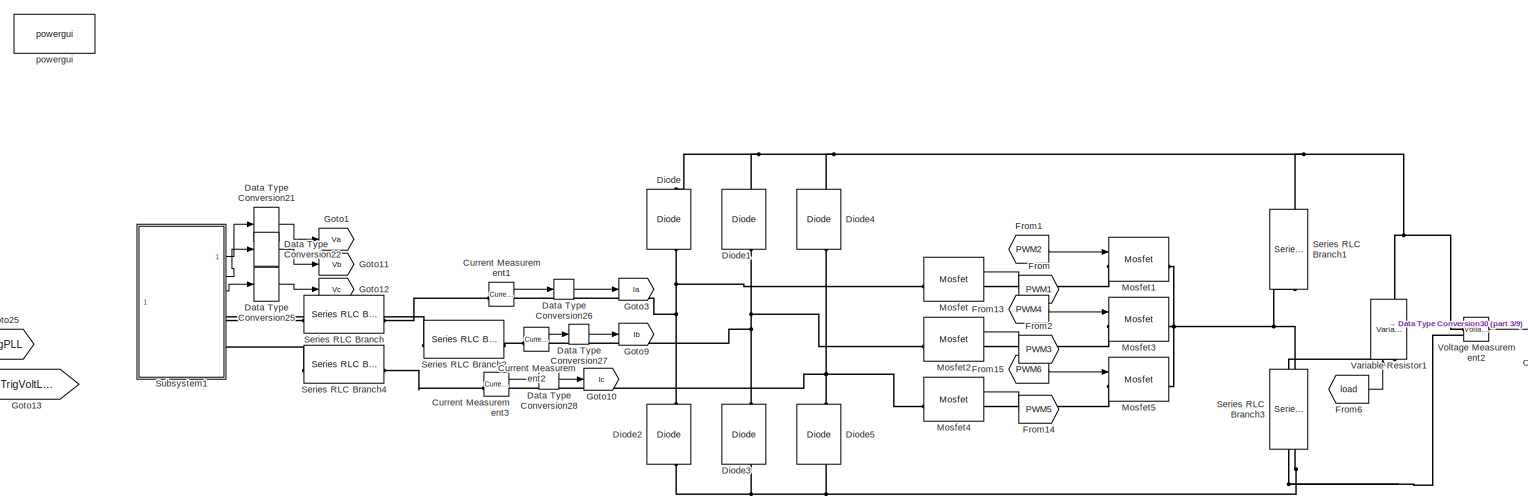
[diagram: root canvas - part 1/9, top center region]
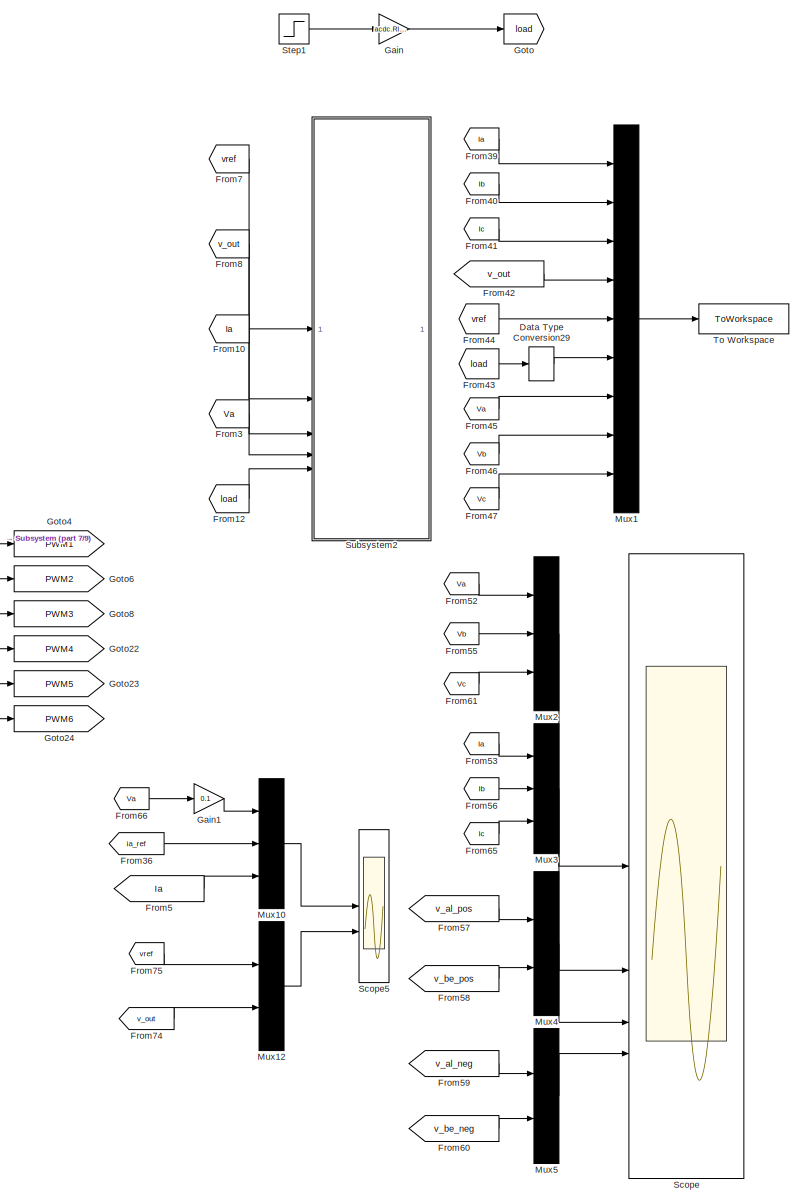
[diagram: root canvas - part 2/9, middle right region]
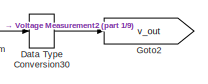
[diagram: root canvas - part 3/9, top center region]
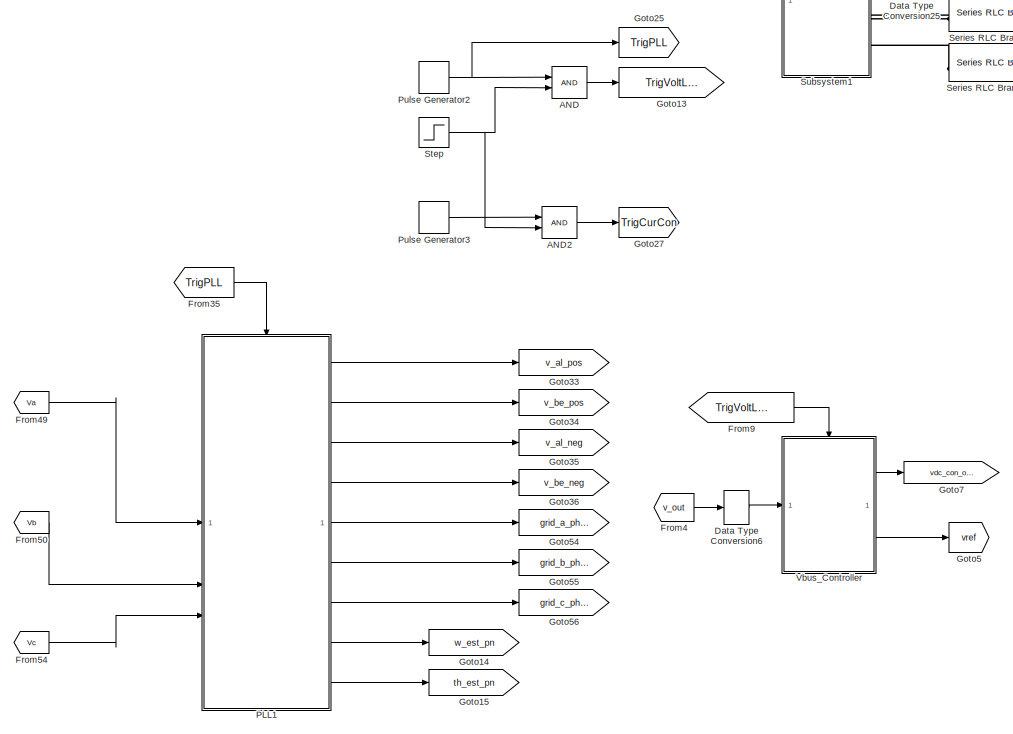
[diagram: root canvas - part 4/9, middle left region]
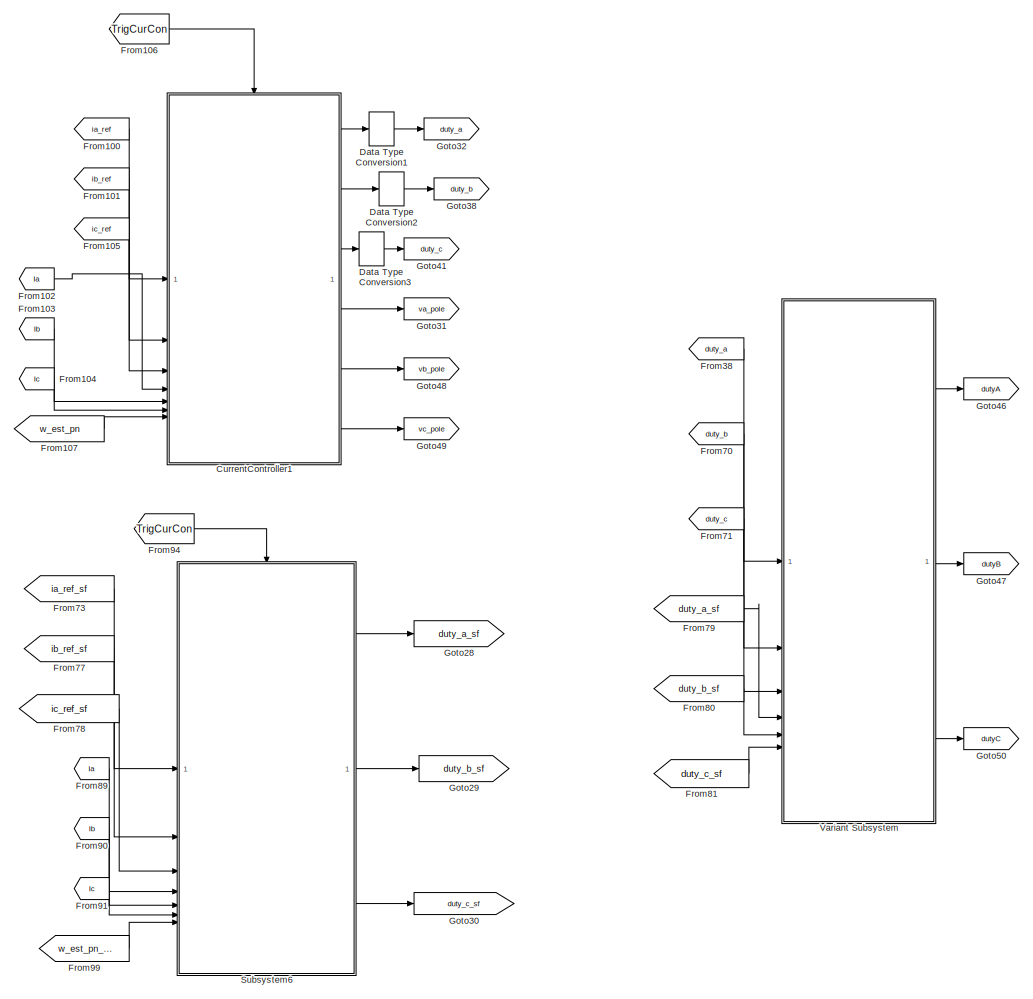
[diagram: root canvas - part 5/9, central region]
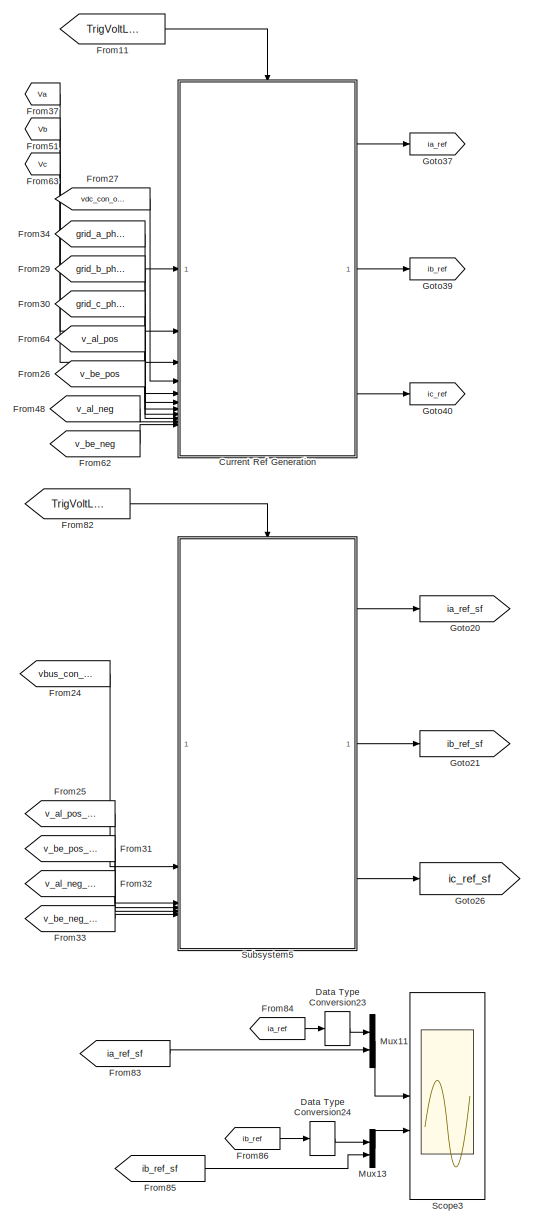
[diagram: root canvas - part 6/9, central region]
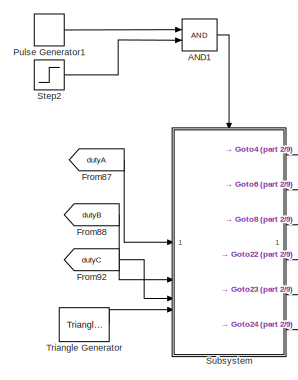
[diagram: root canvas - part 7/9, middle right region]
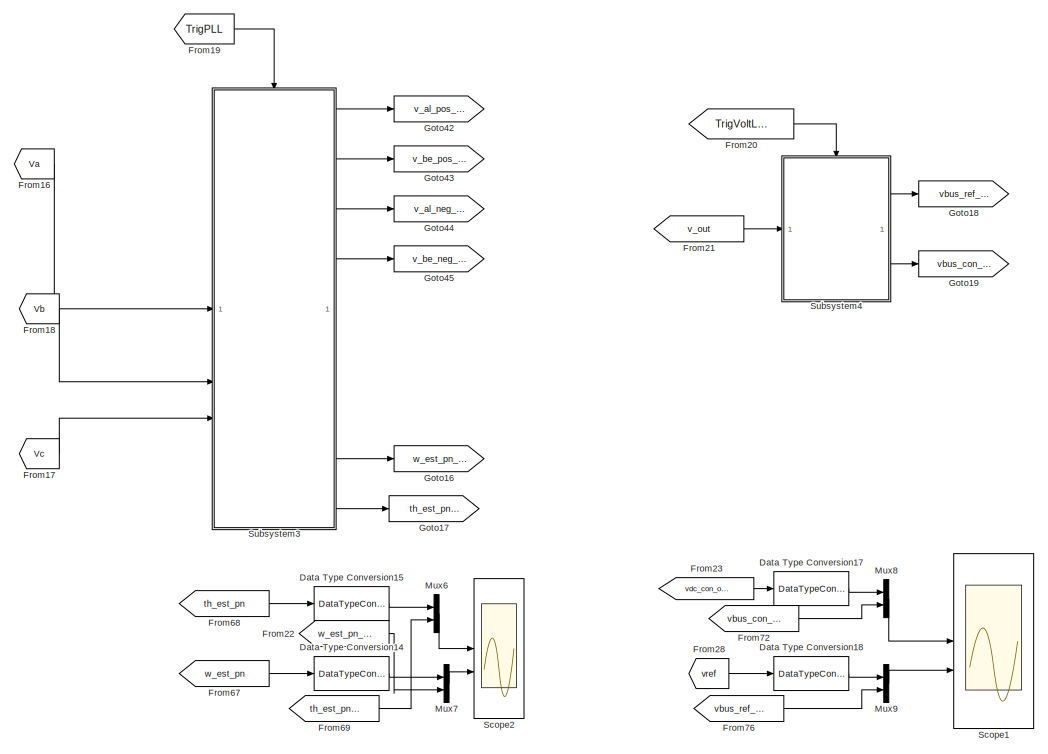
[diagram: root canvas - part 8/9, bottom left region]
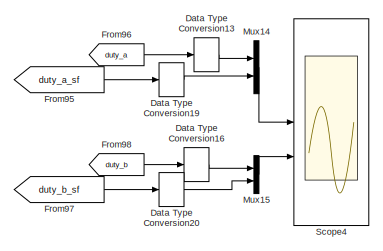
[diagram: root canvas - part 9/9, bottom center region]
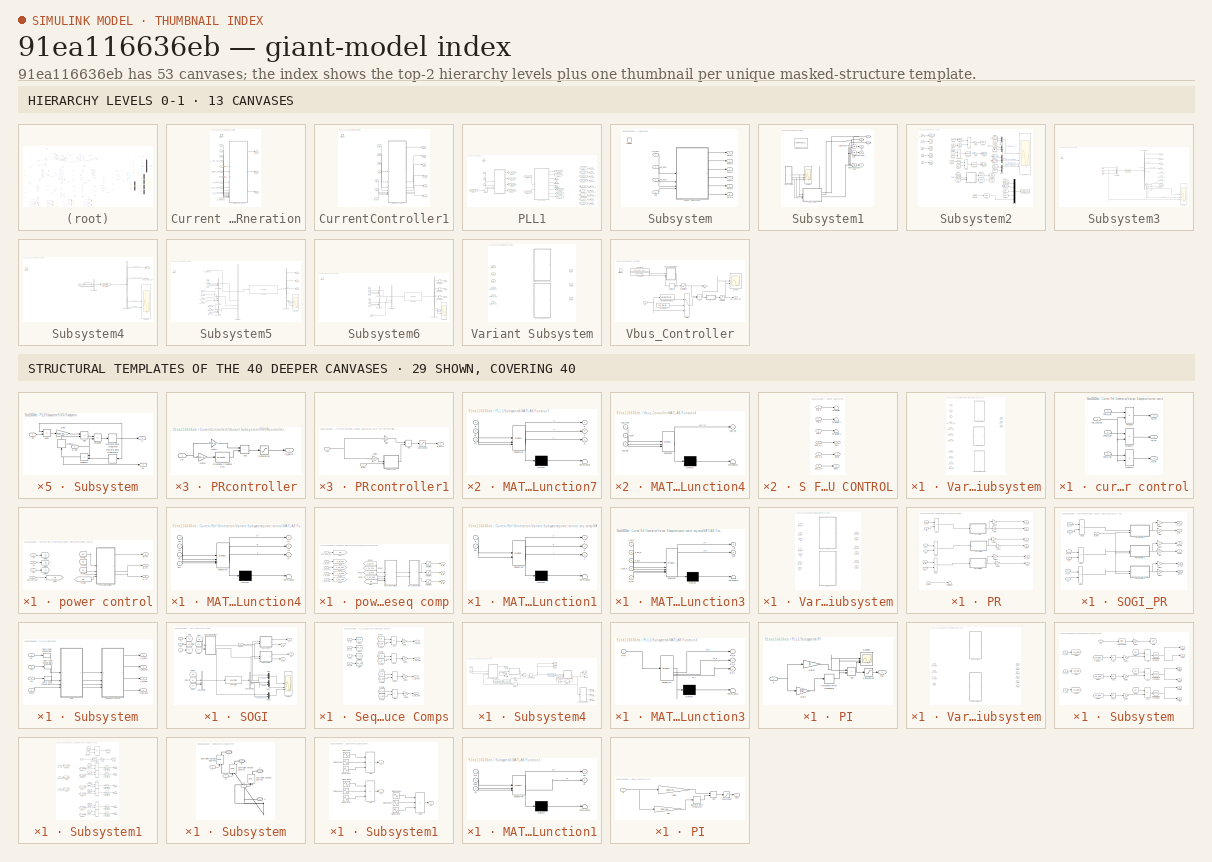
[diagram: thumbnail index - top-2 hierarchy levels (13 canvases) + 29 structural-template representatives of the remaining 40 canvases]
MODEL slx_91ea116636eb
KIND model
CONFIG AbsTol = auto
CONFIG EnableMultiTasking = off
CONFIG FixedStep = auto
CONFIG MaxStep = auto
CONFIG MinStep = auto
CONFIG RelTol = 1e-3
CONFIG SampleTimeConstraint = Unconstrained
CONFIG SolverName = ode23t
CONFIG StartTime = 0.0
CONFIG StopTime = 0.1
BLOCK [Logic] AND
  AllPortsSameDT = off
  IconShape = distinctive
  OutDataTypeStr = boolean
BLOCK [Logic] AND1
  AllPortsSameDT = off
  IconShape = distinctive
  OutDataTypeStr = boolean
BLOCK [Logic] AND2
  AllPortsSameDT = off
  IconShape = distinctive
  OutDataTypeStr = boolean
BLOCK [Reference] Current Measurement1  REF=spsCurrentMeasurementLib/Current Measurement
  LibrarySourceBlock = sps_lib/Sensors and Measurements/Current Measurement
  SourceBlock = spsCurrentMeasurementLib/Current Measurement
  SourceType = Current Measurement
  UserDataPersistent = on
BLOCK [Reference] Current Measurement2  REF=spsCurrentMeasurementLib/Current Measurement
  LibrarySourceBlock = sps_lib/Sensors and Measurements/Current Measurement
  SourceBlock = spsCurrentMeasurementLib/Current Measurement
  SourceType = Current Measurement
  UserDataPersistent = on
BLOCK [Reference] Current Measurement3  REF=spsCurrentMeasurementLib/Current Measurement
  LibrarySourceBlock = sps_lib/Sensors and Measurements/Current Measurement
  SourceBlock = spsCurrentMeasurementLib/Current Measurement
  SourceType = Current Measurement
  UserDataPersistent = on
BLOCK [SubSystem] Current Ref Generation
BLOCK [TriggerPort] Current Ref Generation/Trigger
  PortDimensions = 1
  StatesWhenEnabling = held
  VariantControl = (inherit)
BLOCK [SubSystem] Current Ref Generation/Variant Subsystem
  Variant = on
BLOCK [SubSystem] Current Ref Generation/Variant Subsystem/current control
  VariantControl = power_base_control == 0
BLOCK [Product] Current Ref Generation/Variant Subsystem/current control/Product
BLOCK [Product] Current Ref Generation/Variant Subsystem/current control/Product1
BLOCK [Product] Current Ref Generation/Variant Subsystem/current control/Product2
BLOCK [Inport] Current Ref Generation/Variant Subsystem/current control/grid_a_sin
BLOCK [Inport] Current Ref Generation/Variant Subsystem/current control/grid_b_sin
  Port = 2
BLOCK [Inport] Current Ref Generation/Variant Subsystem/current control/grid_c_sin
  Port = 3
BLOCK [Outport] Current Ref Generation/Variant Subsystem/current control/ia_ref
BLOCK [Outport] Current Ref Generation/Variant Subsystem/current control/ib_ref
  Port = 2
BLOCK [Outport] Current Ref Generation/Variant Subsystem/current control/ic_ref
  Port = 3
BLOCK [Inport] Current Ref Generation/Variant Subsystem/current control/vdc_con_out
  Port = 4
BLOCK [Inport] Current Ref Generation/Variant Subsystem/grid_a_sin
  Port = 5
BLOCK [Inport] Current Ref Generation/Variant Subsystem/grid_b_sin
  Port = 6
BLOCK [Inport] Current Ref Generation/Variant Subsystem/grid_c_sin
  Port = 7
BLOCK [Outport] Current Ref Generation/Variant Subsystem/ia_ref
BLOCK [Outport] Current Ref Generation/Variant Subsystem/ib_ref
  Port = 2
BLOCK [Outport] Current Ref Generation/Variant Subsystem/ic_ref
  Port = 3
BLOCK [SubSystem] Current Ref Generation/Variant Subsystem/power control
  VariantControl = power_base_control == 1
BLOCK [SubSystem] Current Ref Generation/Variant Subsystem/power control seq comp
  VariantControl = power_base_control == 2
BLOCK [From] Current Ref Generation/Variant Subsystem/power control seq comp/From
  GotoTag = Pin
BLOCK [From] Current Ref Generation/Variant Subsystem/power control seq comp/From14
  GotoTag = v_al_pos
BLOCK [From] Current Ref Generation/Variant Subsystem/power control seq comp/From15
  GotoTag = v_be_pos
BLOCK [From] Current Ref Generation/Variant Subsystem/power control seq comp/From16
  GotoTag = v_al_neg
BLOCK [From] Current Ref Generation/Variant Subsystem/power control seq comp/From17
  GotoTag = v_be_neg
BLOCK [Goto] Current Ref Generation/Variant Subsystem/power control seq comp/Goto
  GotoTag = v_al_pos
BLOCK [Goto] Current Ref Generation/Variant Subsystem/power control seq comp/Goto1
  GotoTag = Pin
BLOCK [Goto] Current Ref Generation/Variant Subsystem/power control seq comp/Goto2
  GotoTag = v_be_pos
BLOCK [Goto] Current Ref Generation/Variant Subsystem/power control seq comp/Goto3
  GotoTag = v_al_neg
BLOCK [Goto] Current Ref Generation/Variant Subsystem/power control seq comp/Goto4
  GotoTag = v_be_neg
BLOCK [SubSystem] Current Ref Generation/Variant Subsystem/power control seq comp/MATLAB Function1
  ErrorFcn = Stateflow.Translate.translate
  LibrarySourceBlock = simulink/User-Defined\nFunctions/MATLAB Function
  PermitHierarchicalResolution = ExplicitOnly
  SFBlockType = MATLAB Function
  TreatAsAtomicUnit = on
BLOCK [Demux] Current Ref Generation/Variant Subsystem/power control seq comp/MATLAB Function1/ Demux 
  Outputs = 1
BLOCK [S-Function] Current Ref Generation/Variant Subsystem/power control seq comp/MATLAB Function1/ SFunction 
  EnableBusSupport = on
  FunctionName = sf_sfun
  PortCounts = [2 4]
  SFcnIsStateOwnerBlock = off
  SFunctionDeploymentMode = off
  Tag = Stateflow S-Function 9
BLOCK [Terminator] Current Ref Generation/Variant Subsystem/power control seq comp/MATLAB Function1/ Terminator 
BLOCK [Outport] Current Ref Generation/Variant Subsystem/power control seq comp/MATLAB Function1/a
BLOCK [Inport] Current Ref Generation/Variant Subsystem/power control seq comp/MATLAB Function1/al
BLOCK [Outport] Current Ref Generation/Variant Subsystem/power control seq comp/MATLAB Function1/b
  Port = 2
BLOCK [Inport] Current Ref Generation/Variant Subsystem/power control seq comp/MATLAB Function1/be
  Port = 2
BLOCK [Outport] Current Ref Generation/Variant Subsystem/power control seq comp/MATLAB Function1/c
  Port = 3
BLOCK [SubSystem] Current Ref Generation/Variant Subsystem/power control seq comp/MATLAB Function3
  ErrorFcn = Stateflow.Translate.translate
  LibrarySourceBlock = simulink/User-Defined\nFunctions/MATLAB Function
  PermitHierarchicalResolution = ExplicitOnly
  SFBlockType = MATLAB Function
  TreatAsAtomicUnit = on
BLOCK [Demux] Current Ref Generation/Variant Subsystem/power control seq comp/MATLAB Function3/ Demux 
  Outputs = 1
BLOCK [S-Function] Current Ref Generation/Variant Subsystem/power control seq comp/MATLAB Function3/ SFunction 
  EnableBusSupport = on
  FunctionName = sf_sfun
  PortCounts = [5 3]
  SFcnIsStateOwnerBlock = off
  SFunctionDeploymentMode = off
  Tag = Stateflow S-Function 11
BLOCK [Terminator] Current Ref Generation/Variant Subsystem/power control seq comp/MATLAB Function3/ Terminator 
BLOCK [Outport] Current Ref Generation/Variant Subsystem/power control seq comp/MATLAB Function3/i_al
BLOCK [Outport] Current Ref Generation/Variant Subsystem/power control seq comp/MATLAB Function3/i_be
  Port = 2
BLOCK [Inport] Current Ref Generation/Variant Subsystem/power control seq comp/MATLAB Function3/p_ref
  Port = 5
BLOCK [Inport] Current Ref Generation/Variant Subsystem/power control seq comp/MATLAB Function3/v_al_n
  Port = 3
BLOCK [Inport] Current Ref Generation/Variant Subsystem/power control seq comp/MATLAB Function3/v_al_p
BLOCK [Inport] Current Ref Generation/Variant Subsystem/power control seq comp/MATLAB Function3/v_be_n
  Port = 4
BLOCK [Inport] Current Ref Generation/Variant Subsystem/power control seq comp/MATLAB Function3/v_be_p
  Port = 2
BLOCK [Saturate] Current Ref Generation/Variant Subsystem/power control seq comp/Saturation
  LowerLimit = -acdc.Igrid_ph_pk*1.5
  OutDataTypeStr = single
  UpperLimit = acdc.Igrid_ph_pk*1.5
BLOCK [Saturate] Current Ref Generation/Variant Subsystem/power control seq comp/Saturation1
  LowerLimit = -acdc.Igrid_ph_pk*1.5
  OutDataTypeStr = single
  UpperLimit = acdc.Igrid_ph_pk*1.5
BLOCK [Saturate] Current Ref Generation/Variant Subsystem/power control seq comp/Saturation2
  LowerLimit = -acdc.Igrid_ph_pk*1.5
  OutDataTypeStr = single
  UpperLimit = acdc.Igrid_ph_pk*1.5
BLOCK [Outport] Current Ref Generation/Variant Subsystem/power control seq comp/ia_ref
BLOCK [Outport] Current Ref Generation/Variant Subsystem/power control seq comp/ib_ref
  Port = 2
BLOCK [Outport] Current Ref Generation/Variant Subsystem/power control seq comp/ic_ref
  Port = 3
BLOCK [Inport] Current Ref Generation/Variant Subsystem/power control seq comp/v_al_neg
  Port = 4
BLOCK [Inport] Current Ref Generation/Variant Subsystem/power control seq comp/v_al_pos
  Port = 2
BLOCK [Inport] Current Ref Generation/Variant Subsystem/power control seq comp/v_be_neg
  Port = 5
BLOCK [Inport] Current Ref Generation/Variant Subsystem/power control seq comp/v_be_pos
  Port = 3
BLOCK [Inport] Current Ref Generation/Variant Subsystem/power control seq comp/vdc_con_out
BLOCK [From] Current Ref Generation/Variant Subsystem/power control/From3
  GotoTag = va
BLOCK [From] Current Ref Generation/Variant Subsystem/power control/From4
  GotoTag = vb
BLOCK [From] Current Ref Generation/Variant Subsystem/power control/From5
  GotoTag = vc
BLOCK [From] Current Ref Generation/Variant Subsystem/power control/From6
  GotoTag = Pin
BLOCK [Goto] Current Ref Generation/Variant Subsystem/power control/Goto1
  GotoTag = Pin
BLOCK [Goto] Current Ref Generation/Variant Subsystem/power control/Goto2
  GotoTag = va
BLOCK [Goto] Current Ref Generation/Variant Subsystem/power control/Goto3
  GotoTag = vb
BLOCK [Goto] Current Ref Generation/Variant Subsystem/power control/Goto4
  GotoTag = vc
BLOCK [SubSystem] Current Ref Generation/Variant Subsystem/power control/MATLAB Function4
  ErrorFcn = Stateflow.Translate.translate
  LibrarySourceBlock = simulink/User-Defined\nFunctions/MATLAB Function
  PermitHierarchicalResolution = ExplicitOnly
  SFBlockType = MATLAB Function
  TreatAsAtomicUnit = on
BLOCK [Demux] Current Ref Generation/Variant Subsystem/power control/MATLAB Function4/ Demux 
  Outputs = 1
BLOCK [S-Function] Current Ref Generation/Variant Subsystem/power control/MATLAB Function4/ SFunction 
  EnableBusSupport = on
  FunctionName = sf_sfun
  PortCounts = [4 4]
  SFcnIsStateOwnerBlock = off
  SFunctionDeploymentMode = off
  Tag = Stateflow S-Function 7
BLOCK [Terminator] Current Ref Generation/Variant Subsystem/power control/MATLAB Function4/ Terminator 
BLOCK [Inport] Current Ref Generation/Variant Subsystem/power control/MATLAB Function4/Pin
  Port = 4
BLOCK [Outport] Current Ref Generation/Variant Subsystem/power control/MATLAB Function4/ia
BLOCK [Outport] Current Ref Generation/Variant Subsystem/power control/MATLAB Function4/ib
  Port = 2
BLOCK [Outport] Current Ref Generation/Variant Subsystem/power control/MATLAB Function4/ic
  Port = 3
BLOCK [Inport] Current Ref Generation/Variant Subsystem/power control/MATLAB Function4/va
BLOCK [Inport] Current Ref Generation/Variant Subsystem/power control/MATLAB Function4/vb
  Port = 2
BLOCK [Inport] Current Ref Generation/Variant Subsystem/power control/MATLAB Function4/vc
  Port = 3
BLOCK [Outport] Current Ref Generation/Variant Subsystem/power control/ia_ref
BLOCK [Outport] Current Ref Generation/Variant Subsystem/power control/ib_ref
  Port = 2
BLOCK [Outport] Current Ref Generation/Variant Subsystem/power control/ic_ref
  Port = 3
BLOCK [Inport] Current Ref Generation/Variant Subsystem/power control/va
BLOCK [Inport] Current Ref Generation/Variant Subsystem/power control/vb
  Port = 2
BLOCK [Inport] Current Ref Generation/Variant Subsystem/power control/vc
  Port = 3
BLOCK [Inport] Current Ref Generation/Variant Subsystem/power control/vdc_con_out
  Port = 4
BLOCK [Inport] Current Ref Generation/Variant Subsystem/v_al_neg
  Port = 10
BLOCK [Inport] Current Ref Generation/Variant Subsystem/v_al_pos
  Port = 8
BLOCK [Inport] Current Ref Generation/Variant Subsystem/v_be_neg
  Port = 11
BLOCK [Inport] Current Ref Generation/Variant Subsystem/v_be_pos
  Port = 9
BLOCK [Inport] Current Ref Generation/Variant Subsystem/va
BLOCK [Inport] Current Ref Generation/Variant Subsystem/vb
  Port = 2
BLOCK [Inport] Current Ref Generation/Variant Subsystem/vc
  Port = 3
BLOCK [Inport] Current Ref Generation/Variant Subsystem/vdc_con_out
  Port = 4
BLOCK [Inport] Current Ref Generation/grid_a_sin
  Port = 5
BLOCK [Inport] Current Ref Generation/grid_b_sin
  Port = 6
BLOCK [Inport] Current Ref Generation/grid_c_sin
  Port = 7
BLOCK [Outport] Current Ref Generation/ia_ref
  OutDataTypeStr = single
BLOCK [Outport] Current Ref Generation/ib_ref
  OutDataTypeStr = single
  Port = 2
BLOCK [Outport] Current Ref Generation/ic_ref
  OutDataTypeStr = single
  Port = 3
BLOCK [Inport] Current Ref Generation/v_al_neg
  Port = 10
BLOCK [Inport] Current Ref Generation/v_al_pos
  Port = 8
BLOCK [Inport] Current Ref Generation/v_be_pos
  Port = 9
BLOCK [Inport] Current Ref Generation/v_ne_neg
  Port = 11
BLOCK [Inport] Current Ref Generation/va
BLOCK [Inport] Current Ref Generation/vb
  Port = 2
BLOCK [Inport] Current Ref Generation/vc
  Port = 3
BLOCK [Inport] Current Ref Generation/vdc_con_out
  Port = 4
BLOCK [SubSystem] CurrentController1
BLOCK [TriggerPort] CurrentController1/Trigger
  PortDimensions = 1
  StatesWhenEnabling = held
  VariantControl = (inherit)
BLOCK [SubSystem] CurrentController1/Variant Subsystem
  Variant = on
BLOCK [SubSystem] CurrentController1/Variant Subsystem/PR
  VariantControl = sogi_pr == 0
BLOCK [Sum] CurrentController1/Variant Subsystem/PR/Add1
  IconShape = rectangular
  Inputs = +-
BLOCK [Sum] CurrentController1/Variant Subsystem/PR/Add2
  IconShape = rectangular
  Inputs = +-
BLOCK [Sum] CurrentController1/Variant Subsystem/PR/Add3
  IconShape = rectangular
  Inputs = +-
BLOCK [Gain] CurrentController1/Variant Subsystem/PR/Gain
  Gain = 2/acdc.Vout *0.98
BLOCK [Gain] CurrentController1/Variant Subsystem/PR/Gain1
  Gain = 2/acdc.Vout *0.98
BLOCK [Gain] CurrentController1/Variant Subsystem/PR/Gain2
  Gain = 2/acdc.Vout *0.98
BLOCK [Gain] CurrentController1/Variant Subsystem/PR/Gain3
  Gain = -1
BLOCK [Gain] CurrentController1/Variant Subsystem/PR/Gain4
  Gain = -1
BLOCK [Gain] CurrentController1/Variant Subsystem/PR/Gain5
  Gain = -1
BLOCK [SubSystem] CurrentController1/Variant Subsystem/PR/PRcontroller
BLOCK [Sum] CurrentController1/Variant Subsystem/PR/PRcontroller/Add
  IconShape = rectangular
BLOCK [DiscreteTransferFcn] CurrentController1/Variant Subsystem/PR/PRcontroller/Discrete Transfer Fcn
  Denominator = acdc.PR_den
  InputPortMap = u0
  Numerator = acdc.PR_num
BLOCK [Gain] CurrentController1/Variant Subsystem/PR/PRcontroller/Gain
  Gain = acdc.cur_con_kp
BLOCK [Gain] CurrentController1/Variant Subsystem/PR/PRcontroller/Gain1
  Gain = acdc.cur_con_ki
BLOCK [Inport] CurrentController1/Variant Subsystem/PR/PRcontroller/In1
BLOCK [Saturate] CurrentController1/Variant Subsystem/PR/PRcontroller/Saturation
  LowerLimit = -Cur_loop_upper_limit_acdc
  UpperLimit = Cur_loop_upper_limit_acdc
BLOCK [Outport] CurrentController1/Variant Subsystem/PR/PRcontroller/ia_duty1
BLOCK [SubSystem] CurrentController1/Variant Subsystem/PR/PRcontroller1
BLOCK [Sum] CurrentController1/Variant Subsystem/PR/PRcontroller1/Add
  IconShape = rectangular
BLOCK [DiscreteTransferFcn] CurrentController1/Variant Subsystem/PR/PRcontroller1/Discrete Transfer Fcn
  Denominator = acdc.PR_den
  InputPortMap = u0
  Numerator = acdc.PR_num
BLOCK [Gain] CurrentController1/Variant Subsystem/PR/PRcontroller1/Gain
  Gain = acdc.cur_con_kp
BLOCK [Gain] CurrentController1/Variant Subsystem/PR/PRcontroller1/Gain1
  Gain = acdc.cur_con_ki
BLOCK [Inport] CurrentController1/Variant Subsystem/PR/PRcontroller1/In1
BLOCK [Saturate] CurrentController1/Variant Subsystem/PR/PRcontroller1/Saturation
  LowerLimit = -Cur_loop_upper_limit_acdc
  UpperLimit = Cur_loop_upper_limit_acdc
BLOCK [Outport] CurrentController1/Variant Subsystem/PR/PRcontroller1/va_pol1
BLOCK [SubSystem] CurrentController1/Variant Subsystem/PR/PRcontroller2
BLOCK [Sum] CurrentController1/Variant Subsystem/PR/PRcontroller2/Add
  IconShape = rectangular
BLOCK [DiscreteTransferFcn] CurrentController1/Variant Subsystem/PR/PRcontroller2/Discrete Transfer Fcn
  Denominator = acdc.PR_den
  InputPortMap = u0
  Numerator = acdc.PR_num
BLOCK [Gain] CurrentController1/Variant Subsystem/PR/PRcontroller2/Gain
  Gain = acdc.cur_con_kp
BLOCK [Gain] CurrentController1/Variant Subsystem/PR/PRcontroller2/Gain1
  Gain = acdc.cur_con_ki
BLOCK [Inport] CurrentController1/Variant Subsystem/PR/PRcontroller2/In1
BLOCK [Saturate] CurrentController1/Variant Subsystem/PR/PRcontroller2/Saturation
  LowerLimit = -Cur_loop_upper_limit_acdc
  UpperLimit = Cur_loop_upper_limit_acdc
BLOCK [Outport] CurrentController1/Variant Subsystem/PR/PRcontroller2/vb_pol1
BLOCK [Terminator] CurrentController1/Variant Subsystem/PR/Terminator
BLOCK [Outport] CurrentController1/Variant Subsystem/PR/dutyA
BLOCK [Outport] CurrentController1/Variant Subsystem/PR/dutyB
  Port = 2
BLOCK [Outport] CurrentController1/Variant Subsystem/PR/dutyC
  Port = 3
BLOCK [Inport] CurrentController1/Variant Subsystem/PR/ia
  Port = 2
BLOCK [Inport] CurrentController1/Variant Subsystem/PR/ia_ref
BLOCK [Inport] CurrentController1/Variant Subsystem/PR/ib
  Port = 5
BLOCK [Inport] CurrentController1/Variant Subsystem/PR/ib_ref
  Port = 3
BLOCK [Inport] CurrentController1/Variant Subsystem/PR/ic
  Port = 6
BLOCK [Inport] CurrentController1/Variant Subsystem/PR/ic_ref
  Port = 4
BLOCK [Outport] CurrentController1/Variant Subsystem/PR/va_pol
  Port = 4
BLOCK [Outport] CurrentController1/Variant Subsystem/PR/vb_pol
  Port = 5
BLOCK [Outport] CurrentController1/Variant Subsystem/PR/vc_pol
  Port = 6
BLOCK [Inport] CurrentController1/Variant Subsystem/PR/w_est
  Port = 7
BLOCK [SubSystem] CurrentController1/Variant Subsystem/SOGI_PR
  VariantControl = sogi_pr == 1
BLOCK [Sum] CurrentController1/Variant Subsystem/SOGI_PR/Add1
  IconShape = rectangular
  Inputs = +-
BLOCK [Sum] CurrentController1/Variant Subsystem/SOGI_PR/Add2
  IconShape = rectangular
  Inputs = +-
BLOCK [Sum] CurrentController1/Variant Subsystem/SOGI_PR/Add3
  IconShape = rectangular
  Inputs = +-
BLOCK [Gain] CurrentController1/Variant Subsystem/SOGI_PR/Gain
  Gain = 2/acdc.Vout *0.98
BLOCK [Gain] CurrentController1/Variant Subsystem/SOGI_PR/Gain1
  Gain = 2/acdc.Vout *0.98
BLOCK [Gain] CurrentController1/Variant Subsystem/SOGI_PR/Gain2
  Gain = -1
BLOCK [Gain] CurrentController1/Variant Subsystem/SOGI_PR/Gain3
  Gain = 2/acdc.Vout *0.98
BLOCK [Gain] CurrentController1/Variant Subsystem/SOGI_PR/Gain4
  Gain = -1
BLOCK [Gain] CurrentController1/Variant Subsystem/SOGI_PR/Gain5
  Gain = -1
BLOCK [SubSystem] CurrentController1/Variant Subsystem/SOGI_PR/PRcontroller1
BLOCK [Sum] CurrentController1/Variant Subsystem/SOGI_PR/PRcontroller1/Add
  IconShape = rectangular
BLOCK [Gain] CurrentController1/Variant Subsystem/SOGI_PR/PRcontroller1/Gain
  Gain = acdc.cur_con_kp
BLOCK [Gain] CurrentController1/Variant Subsystem/SOGI_PR/PRcontroller1/Gain1
  Gain = acdc.cur_con_ki
BLOCK [Inport] CurrentController1/Variant Subsystem/SOGI_PR/PRcontroller1/In1
BLOCK [Saturate] CurrentController1/Variant Subsystem/SOGI_PR/PRcontroller1/Saturation
  LowerLimit = -Cur_loop_upper_limit_acdc
  UpperLimit = Cur_loop_upper_limit_acdc
BLOCK [SubSystem] CurrentController1/Variant Subsystem/SOGI_PR/PRcontroller1/Subsystem
BLOCK [Sum] CurrentController1/Variant Subsystem/SOGI_PR/PRcontroller1/Subsystem/Add
  IconShape = rectangular
  Inputs = +-
BLOCK [Sum] CurrentController1/Variant Subsystem/SOGI_PR/PRcontroller1/Subsystem/Add1
  IconShape = rectangular
  Inputs = -+
BLOCK [Delay] CurrentController1/Variant Subsystem/SOGI_PR/PRcontroller1/Subsystem/Delay2
  DelayLength = 1
  InputPortMap = u0
  NameLocation = right
BLOCK [DiscreteIntegrator] CurrentController1/Variant Subsystem/SOGI_PR/PRcontroller1/Subsystem/Discrete-Time Integrator
  ICPrevOutput = DiscIntNeverNeededParam
  ICPrevScaledInput = DiscIntNeverNeededParam
  SampleTime = -1
BLOCK [DiscreteIntegrator] CurrentController1/Variant Subsystem/SOGI_PR/PRcontroller1/Subsystem/Discrete-Time Integrator1
  ICPrevOutput = DiscIntNeverNeededParam
  ICPrevScaledInput = DiscIntNeverNeededParam
  NameLocation = top
  SampleTime = -1
BLOCK [Gain] CurrentController1/Variant Subsystem/SOGI_PR/PRcontroller1/Subsystem/Gain
  Gain = acdc.cur_con_sogi_k
BLOCK [Product] CurrentController1/Variant Subsystem/SOGI_PR/PRcontroller1/Subsystem/Product
BLOCK [Product] CurrentController1/Variant Subsystem/SOGI_PR/PRcontroller1/Subsystem/Product1
  NameLocation = top
BLOCK [Inport] CurrentController1/Variant Subsystem/SOGI_PR/PRcontroller1/Subsystem/Val
BLOCK [Outport] CurrentController1/Variant Subsystem/SOGI_PR/PRcontroller1/Subsystem/qv
  Port = 2
BLOCK [Outport] CurrentController1/Variant Subsystem/SOGI_PR/PRcontroller1/Subsystem/v
BLOCK [Inport] CurrentController1/Variant Subsystem/SOGI_PR/PRcontroller1/Subsystem/w_est
  Port = 2
BLOCK [Outport] CurrentController1/Variant Subsystem/SOGI_PR/PRcontroller1/ia_duty1
BLOCK [Inport] CurrentController1/Variant Subsystem/SOGI_PR/PRcontroller1/w_est
  Port = 2
BLOCK [SubSystem] CurrentController1/Variant Subsystem/SOGI_PR/PRcontroller2
BLOCK [Sum] CurrentController1/Variant Subsystem/SOGI_PR/PRcontroller2/Add
  IconShape = rectangular
BLOCK [Gain] CurrentController1/Variant Subsystem/SOGI_PR/PRcontroller2/Gain
  Gain = acdc.cur_con_kp
BLOCK [Gain] CurrentController1/Variant Subsystem/SOGI_PR/PRcontroller2/Gain1
  Gain = acdc.cur_con_ki
BLOCK [Inport] CurrentController1/Variant Subsystem/SOGI_PR/PRcontroller2/In1
BLOCK [Saturate] CurrentController1/Variant Subsystem/SOGI_PR/PRcontroller2/Saturation
  LowerLimit = -Cur_loop_upper_limit_acdc
  UpperLimit = Cur_loop_upper_limit_acdc
BLOCK [SubSystem] CurrentController1/Variant Subsystem/SOGI_PR/PRcontroller2/Subsystem
BLOCK [Sum] CurrentController1/Variant Subsystem/SOGI_PR/PRcontroller2/Subsystem/Add
  IconShape = rectangular
  Inputs = +-
BLOCK [Sum] CurrentController1/Variant Subsystem/SOGI_PR/PRcontroller2/Subsystem/Add1
  IconShape = rectangular
  Inputs = -+
BLOCK [Delay] CurrentController1/Variant Subsystem/SOGI_PR/PRcontroller2/Subsystem/Delay2
  DelayLength = 1
  InputPortMap = u0
  NameLocation = right
BLOCK [DiscreteIntegrator] CurrentController1/Variant Subsystem/SOGI_PR/PRcontroller2/Subsystem/Discrete-Time Integrator
  ICPrevOutput = DiscIntNeverNeededParam
  ICPrevScaledInput = DiscIntNeverNeededParam
  SampleTime = -1
BLOCK [DiscreteIntegrator] CurrentController1/Variant Subsystem/SOGI_PR/PRcontroller2/Subsystem/Discrete-Time Integrator1
  ICPrevOutput = DiscIntNeverNeededParam
  ICPrevScaledInput = DiscIntNeverNeededParam
  NameLocation = top
  SampleTime = -1
BLOCK [Gain] CurrentController1/Variant Subsystem/SOGI_PR/PRcontroller2/Subsystem/Gain
  Gain = acdc.cur_con_sogi_k
BLOCK [Product] CurrentController1/Variant Subsystem/SOGI_PR/PRcontroller2/Subsystem/Product
BLOCK [Product] CurrentController1/Variant Subsystem/SOGI_PR/PRcontroller2/Subsystem/Product1
  NameLocation = top
BLOCK [Inport] CurrentController1/Variant Subsystem/SOGI_PR/PRcontroller2/Subsystem/Val
BLOCK [Outport] CurrentController1/Variant Subsystem/SOGI_PR/PRcontroller2/Subsystem/qv
  Port = 2
BLOCK [Outport] CurrentController1/Variant Subsystem/SOGI_PR/PRcontroller2/Subsystem/v
BLOCK [Inport] CurrentController1/Variant Subsystem/SOGI_PR/PRcontroller2/Subsystem/w_est
  Port = 2
BLOCK [Outport] CurrentController1/Variant Subsystem/SOGI_PR/PRcontroller2/ia_duty1
BLOCK [Inport] CurrentController1/Variant Subsystem/SOGI_PR/PRcontroller2/w_est
  Port = 2
BLOCK [SubSystem] CurrentController1/Variant Subsystem/SOGI_PR/PRcontroller3
BLOCK [Sum] CurrentController1/Variant Subsystem/SOGI_PR/PRcontroller3/Add
  IconShape = rectangular
BLOCK [Gain] CurrentController1/Variant Subsystem/SOGI_PR/PRcontroller3/Gain
  Gain = acdc.cur_con_kp
BLOCK [Gain] CurrentController1/Variant Subsystem/SOGI_PR/PRcontroller3/Gain1
  Gain = acdc.cur_con_ki
BLOCK [Inport] CurrentController1/Variant Subsystem/SOGI_PR/PRcontroller3/In1
BLOCK [Saturate] CurrentController1/Variant Subsystem/SOGI_PR/PRcontroller3/Saturation
  LowerLimit = -Cur_loop_upper_limit_acdc
  UpperLimit = Cur_loop_upper_limit_acdc
BLOCK [SubSystem] CurrentController1/Variant Subsystem/SOGI_PR/PRcontroller3/Subsystem
BLOCK [Sum] CurrentController1/Variant Subsystem/SOGI_PR/PRcontroller3/Subsystem/Add
  IconShape = rectangular
  Inputs = +-
BLOCK [Sum] CurrentController1/Variant Subsystem/SOGI_PR/PRcontroller3/Subsystem/Add1
  IconShape = rectangular
  Inputs = -+
BLOCK [Delay] CurrentController1/Variant Subsystem/SOGI_PR/PRcontroller3/Subsystem/Delay2
  DelayLength = 1
  InputPortMap = u0
  NameLocation = right
BLOCK [DiscreteIntegrator] CurrentController1/Variant Subsystem/SOGI_PR/PRcontroller3/Subsystem/Discrete-Time Integrator
  ICPrevOutput = DiscIntNeverNeededParam
  ICPrevScaledInput = DiscIntNeverNeededParam
  SampleTime = -1
BLOCK [DiscreteIntegrator] CurrentController1/Variant Subsystem/SOGI_PR/PRcontroller3/Subsystem/Discrete-Time Integrator1
  ICPrevOutput = DiscIntNeverNeededParam
  ICPrevScaledInput = DiscIntNeverNeededParam
  NameLocation = top
  SampleTime = -1
BLOCK [Gain] CurrentController1/Variant Subsystem/SOGI_PR/PRcontroller3/Subsystem/Gain
  Gain = acdc.cur_con_sogi_k
BLOCK [Product] CurrentController1/Variant Subsystem/SOGI_PR/PRcontroller3/Subsystem/Product
BLOCK [Product] CurrentController1/Variant Subsystem/SOGI_PR/PRcontroller3/Subsystem/Product1
  NameLocation = top
BLOCK [Inport] CurrentController1/Variant Subsystem/SOGI_PR/PRcontroller3/Subsystem/Val
BLOCK [Outport] CurrentController1/Variant Subsystem/SOGI_PR/PRcontroller3/Subsystem/qv
  Port = 2
BLOCK [Outport] CurrentController1/Variant Subsystem/SOGI_PR/PRcontroller3/Subsystem/v
BLOCK [Inport] CurrentController1/Variant Subsystem/SOGI_PR/PRcontroller3/Subsystem/w_est
  Port = 2
BLOCK [Outport] CurrentController1/Variant Subsystem/SOGI_PR/PRcontroller3/ia_duty1
BLOCK [Inport] CurrentController1/Variant Subsystem/SOGI_PR/PRcontroller3/w_est
  Port = 2
BLOCK [Outport] CurrentController1/Variant Subsystem/SOGI_PR/dutyA
BLOCK [Outport] CurrentController1/Variant Subsystem/SOGI_PR/dutyB
  Port = 2
BLOCK [Outport] CurrentController1/Variant Subsystem/SOGI_PR/dutyC
  Port = 3
BLOCK [Inport] CurrentController1/Variant Subsystem/SOGI_PR/ia
  Port = 2
BLOCK [Inport] CurrentController1/Variant Subsystem/SOGI_PR/ia_ref
BLOCK [Inport] CurrentController1/Variant Subsystem/SOGI_PR/ib
  Port = 5
BLOCK [Inport] CurrentController1/Variant Subsystem/SOGI_PR/ib_ref
  Port = 3
BLOCK [Inport] CurrentController1/Variant Subsystem/SOGI_PR/ic
  Port = 6
BLOCK [Inport] CurrentController1/Variant Subsystem/SOGI_PR/ic_ref
  Port = 4
BLOCK [Outport] CurrentController1/Variant Subsystem/SOGI_PR/va_pol
  Port = 4
BLOCK [Outport] CurrentController1/Variant Subsystem/SOGI_PR/vb_pol
  Port = 5
BLOCK [Outport] CurrentController1/Variant Subsystem/SOGI_PR/vc_pol
  Port = 6
BLOCK [Inport] CurrentController1/Variant Subsystem/SOGI_PR/w_est
  Port = 7
BLOCK [Outport] CurrentController1/Variant Subsystem/dutyA
BLOCK [Outport] CurrentController1/Variant Subsystem/dutyB
  Port = 2
BLOCK [Outport] CurrentController1/Variant Subsystem/dutyC
  Port = 3
BLOCK [Inport] CurrentController1/Variant Subsystem/ia
  Port = 4
BLOCK [Inport] CurrentController1/Variant Subsystem/ia_ref
BLOCK [Inport] CurrentController1/Variant Subsystem/ib
  Port = 5
BLOCK [Inport] CurrentController1/Variant Subsystem/ib_ref
  Port = 2
BLOCK [Inport] CurrentController1/Variant Subsystem/ic
  Port = 6
BLOCK [Inport] CurrentController1/Variant Subsystem/ic_ref
  Port = 3
BLOCK [Outport] CurrentController1/Variant Subsystem/va_pol
  Port = 4
BLOCK [Outport] CurrentController1/Variant Subsystem/vb_pol
  Port = 5
BLOCK [Outport] CurrentController1/Variant Subsystem/vc_pol
  Port = 6
BLOCK [Inport] CurrentController1/Variant Subsystem/w_est
  Port = 7
BLOCK [Outport] CurrentController1/dutyA
BLOCK [Outport] CurrentController1/dutyB
  Port = 2
BLOCK [Outport] CurrentController1/dutyC
  Port = 3
BLOCK [Inport] CurrentController1/ia
  Port = 4
BLOCK [Inport] CurrentController1/ia_ref
BLOCK [Inport] CurrentController1/ib
  Port = 5
BLOCK [Inport] CurrentController1/ib_ref
  Port = 2
BLOCK [Inport] CurrentController1/ic
  Port = 6
BLOCK [Inport] CurrentController1/ic_ref
  Port = 3
BLOCK [Outport] CurrentController1/va_pol
  Port = 4
BLOCK [Outport] CurrentController1/vb_pol
  Port = 5
BLOCK [Outport] CurrentController1/vc_pol
  Port = 6
BLOCK [Inport] CurrentController1/w_est
  Port = 7
BLOCK [DataTypeConversion] Data Type Conversion1
  OutDataTypeStr = single
  RndMeth = Floor
  SaturateOnIntegerOverflow = off
BLOCK [DataTypeConversion] Data Type Conversion13
  OutDataTypeStr = single
  RndMeth = Floor
  SaturateOnIntegerOverflow = off
BLOCK [DataTypeConversion] Data Type Conversion14
  OutDataTypeStr = single
  RndMeth = Floor
  SaturateOnIntegerOverflow = off
BLOCK [DataTypeConversion] Data Type Conversion15
  OutDataTypeStr = single
  RndMeth = Floor
  SaturateOnIntegerOverflow = off
BLOCK [DataTypeConversion] Data Type Conversion16
  OutDataTypeStr = single
  RndMeth = Floor
  SaturateOnIntegerOverflow = off
BLOCK [DataTypeConversion] Data Type Conversion17
  OutDataTypeStr = single
  RndMeth = Floor
  SaturateOnIntegerOverflow = off
BLOCK [DataTypeConversion] Data Type Conversion18
  OutDataTypeStr = single
  RndMeth = Floor
  SaturateOnIntegerOverflow = off
BLOCK [DataTypeConversion] Data Type Conversion19
  OutDataTypeStr = single
  RndMeth = Floor
  SaturateOnIntegerOverflow = off
BLOCK [DataTypeConversion] Data Type Conversion2
  OutDataTypeStr = single
  RndMeth = Floor
  SaturateOnIntegerOverflow = off
BLOCK [DataTypeConversion] Data Type Conversion20
  OutDataTypeStr = single
  RndMeth = Floor
  SaturateOnIntegerOverflow = off
BLOCK [DataTypeConversion] Data Type Conversion21
  OutDataTypeStr = single
  RndMeth = Floor
  SaturateOnIntegerOverflow = off
BLOCK [DataTypeConversion] Data Type Conversion22
  OutDataTypeStr = single
  RndMeth = Floor
  SaturateOnIntegerOverflow = off
BLOCK [DataTypeConversion] Data Type Conversion23
  OutDataTypeStr = single
  RndMeth = Floor
  SaturateOnIntegerOverflow = off
BLOCK [DataTypeConversion] Data Type Conversion24
  OutDataTypeStr = single
  RndMeth = Floor
  SaturateOnIntegerOverflow = off
BLOCK [DataTypeConversion] Data Type Conversion25
  OutDataTypeStr = single
  RndMeth = Floor
  SaturateOnIntegerOverflow = off
BLOCK [DataTypeConversion] Data Type Conversion26
  OutDataTypeStr = single
  RndMeth = Floor
  SaturateOnIntegerOverflow = off
BLOCK [DataTypeConversion] Data Type Conversion27
  OutDataTypeStr = single
  RndMeth = Floor
  SaturateOnIntegerOverflow = off
BLOCK [DataTypeConversion] Data Type Conversion28
  OutDataTypeStr = single
  RndMeth = Floor
  SaturateOnIntegerOverflow = off
BLOCK [DataTypeConversion] Data Type Conversion29
  OutDataTypeStr = single
  RndMeth = Floor
  SaturateOnIntegerOverflow = off
BLOCK [DataTypeConversion] Data Type Conversion3
  OutDataTypeStr = single
  RndMeth = Floor
  SaturateOnIntegerOverflow = off
BLOCK [DataTypeConversion] Data Type Conversion30
  OutDataTypeStr = single
  RndMeth = Floor
  SaturateOnIntegerOverflow = off
BLOCK [DataTypeConversion] Data Type Conversion6
  OutDataTypeStr = single
  RndMeth = Floor
  SaturateOnIntegerOverflow = off
BLOCK [Reference] Diode  REF=spsDiodeLib/Diode
  LibrarySourceBlock = sps_lib/Power Electronics/Diode
  NameLocation = right
  SourceBlock = spsDiodeLib/Diode
  SourceType = Diode
BLOCK [Reference] Diode1  REF=spsDiodeLib/Diode
  LibrarySourceBlock = sps_lib/Power Electronics/Diode
  NameLocation = right
  SourceBlock = spsDiodeLib/Diode
  SourceType = Diode
BLOCK [Reference] Diode2  REF=spsDiodeLib/Diode
  LibrarySourceBlock = sps_lib/Power Electronics/Diode
  NameLocation = right
  SourceBlock = spsDiodeLib/Diode
  SourceType = Diode
BLOCK [Reference] Diode3  REF=spsDiodeLib/Diode
  LibrarySourceBlock = sps_lib/Power Electronics/Diode
  NameLocation = right
  SourceBlock = spsDiodeLib/Diode
  SourceType = Diode
BLOCK [Reference] Diode4  REF=spsDiodeLib/Diode
  LibrarySourceBlock = sps_lib/Power Electronics/Diode
  NameLocation = right
  SourceBlock = spsDiodeLib/Diode
  SourceType = Diode
BLOCK [Reference] Diode5  REF=spsDiodeLib/Diode
  LibrarySourceBlock = sps_lib/Power Electronics/Diode
  NameLocation = right
  SourceBlock = spsDiodeLib/Diode
  SourceType = Diode
BLOCK [From] From
  GotoTag = PWM1
  NameLocation = top
BLOCK [From] From1
  GotoTag = PWM2
BLOCK [From] From10
  GotoTag = Ia
BLOCK [From] From100
  GotoTag = ia_ref
BLOCK [From] From101
  GotoTag = ib_ref
BLOCK [From] From102
  GotoTag = Ia
BLOCK [From] From103
  GotoTag = Ib
BLOCK [From] From104
  GotoTag = Ic
BLOCK [From] From105
  GotoTag = ic_ref
BLOCK [From] From106
  GotoTag = TrigCurCon
BLOCK [From] From107
  GotoTag = w_est_pn
BLOCK [From] From11
  GotoTag = TrigVoltLoop
BLOCK [From] From12
  GotoTag = load
BLOCK [From] From13
  GotoTag = PWM4
BLOCK [From] From14
  GotoTag = PWM5
  NameLocation = top
BLOCK [From] From15
  GotoTag = PWM6
BLOCK [From] From16
  GotoTag = Va
BLOCK [From] From17
  GotoTag = Vc
BLOCK [From] From18
  GotoTag = Vb
BLOCK [From] From19
  GotoTag = TrigPLL
BLOCK [From] From2
  GotoTag = PWM3
  NameLocation = top
BLOCK [From] From20
  GotoTag = TrigVoltLoop
BLOCK [From] From21
  GotoTag = v_out
BLOCK [From] From22
  GotoTag = w_est_pn_sf
BLOCK [From] From23
  GotoTag = vdc_con_out
BLOCK [From] From24
  GotoTag = vbus_con_out_sf
BLOCK [From] From25
  GotoTag = v_al_pos_sf
BLOCK [From] From26
  GotoTag = v_be_pos
BLOCK [From] From27
  GotoTag = vdc_con_out
BLOCK [From] From28
  GotoTag = vref
BLOCK [From] From29
  GotoTag = grid_b_ph_pn
BLOCK [From] From3
  GotoTag = Va
BLOCK [From] From30
  GotoTag = grid_c_ph_pn
BLOCK [From] From31
  GotoTag = v_be_pos_sf
BLOCK [From] From32
  GotoTag = v_al_neg_sf
BLOCK [From] From33
  GotoTag = v_be_neg_sf
BLOCK [From] From34
  GotoTag = grid_a_ph_pn
BLOCK [From] From35
  GotoTag = TrigPLL
BLOCK [From] From36
  GotoTag = ia_ref
BLOCK [From] From37
  GotoTag = Va
BLOCK [From] From38
  GotoTag = duty_a
BLOCK [From] From39
  GotoTag = Ia
BLOCK [From] From4
  GotoTag = v_out
BLOCK [From] From40
  GotoTag = Ib
BLOCK [From] From41
  GotoTag = Ic
BLOCK [From] From42
  GotoTag = v_out
BLOCK [From] From43
  GotoTag = load
BLOCK [From] From44
  GotoTag = vref
BLOCK [From] From45
  GotoTag = Va
BLOCK [From] From46
  GotoTag = Vb
BLOCK [From] From47
  GotoTag = Vc
BLOCK [From] From48
  GotoTag = v_al_neg
BLOCK [From] From49
  GotoTag = Va
BLOCK [From] From5
  GotoTag = Ia
BLOCK [From] From50
  GotoTag = Vb
BLOCK [From] From51
  GotoTag = Vb
BLOCK [From] From52
  GotoTag = Va
BLOCK [From] From53
  GotoTag = Ia
BLOCK [From] From54
  GotoTag = Vc
BLOCK [From] From55
  GotoTag = Vb
BLOCK [From] From56
  GotoTag = Ib
BLOCK [From] From57
  GotoTag = v_al_pos
BLOCK [From] From58
  GotoTag = v_be_pos
BLOCK [From] From59
  GotoTag = v_al_neg
BLOCK [From] From6
  GotoTag = load
BLOCK [From] From60
  GotoTag = v_be_neg
BLOCK [From] From61
  GotoTag = Vc
BLOCK [From] From62
  GotoTag = v_be_neg
BLOCK [From] From63
  GotoTag = Vc
BLOCK [From] From64
  GotoTag = v_al_pos
BLOCK [From] From65
  GotoTag = Ic
BLOCK [From] From66
  GotoTag = Va
BLOCK [From] From67
  GotoTag = w_est_pn
BLOCK [From] From68
  GotoTag = th_est_pn
BLOCK [From] From69
  GotoTag = th_est_pn_sf
BLOCK [From] From7
  GotoTag = vref
BLOCK [From] From70
  GotoTag = duty_b
BLOCK [From] From71
  GotoTag = duty_c
BLOCK [From] From72
  GotoTag = vbus_con_out_sf
BLOCK [From] From73
  GotoTag = ia_ref_sf
BLOCK [From] From74
  GotoTag = v_out
BLOCK [From] From75
  GotoTag = vref
BLOCK [From] From76
  GotoTag = vbus_ref_sf
BLOCK [From] From77
  GotoTag = ib_ref_sf
BLOCK [From] From78
  GotoTag = ic_ref_sf
BLOCK [From] From79
  GotoTag = duty_a_sf
BLOCK [From] From8
  GotoTag = v_out
BLOCK [From] From80
  GotoTag = duty_b_sf
BLOCK [From] From81
  GotoTag = duty_c_sf
BLOCK [From] From82
  GotoTag = TrigVoltLoop
BLOCK [From] From83
  GotoTag = ia_ref_sf
BLOCK [From] From84
  GotoTag = ia_ref
BLOCK [From] From85
  GotoTag = ib_ref_sf
BLOCK [From] From86
  GotoTag = ib_ref
BLOCK [From] From87
  GotoTag = dutyA
BLOCK [From] From88
  GotoTag = dutyB
BLOCK [From] From89
  GotoTag = Ia
BLOCK [From] From9
  GotoTag = TrigVoltLoop
BLOCK [From] From90
  GotoTag = Ib
BLOCK [From] From91
  GotoTag = Ic
BLOCK [From] From92
  GotoTag = dutyC
BLOCK [From] From94
  GotoTag = TrigCurCon
BLOCK [From] From95
  GotoTag = duty_a_sf
BLOCK [From] From96
  GotoTag = duty_a
BLOCK [From] From97
  GotoTag = duty_b_sf
BLOCK [From] From98
  GotoTag = duty_b
BLOCK [From] From99
  GotoTag = w_est_pn_sf
BLOCK [Gain] Gain
  Gain = acdc.Rload
BLOCK [Gain] Gain1
  Gain = 0.1
BLOCK [Goto] Goto
  GotoTag = load
BLOCK [Goto] Goto1
  GotoTag = Va
BLOCK [Goto] Goto10
  GotoTag = Ic
BLOCK [Goto] Goto11
  GotoTag = Vb
BLOCK [Goto] Goto12
  GotoTag = Vc
BLOCK [Goto] Goto13
  GotoTag = TrigVoltLoop
BLOCK [Goto] Goto14
  GotoTag = w_est_pn
BLOCK [Goto] Goto15
  GotoTag = th_est_pn
BLOCK [Goto] Goto16
  GotoTag = w_est_pn_sf
BLOCK [Goto] Goto17
  GotoTag = th_est_pn_sf
BLOCK [Goto] Goto18
  GotoTag = vbus_ref_sf
BLOCK [Goto] Goto19
  GotoTag = vbus_con_out_sf
BLOCK [Goto] Goto2
  GotoTag = v_out
BLOCK [Goto] Goto20
  GotoTag = ia_ref_sf
BLOCK [Goto] Goto21
  GotoTag = ib_ref_sf
BLOCK [Goto] Goto22
  GotoTag = PWM4
BLOCK [Goto] Goto23
  GotoTag = PWM5
BLOCK [Goto] Goto24
  GotoTag = PWM6
BLOCK [Goto] Goto25
  GotoTag = TrigPLL
BLOCK [Goto] Goto26
  GotoTag = ic_ref_sf
BLOCK [Goto] Goto27
  GotoTag = TrigCurCon
BLOCK [Goto] Goto28
  GotoTag = duty_a_sf
BLOCK [Goto] Goto29
  GotoTag = duty_b_sf
BLOCK [Goto] Goto3
  GotoTag = Ia
BLOCK [Goto] Goto30
  GotoTag = duty_c_sf
BLOCK [Goto] Goto31
  GotoTag = va_pole
BLOCK [Goto] Goto32
  GotoTag = duty_a
BLOCK [Goto] Goto33
  GotoTag = v_al_pos
BLOCK [Goto] Goto34
  GotoTag = v_be_pos
BLOCK [Goto] Goto35
  GotoTag = v_al_neg
BLOCK [Goto] Goto36
  GotoTag = v_be_neg
BLOCK [Goto] Goto37
  GotoTag = ia_ref
BLOCK [Goto] Goto38
  GotoTag = duty_b
BLOCK [Goto] Goto39
  GotoTag = ib_ref
BLOCK [Goto] Goto4
  GotoTag = PWM1
BLOCK [Goto] Goto40
  GotoTag = ic_ref
BLOCK [Goto] Goto41
  GotoTag = duty_c
BLOCK [Goto] Goto42
  GotoTag = v_al_pos_sf
BLOCK [Goto] Goto43
  GotoTag = v_be_pos_sf
BLOCK [Goto] Goto44
  GotoTag = v_al_neg_sf
BLOCK [Goto] Goto45
  GotoTag = v_be_neg_sf
BLOCK [Goto] Goto46
  GotoTag = dutyA
BLOCK [Goto] Goto47
  GotoTag = dutyB
BLOCK [Goto] Goto48
  GotoTag = vb_pole
BLOCK [Goto] Goto49
  GotoTag = vc_pole
BLOCK [Goto] Goto5
  GotoTag = vref
BLOCK [Goto] Goto50
  GotoTag = dutyC
BLOCK [Goto] Goto54
  GotoTag = grid_a_ph_pn
BLOCK [Goto] Goto55
  GotoTag = grid_b_ph_pn
BLOCK [Goto] Goto56
  GotoTag = grid_c_ph_pn
BLOCK [Goto] Goto6
  GotoTag = PWM2
BLOCK [Goto] Goto7
  GotoTag = vdc_con_out
BLOCK [Goto] Goto8
  GotoTag = PWM3
BLOCK [Goto] Goto9
  GotoTag = Ib
BLOCK [Reference] Mosfet  REF=spsMosfetLib/Mosfet
  LibrarySourceBlock = sps_lib/Power Electronics/Mosfet
  NameLocation = top
  SourceBlock = spsMosfetLib/Mosfet
  SourceType = Mosfet
BLOCK [Reference] Mosfet1  REF=spsMosfetLib/Mosfet
  LibrarySourceBlock = sps_lib/Power Electronics/Mosfet
  SourceBlock = spsMosfetLib/Mosfet
  SourceType = Mosfet
BLOCK [Reference] Mosfet2  REF=spsMosfetLib/Mosfet
  LibrarySourceBlock = sps_lib/Power Electronics/Mosfet
  NameLocation = top
  SourceBlock = spsMosfetLib/Mosfet
  SourceType = Mosfet
BLOCK [Reference] Mosfet3  REF=spsMosfetLib/Mosfet
  LibrarySourceBlock = sps_lib/Power Electronics/Mosfet
  SourceBlock = spsMosfetLib/Mosfet
  SourceType = Mosfet
BLOCK [Reference] Mosfet4  REF=spsMosfetLib/Mosfet
  LibrarySourceBlock = sps_lib/Power Electronics/Mosfet
  NameLocation = top
  SourceBlock = spsMosfetLib/Mosfet
  SourceType = Mosfet
BLOCK [Reference] Mosfet5  REF=spsMosfetLib/Mosfet
  LibrarySourceBlock = sps_lib/Power Electronics/Mosfet
  SourceBlock = spsMosfetLib/Mosfet
  SourceType = Mosfet
BLOCK [Mux] Mux1
  DisplayOption = bar
  Inputs = 9
BLOCK [Mux] Mux10
  DisplayOption = bar
  Inputs = 3
BLOCK [Mux] Mux11
  DisplayOption = bar
  Inputs = 2
BLOCK [Mux] Mux12
  DisplayOption = bar
  Inputs = 2
BLOCK [Mux] Mux13
  DisplayOption = bar
  Inputs = 2
BLOCK [Mux] Mux14
  DisplayOption = bar
  Inputs = 2
BLOCK [Mux] Mux15
  DisplayOption = bar
  Inputs = 2
BLOCK [Mux] Mux2
  DisplayOption = bar
  Inputs = 3
BLOCK [Mux] Mux3
  DisplayOption = bar
  Inputs = 3
BLOCK [Mux] Mux4
  DisplayOption = bar
  Inputs = 2
BLOCK [Mux] Mux5
  DisplayOption = bar
  Inputs = 2
BLOCK [Mux] Mux6
  DisplayOption = bar
  Inputs = 2
BLOCK [Mux] Mux7
  DisplayOption = bar
  Inputs = 2
BLOCK [Mux] Mux8
  DisplayOption = bar
  Inputs = 2
BLOCK [Mux] Mux9
  DisplayOption = bar
  Inputs = 2
BLOCK [SubSystem] PLL1
BLOCK [Delay] PLL1/Delay3
  DelayLength = 1
  InputPortMap = u0
BLOCK [From] PLL1/From10
  GotoTag = v_be_pos
BLOCK [From] PLL1/From11
  GotoTag = v_al_neg
BLOCK [From] PLL1/From12
  GotoTag = v_be_neg
BLOCK [From] PLL1/From13
  GotoTag = v_al_pos
BLOCK [From] PLL1/From14
  GotoTag = v_be_pos
BLOCK [From] PLL1/From15
  GotoTag = w_est_pn
BLOCK [From] PLL1/From16
  GotoTag = w_est_pn
BLOCK [From] PLL1/From17
  GotoTag = th_est_pn
BLOCK [From] PLL1/From18
  GotoTag = grid_a_ph_pn
BLOCK [From] PLL1/From19
  GotoTag = grid_b_ph_pn
BLOCK [From] PLL1/From20
  GotoTag = grid_c_ph_pn
BLOCK [From] PLL1/From9
  GotoTag = v_al_pos
BLOCK [Goto] PLL1/Goto10
  GotoTag = grid_c_ph_pn
BLOCK [Goto] PLL1/Goto33
  GotoTag = v_al_pos
BLOCK [Goto] PLL1/Goto34
  GotoTag = v_be_pos
BLOCK [Goto] PLL1/Goto35
  GotoTag = v_al_neg
BLOCK [Goto] PLL1/Goto36
  GotoTag = v_be_neg
BLOCK [Goto] PLL1/Goto6
  GotoTag = w_est_pn
BLOCK [Goto] PLL1/Goto7
  GotoTag = th_est_pn
BLOCK [Goto] PLL1/Goto8
  GotoTag = grid_a_ph_pn
BLOCK [Goto] PLL1/Goto9
  GotoTag = grid_b_ph_pn
BLOCK [SubSystem] PLL1/Subsystem
BLOCK [DataTypeConversion] PLL1/Subsystem/Data Type Conversion
  OutDataTypeStr = single
  RndMeth = Floor
  SaturateOnIntegerOverflow = off
BLOCK [DataTypeConversion] PLL1/Subsystem/Data Type Conversion1
  OutDataTypeStr = single
  RndMeth = Floor
  SaturateOnIntegerOverflow = off
BLOCK [DataTypeConversion] PLL1/Subsystem/Data Type Conversion2
  OutDataTypeStr = single
  RndMeth = Floor
  SaturateOnIntegerOverflow = off
BLOCK [SubSystem] PLL1/Subsystem/SOGI
BLOCK [BusCreator] PLL1/Subsystem/SOGI/Bus Creator
  Commented = on
  DisplayOption = bar
  InheritFromInputs = on
  Inputs = 3
BLOCK [BusSelector] PLL1/Subsystem/SOGI/Bus Selector
  Commented = on
  OutputSignals = Alpha,Beta,ZeroSequence
BLOCK [From] PLL1/Subsystem/SOGI/From
  GotoTag = va
BLOCK [From] PLL1/Subsystem/SOGI/From1
  GotoTag = vb
BLOCK [From] PLL1/Subsystem/SOGI/From2
  GotoTag = vc
BLOCK [From] PLL1/Subsystem/SOGI/From3
  Commented = on
  GotoTag = va
BLOCK [From] PLL1/Subsystem/SOGI/From4
  Commented = on
  GotoTag = vb
BLOCK [From] PLL1/Subsystem/SOGI/From5
  Commented = on
  GotoTag = vc
BLOCK [Goto] PLL1/Subsystem/SOGI/Goto
  GotoTag = va
BLOCK [Goto] PLL1/Subsystem/SOGI/Goto1
  GotoTag = vb
BLOCK [Goto] PLL1/Subsystem/SOGI/Goto2
  GotoTag = vc
BLOCK [SubSystem] PLL1/Subsystem/SOGI/MATLAB Function4
  ErrorFcn = Stateflow.Translate.translate
  LibrarySourceBlock = simulink/User-Defined\nFunctions/MATLAB Function
  PermitHierarchicalResolution = ExplicitOnly
  SFBlockType = MATLAB Function
  TreatAsAtomicUnit = on
BLOCK [Demux] PLL1/Subsystem/SOGI/MATLAB Function4/ Demux 
  Outputs = 1
BLOCK [S-Function] PLL1/Subsystem/SOGI/MATLAB Function4/ SFunction 
  EnableBusSupport = on
  FunctionName = sf_sfun
  PortCounts = [3 4]
  SFcnIsStateOwnerBlock = off
  SFunctionDeploymentMode = off
  Tag = Stateflow S-Function 10
BLOCK [Terminator] PLL1/Subsystem/SOGI/MATLAB Function4/ Terminator 
BLOCK [Inport] PLL1/Subsystem/SOGI/MATLAB Function4/a
BLOCK [Outport] PLL1/Subsystem/SOGI/MATLAB Function4/al
BLOCK [Inport] PLL1/Subsystem/SOGI/MATLAB Function4/b
  Port = 2
BLOCK [Outport] PLL1/Subsystem/SOGI/MATLAB Function4/be
  Port = 2
BLOCK [Inport] PLL1/Subsystem/SOGI/MATLAB Function4/c
  Port = 3
BLOCK [Outport] PLL1/Subsystem/SOGI/MATLAB Function4/ga
  Port = 3
BLOCK [Mux] PLL1/Subsystem/SOGI/Mux
  Commented = on
  DisplayOption = bar
  Inputs = 2
BLOCK [Mux] PLL1/Subsystem/SOGI/Mux1
  Commented = on
  DisplayOption = bar
  Inputs = 2
BLOCK [Mux] PLL1/Subsystem/SOGI/Mux2
  Commented = on
  DisplayOption = bar
  Inputs = 2
BLOCK [S-Function] PLL1/Subsystem/SOGI/S-Function
  Commented = on
  EnableBusSupport = off
  FunctionName = sfun_ClarkePark
  SFcnIsStateOwnerBlock = off
  SFunctionDeploymentMode = off
BLOCK [Scope] PLL1/Subsystem/SOGI/Scope
  Commented = on
  Floating = off
  NumInputPorts = 3
  ScopeSpecificationString = Simulink.scopes.TimeScopeBlockCfg('CurrentConfiguration', extmgr.ConfigurationSet(extmgr.Configuration('Core','General UI',true),extmgr.Configuration('Core','Source UI',true),extmgr.Configuration('Sources','WiredSimulink',true,'DataLoggingVariableName','ScopeData1'),extmgr.Configuration('Visuals','Time Domain',true,'SerializedDisplays',{struct('MinYLimReal','-404.27498','MaxYLimReal','404.27498','...<+1545ch>
BLOCK [SubSystem] PLL1/Subsystem/SOGI/Subsystem
BLOCK [Sum] PLL1/Subsystem/SOGI/Subsystem/Add
  IconShape = rectangular
  Inputs = +-
BLOCK [Sum] PLL1/Subsystem/SOGI/Subsystem/Add1
  IconShape = rectangular
  Inputs = -+
BLOCK [Delay] PLL1/Subsystem/SOGI/Subsystem/Delay2
  DelayLength = 1
  InputPortMap = u0
  NameLocation = right
BLOCK [DiscreteIntegrator] PLL1/Subsystem/SOGI/Subsystem/Discrete-Time Integrator
  ICPrevOutput = DiscIntNeverNeededParam
  ICPrevScaledInput = DiscIntNeverNeededParam
  SampleTime = -1
BLOCK [DiscreteIntegrator] PLL1/Subsystem/SOGI/Subsystem/Discrete-Time Integrator1
  ICPrevOutput = DiscIntNeverNeededParam
  ICPrevScaledInput = DiscIntNeverNeededParam
  NameLocation = top
  SampleTime = -1
BLOCK [Gain] PLL1/Subsystem/SOGI/Subsystem/Gain
  Gain = acdc.sogi_k
BLOCK [Product] PLL1/Subsystem/SOGI/Subsystem/Product
BLOCK [Product] PLL1/Subsystem/SOGI/Subsystem/Product1
  NameLocation = top
BLOCK [Inport] PLL1/Subsystem/SOGI/Subsystem/Val
BLOCK [Outport] PLL1/Subsystem/SOGI/Subsystem/qv
  Port = 2
BLOCK [Outport] PLL1/Subsystem/SOGI/Subsystem/v
BLOCK [Inport] PLL1/Subsystem/SOGI/Subsystem/w_est
  Port = 2
BLOCK [SubSystem] PLL1/Subsystem/SOGI/Subsystem1
BLOCK [Sum] PLL1/Subsystem/SOGI/Subsystem1/Add
  IconShape = rectangular
  Inputs = +-
BLOCK [Sum] PLL1/Subsystem/SOGI/Subsystem1/Add1
  IconShape = rectangular
  Inputs = -+
BLOCK [Delay] PLL1/Subsystem/SOGI/Subsystem1/Delay2
  DelayLength = 1
  InputPortMap = u0
  NameLocation = right
BLOCK [DiscreteIntegrator] PLL1/Subsystem/SOGI/Subsystem1/Discrete-Time Integrator
  ICPrevOutput = DiscIntNeverNeededParam
  ICPrevScaledInput = DiscIntNeverNeededParam
  SampleTime = -1
BLOCK [DiscreteIntegrator] PLL1/Subsystem/SOGI/Subsystem1/Discrete-Time Integrator1
  ICPrevOutput = DiscIntNeverNeededParam
  ICPrevScaledInput = DiscIntNeverNeededParam
  NameLocation = top
  SampleTime = -1
BLOCK [Gain] PLL1/Subsystem/SOGI/Subsystem1/Gain
  Gain = acdc.sogi_k
BLOCK [Product] PLL1/Subsystem/SOGI/Subsystem1/Product
BLOCK [Product] PLL1/Subsystem/SOGI/Subsystem1/Product1
  NameLocation = top
BLOCK [Inport] PLL1/Subsystem/SOGI/Subsystem1/Val
BLOCK [Outport] PLL1/Subsystem/SOGI/Subsystem1/qv
  Port = 2
BLOCK [Outport] PLL1/Subsystem/SOGI/Subsystem1/v
BLOCK [Inport] PLL1/Subsystem/SOGI/Subsystem1/w_est
  Port = 2
BLOCK [Outport] PLL1/Subsystem/SOGI/al
BLOCK [Outport] PLL1/Subsystem/SOGI/be
  Port = 3
BLOCK [Outport] PLL1/Subsystem/SOGI/q_al
  Port = 2
BLOCK [Outport] PLL1/Subsystem/SOGI/q_be
  Port = 4
BLOCK [Inport] PLL1/Subsystem/SOGI/va
BLOCK [Inport] PLL1/Subsystem/SOGI/vb
  Port = 2
BLOCK [Inport] PLL1/Subsystem/SOGI/vc
  Port = 3
BLOCK [Inport] PLL1/Subsystem/SOGI/w_est
  Port = 4
BLOCK [SubSystem] PLL1/Subsystem/Sequence Comps
BLOCK [Sum] PLL1/Subsystem/Sequence Comps/Add
  IconShape = rectangular
  Inputs = +-
BLOCK [Sum] PLL1/Subsystem/Sequence Comps/Add1
  IconShape = rectangular
BLOCK [Sum] PLL1/Subsystem/Sequence Comps/Add2
  IconShape = rectangular
BLOCK [Sum] PLL1/Subsystem/Sequence Comps/Add3
  IconShape = rectangular
  Inputs = -+
BLOCK [From] PLL1/Subsystem/Sequence Comps/From
  GotoTag = v_al
BLOCK [From] PLL1/Subsystem/Sequence Comps/From1
  GotoTag = qv_be
BLOCK [From] PLL1/Subsystem/Sequence Comps/From2
  GotoTag = qv_al
BLOCK [From] PLL1/Subsystem/Sequence Comps/From3
  GotoTag = v_be
BLOCK [From] PLL1/Subsystem/Sequence Comps/From4
  GotoTag = v_al
BLOCK [From] PLL1/Subsystem/Sequence Comps/From5
  GotoTag = qv_be
BLOCK [From] PLL1/Subsystem/Sequence Comps/From6
  GotoTag = qv_al
BLOCK [From] PLL1/Subsystem/Sequence Comps/From7
  GotoTag = v_be
BLOCK [Gain] PLL1/Subsystem/Sequence Comps/Gain
  Gain = 0.5
BLOCK [Gain] PLL1/Subsystem/Sequence Comps/Gain1
  Gain = 0.5
BLOCK [Gain] PLL1/Subsystem/Sequence Comps/Gain2
  Gain = 0.5
BLOCK [Gain] PLL1/Subsystem/Sequence Comps/Gain3
  Gain = 0.5
BLOCK [Goto] PLL1/Subsystem/Sequence Comps/Goto1
  GotoTag = v_al
BLOCK [Goto] PLL1/Subsystem/Sequence Comps/Goto2
  GotoTag = qv_al
BLOCK [Goto] PLL1/Subsystem/Sequence Comps/Goto3
  GotoTag = v_be
BLOCK [Goto] PLL1/Subsystem/Sequence Comps/Goto4
  GotoTag = qv_be
BLOCK [Inport] PLL1/Subsystem/Sequence Comps/qv_al
  Port = 2
BLOCK [Inport] PLL1/Subsystem/Sequence Comps/qv_be
  Port = 4
BLOCK [Inport] PLL1/Subsystem/Sequence Comps/v_al
BLOCK [Outport] PLL1/Subsystem/Sequence Comps/v_al_neg
  Port = 3
BLOCK [Outport] PLL1/Subsystem/Sequence Comps/v_al_pos
BLOCK [Inport] PLL1/Subsystem/Sequence Comps/v_be
  Port = 3
BLOCK [Outport] PLL1/Subsystem/Sequence Comps/v_be_neg
  Port = 4
BLOCK [Outport] PLL1/Subsystem/Sequence Comps/v_be_pos
  Port = 2
BLOCK [Outport] PLL1/Subsystem/b_be_neg
  Port = 4
BLOCK [Outport] PLL1/Subsystem/v_al_neg
  Port = 3
BLOCK [Outport] PLL1/Subsystem/v_al_pos
BLOCK [Outport] PLL1/Subsystem/v_be_pos
  Port = 2
BLOCK [Inport] PLL1/Subsystem/va
BLOCK [Inport] PLL1/Subsystem/vb
  Port = 2
BLOCK [Inport] PLL1/Subsystem/vc
  Port = 3
BLOCK [Inport] PLL1/Subsystem/w_est
  Port = 4
BLOCK [SubSystem] PLL1/Subsystem4
BLOCK [Sum] PLL1/Subsystem4/Add
  AccumDataTypeStr = single
  IconShape = rectangular
BLOCK [Constant] PLL1/Subsystem4/Constant
  Value = acdc.Fac
BLOCK [Constant] PLL1/Subsystem4/Constant1
  OutDataTypeStr = single
  Value = acdc.Tvolt_loop
BLOCK [DataTypeConversion] PLL1/Subsystem4/Data Type Conversion
  OutDataTypeStr = single
  RndMeth = Floor
  SaturateOnIntegerOverflow = off
BLOCK [DataTypeConversion] PLL1/Subsystem4/Data Type Conversion1
  NameLocation = top
  OutDataTypeStr = single
  RndMeth = Floor
  SaturateOnIntegerOverflow = off
BLOCK [DataTypeConversion] PLL1/Subsystem4/Data Type Conversion2
  OutDataTypeStr = single
  RndMeth = Floor
  SaturateOnIntegerOverflow = off
BLOCK [Delay] PLL1/Subsystem4/Delay1
  DelayLength = 1
  InputPortMap = u0
  NameLocation = top
BLOCK [Delay] PLL1/Subsystem4/Delay2
  DelayLength = 1
  InputPortMap = u0
  NameLocation = top
BLOCK [Gain] PLL1/Subsystem4/Gain1
  Gain = 2*pi
BLOCK [Goto] PLL1/Subsystem4/Goto54
  GotoTag = th_grid
BLOCK [Goto] PLL1/Subsystem4/Goto55
  GotoTag = w_est
BLOCK [SubSystem] PLL1/Subsystem4/MATLAB Function2
  ErrorFcn = Stateflow.Translate.translate
  LibrarySourceBlock = simulink/User-Defined\nFunctions/MATLAB Function
  PermitHierarchicalResolution = ExplicitOnly
  SFBlockType = MATLAB Function
  TreatAsAtomicUnit = on
BLOCK [Demux] PLL1/Subsystem4/MATLAB Function2/ Demux 
  Outputs = 1
BLOCK [S-Function] PLL1/Subsystem4/MATLAB Function2/ SFunction 
  EnableBusSupport = on
  FunctionName = sf_sfun
  PortCounts = [3 2]
  SFcnIsStateOwnerBlock = off
  SFunctionDeploymentMode = off
  Tag = Stateflow S-Function 5
BLOCK [Terminator] PLL1/Subsystem4/MATLAB Function2/ Terminator 
BLOCK [Inport] PLL1/Subsystem4/MATLAB Function2/Ts
  Port = 2
BLOCK [Inport] PLL1/Subsystem4/MATLAB Function2/th_in
  Port = 3
BLOCK [Outport] PLL1/Subsystem4/MATLAB Function2/th_out
BLOCK [Inport] PLL1/Subsystem4/MATLAB Function2/we
BLOCK [SubSystem] PLL1/Subsystem4/MATLAB Function3
  ErrorFcn = Stateflow.Translate.translate
  LibrarySourceBlock = simulink/User-Defined\nFunctions/MATLAB Function
  PermitHierarchicalResolution = ExplicitOnly
  SFBlockType = MATLAB Function
  TreatAsAtomicUnit = on
BLOCK [Demux] PLL1/Subsystem4/MATLAB Function3/ Demux 
  Outputs = 1
BLOCK [S-Function] PLL1/Subsystem4/MATLAB Function3/ SFunction 
  EnableBusSupport = on
  FunctionName = sf_sfun
  PortCounts = [1 4]
  SFcnIsStateOwnerBlock = off
  SFunctionDeploymentMode = off
  Tag = Stateflow S-Function 16
BLOCK [Terminator] PLL1/Subsystem4/MATLAB Function3/ Terminator 
BLOCK [Outport] PLL1/Subsystem4/MATLAB Function3/sin_a
BLOCK [Outport] PLL1/Subsystem4/MATLAB Function3/sin_b
  Port = 2
BLOCK [Outport] PLL1/Subsystem4/MATLAB Function3/sin_c
  Port = 3
BLOCK [Inport] PLL1/Subsystem4/MATLAB Function3/th_a
BLOCK [SubSystem] PLL1/Subsystem4/MATLAB Function7
  ErrorFcn = Stateflow.Translate.translate
  LibrarySourceBlock = simulink/User-Defined\nFunctions/MATLAB Function
  PermitHierarchicalResolution = ExplicitOnly
  SFBlockType = MATLAB Function
  TreatAsAtomicUnit = on
BLOCK [Demux] PLL1/Subsystem4/MATLAB Function7/ Demux 
  Outputs = 1
BLOCK [S-Function] PLL1/Subsystem4/MATLAB Function7/ SFunction 
  EnableBusSupport = on
  FunctionName = sf_sfun
  PortCounts = [3 4]
  SFcnIsStateOwnerBlock = off
  SFunctionDeploymentMode = off
  Tag = Stateflow S-Function 17
BLOCK [Terminator] PLL1/Subsystem4/MATLAB Function7/ Terminator 
BLOCK [Inport] PLL1/Subsystem4/MATLAB Function7/al
BLOCK [Inport] PLL1/Subsystem4/MATLAB Function7/be
  Port = 2
BLOCK [Outport] PLL1/Subsystem4/MATLAB Function7/d
BLOCK [Outport] PLL1/Subsystem4/MATLAB Function7/o
  Port = 3
BLOCK [Outport] PLL1/Subsystem4/MATLAB Function7/q
  Port = 2
BLOCK [Inport] PLL1/Subsystem4/MATLAB Function7/th
  Port = 3
BLOCK [SubSystem] PLL1/Subsystem4/PI
BLOCK [Sum] PLL1/Subsystem4/PI/Add
  IconShape = rectangular
BLOCK [DiscreteIntegrator] PLL1/Subsystem4/PI/Discrete-Time Integrator
  ICPrevOutput = DiscIntNeverNeededParam
  ICPrevScaledInput = DiscIntNeverNeededParam
  LimitOutput = on
  LowerSaturationLimit = -2*pi*acdc.Fac*1.2
  SampleTime = -1
  UpperSaturationLimit = 2*pi*acdc.Fac*1.2
BLOCK [Gain] PLL1/Subsystem4/PI/Gain
  Gain = 50
BLOCK [Gain] PLL1/Subsystem4/PI/Gain1
  Gain = 3
BLOCK [Saturate] PLL1/Subsystem4/PI/Saturation
  LowerLimit = -2*pi*acdc.Fac*1.2
  UpperLimit = 2*pi*acdc.Fac*1.2
BLOCK [Scope] PLL1/Subsystem4/PI/Scope4
  Floating = off
  NumInputPorts = 3
  ScopeSpecificationString = Simulink.scopes.TimeScopeBlockCfg('CurrentConfiguration', extmgr.ConfigurationSet(extmgr.Configuration('Core','General UI',true),extmgr.Configuration('Core','Source UI',true),extmgr.Configuration('Sources','WiredSimulink',true,'DataLoggingVariableName','ScopeData8'),extmgr.Configuration('Visuals','Time Domain',true,'SerializedDisplays',{struct('MinYLimReal','-5.64218','MaxYLimReal','49.19263','YLa...<+2778ch>
BLOCK [Inport] PLL1/Subsystem4/PI/q
BLOCK [Outport] PLL1/Subsystem4/PI/we
BLOCK [Inport] PLL1/Subsystem4/al
BLOCK [Inport] PLL1/Subsystem4/be
  Port = 2
BLOCK [Outport] PLL1/Subsystem4/sin_grid_a
  Port = 6
BLOCK [Outport] PLL1/Subsystem4/sin_grid_b
  Port = 7
BLOCK [Outport] PLL1/Subsystem4/sin_grid_c
  Port = 8
BLOCK [Outport] PLL1/Subsystem4/th_est
  Port = 2
BLOCK [Outport] PLL1/Subsystem4/vd_grid
  Port = 3
BLOCK [Outport] PLL1/Subsystem4/vo_grid
  Port = 5
BLOCK [Outport] PLL1/Subsystem4/vq_grid
  Port = 4
BLOCK [Outport] PLL1/Subsystem4/w_est
BLOCK [Terminator] PLL1/Terminator
BLOCK [Terminator] PLL1/Terminator1
BLOCK [Terminator] PLL1/Terminator2
BLOCK [TriggerPort] PLL1/Trigger
  PortDimensions = 1
  StatesWhenEnabling = held
  VariantControl = (inherit)
BLOCK [Outport] PLL1/grid_a_ph_pn
  Port = 5
BLOCK [Outport] PLL1/grid_b_ph_pn
  Port = 6
BLOCK [Outport] PLL1/grid_c_ph_pn
  Port = 7
BLOCK [Outport] PLL1/th_est_pn
  Port = 9
BLOCK [Outport] PLL1/v_al_neg
  Port = 3
BLOCK [Outport] PLL1/v_al_pos
BLOCK [Outport] PLL1/v_be_neg
  Port = 4
BLOCK [Outport] PLL1/v_be_pos
  Port = 2
BLOCK [Inport] PLL1/va
BLOCK [Inport] PLL1/vb
  Port = 2
BLOCK [Inport] PLL1/vc
  Port = 3
BLOCK [Outport] PLL1/w_est_pn
  Port = 8
BLOCK [DiscretePulseGenerator] Pulse Generator1
  Period = Tsim
  PulseType = Time based
  PulseWidth = 5
BLOCK [DiscretePulseGenerator] Pulse Generator2
  Period = acdc.Tvolt_loop
  PulseType = Time based
  PulseWidth = 5
BLOCK [DiscretePulseGenerator] Pulse Generator3
  Period = acdc.Tcur_loop
  PulseType = Time based
  PulseWidth = 5
BLOCK [Scope] Scope
  Floating = off
  NumInputPorts = 4
  ScopeSpecificationString = Simulink.scopes.TimeScopeBlockCfg('CurrentConfiguration', extmgr.ConfigurationSet(extmgr.Configuration('Core','General UI',true),extmgr.Configuration('Core','Source UI',true),extmgr.Configuration('Sources','WiredSimulink',true,'DataLoggingVariableName','ScopeData1'),extmgr.Configuration('Visuals','Time Domain',true,'SerializedDisplays',{struct('MinYLimReal','-400.08332','MaxYLimReal','400.08332','...<+3546ch>
BLOCK [Scope] Scope1
  Floating = off
  NumInputPorts = 2
  ScopeSpecificationString = Simulink.scopes.TimeScopeBlockCfg('CurrentConfiguration', extmgr.ConfigurationSet(extmgr.Configuration('Core','General UI',true),extmgr.Configuration('Core','Source UI',true),extmgr.Configuration('Sources','WiredSimulink',true,'DataLoggingVariableName','ScopeData1'),extmgr.Configuration('Visuals','Time Domain',true,'SerializedDisplays',{struct('MinYLimReal','-1659.08374','MaxYLimReal','14931.75366...<+2122ch>
BLOCK [Scope] Scope2
  Floating = off
  NumInputPorts = 2
  ScopeSpecificationString = Simulink.scopes.TimeScopeBlockCfg('CurrentConfiguration', extmgr.ConfigurationSet(extmgr.Configuration('Core','General UI',true),extmgr.Configuration('Core','Source UI',true),extmgr.Configuration('Sources','WiredSimulink',true,'DataLoggingVariableName','ScopeData1'),extmgr.Configuration('Visuals','Time Domain',true,'SerializedDisplays',{struct('MinYLimReal','-0.7853','MaxYLimReal','7.06766','YLabe...<+2092ch>
BLOCK [Scope] Scope3
  Floating = off
  NumInputPorts = 2
  ScopeSpecificationString = Simulink.scopes.TimeScopeBlockCfg('CurrentConfiguration', extmgr.ConfigurationSet(extmgr.Configuration('Core','General UI',true),extmgr.Configuration('Core','Source UI',true),extmgr.Configuration('Sources','WiredSimulink',true,'DataLoggingVariableName','ScopeData1'),extmgr.Configuration('Visuals','Time Domain',true,'SerializedDisplays',{struct('MinYLimReal','-31.50551','MaxYLimReal','31.8586','YLa...<+2083ch>
BLOCK [Scope] Scope4
  Floating = off
  NumInputPorts = 2
  ScopeSpecificationString = Simulink.scopes.TimeScopeBlockCfg('CurrentConfiguration', extmgr.ConfigurationSet(extmgr.Configuration('Core','General UI',true),extmgr.Configuration('Core','Source UI',true),extmgr.Configuration('Sources','WiredSimulink',true,'DataLoggingVariableName','ScopeData2'),extmgr.Configuration('Visuals','Time Domain',true,'SerializedDisplays',{struct('MinYLimReal','-1.22111','MaxYLimReal','1.18996','YLab...<+2115ch>
BLOCK [Scope] Scope5
  Floating = off
  NumInputPorts = 2
  ScopeSpecificationString = Simulink.scopes.TimeScopeBlockCfg('CurrentConfiguration', extmgr.ConfigurationSet(extmgr.Configuration('Core','General UI',true),extmgr.Configuration('Core','Source UI',true),extmgr.Configuration('Sources','WiredSimulink',true,'DataLoggingVariableName','ScopeData3'),extmgr.Configuration('Visuals','Time Domain',true,'SerializedDisplays',{struct('MinYLimReal','-41.43382','MaxYLimReal','52.83769','YL...<+2128ch>
BLOCK [Reference] Series RLC Branch  REF=spsSeriesRLCBranchLib/Series RLC Branch
  LibrarySourceBlock = sps_lib/Passives/Series RLC Branch
  SourceBlock = spsSeriesRLCBranchLib/Series RLC Branch
  SourceType = Series RLC Branch
BLOCK [Reference] Series RLC Branch1  REF=spsSeriesRLCBranchLib/Series RLC Branch
  LibrarySourceBlock = sps_lib/Passives/Series RLC Branch
  NameLocation = left
  SourceBlock = spsSeriesRLCBranchLib/Series RLC Branch
  SourceType = Series RLC Branch
BLOCK [Reference] Series RLC Branch2  REF=spsSeriesRLCBranchLib/Series RLC Branch
  LibrarySourceBlock = sps_lib/Passives/Series RLC Branch
  SourceBlock = spsSeriesRLCBranchLib/Series RLC Branch
  SourceType = Series RLC Branch
BLOCK [Reference] Series RLC Branch3  REF=spsSeriesRLCBranchLib/Series RLC Branch
  LibrarySourceBlock = sps_lib/Passives/Series RLC Branch
  NameLocation = left
  SourceBlock = spsSeriesRLCBranchLib/Series RLC Branch
  SourceType = Series RLC Branch
BLOCK [Reference] Series RLC Branch4  REF=spsSeriesRLCBranchLib/Series RLC Branch
  LibrarySourceBlock = sps_lib/Passives/Series RLC Branch
  SourceBlock = spsSeriesRLCBranchLib/Series RLC Branch
  SourceType = Series RLC Branch
BLOCK [Step] Step
  SampleTime = 0
  Time = 0.02
BLOCK [Step] Step1
  After = 2
  Before = 1
  SampleTime = 0
  Time = 0.5
BLOCK [Step] Step2
  SampleTime = 0
  Time = 0.02
BLOCK [SubSystem] Subsystem
BLOCK [Outport] Subsystem/PWM1
BLOCK [Outport] Subsystem/PWM2
  Port = 2
BLOCK [Outport] Subsystem/PWM3
  Port = 3
BLOCK [Outport] Subsystem/PWM4
  Port = 4
BLOCK [Outport] Subsystem/PWM5
  Port = 5
BLOCK [Outport] Subsystem/PWM6
  Port = 6
BLOCK [TriggerPort] Subsystem/Trigger
  PortDimensions = 1
  StatesWhenEnabling = held
  VariantControl = (inherit)
BLOCK [SubSystem] Subsystem/Variant Subsystem
  Variant = on
BLOCK [Outport] Subsystem/Variant Subsystem/PWM1
BLOCK [Outport] Subsystem/Variant Subsystem/PWM2
  Port = 2
BLOCK [Outport] Subsystem/Variant Subsystem/PWM3
  Port = 3
BLOCK [Outport] Subsystem/Variant Subsystem/PWM4
  Port = 4
BLOCK [Outport] Subsystem/Variant Subsystem/PWM5
  Port = 5
BLOCK [Outport] Subsystem/Variant Subsystem/PWM6
  Port = 6
BLOCK [SubSystem] Subsystem/Variant Subsystem/Subsystem
  VariantControl = PWM_strategy == 1
BLOCK [Abs] Subsystem/Variant Subsystem/Subsystem/Abs
  SaturateOnIntegerOverflow = off
BLOCK [Abs] Subsystem/Variant Subsystem/Subsystem/Abs1
  SaturateOnIntegerOverflow = off
BLOCK [Abs] Subsystem/Variant Subsystem/Subsystem/Abs2
  SaturateOnIntegerOverflow = off
BLOCK [Sum] Subsystem/Variant Subsystem/Subsystem/Add
  IconShape = rectangular
  Inputs = +-
BLOCK [Bias] Subsystem/Variant Subsystem/Subsystem/Add Constant
  Bias = 1
  SaturateOnIntegerOverflow = off
BLOCK [Sum] Subsystem/Variant Subsystem/Subsystem/Add1
  IconShape = rectangular
  Inputs = +-
BLOCK [Sum] Subsystem/Variant Subsystem/Subsystem/Add2
  IconShape = rectangular
  Inputs = +-
BLOCK [Reference] Subsystem/Variant Subsystem/Subsystem/Compare To Constant  REF=simulink/Logic and Bit
Operations/Compare
To Constant
  SourceBlock = simulink/Logic and Bit\nOperations/Compare\nTo Constant
  SourceType = Compare To Constant
BLOCK [Reference] Subsystem/Variant Subsystem/Subsystem/Compare To Constant1  REF=simulink/Logic and Bit
Operations/Compare
To Constant
  SourceBlock = simulink/Logic and Bit\nOperations/Compare\nTo Constant
  SourceType = Compare To Constant
BLOCK [Reference] Subsystem/Variant Subsystem/Subsystem/Compare To Constant2  REF=simulink/Logic and Bit
Operations/Compare
To Constant
  SourceBlock = simulink/Logic and Bit\nOperations/Compare\nTo Constant
  SourceType = Compare To Constant
BLOCK [From] Subsystem/Variant Subsystem/Subsystem/From
  GotoTag = car
BLOCK [From] Subsystem/Variant Subsystem/Subsystem/From1
  GotoTag = car
BLOCK [From] Subsystem/Variant Subsystem/Subsystem/From2
  GotoTag = car
BLOCK [From] Subsystem/Variant Subsystem/Subsystem/From3
  GotoTag = va_duty
BLOCK [From] Subsystem/Variant Subsystem/Subsystem/From4
  GotoTag = vb_duty
BLOCK [From] Subsystem/Variant Subsystem/Subsystem/From5
  GotoTag = vc_duty
BLOCK [Gain] Subsystem/Variant Subsystem/Subsystem/Gain
  Gain = 0.5
BLOCK [Gain] Subsystem/Variant Subsystem/Subsystem/Gain1
BLOCK [Gain] Subsystem/Variant Subsystem/Subsystem/Gain2
BLOCK [Gain] Subsystem/Variant Subsystem/Subsystem/Gain3
BLOCK [Goto] Subsystem/Variant Subsystem/Subsystem/Goto
  GotoTag = car
BLOCK [Goto] Subsystem/Variant Subsystem/Subsystem/Goto1
  GotoTag = va_duty
BLOCK [Goto] Subsystem/Variant Subsystem/Subsystem/Goto2
  GotoTag = vb_duty
BLOCK [Goto] Subsystem/Variant Subsystem/Subsystem/Goto3
  GotoTag = vc_duty
BLOCK [Outport] Subsystem/Variant Subsystem/Subsystem/PWM1
BLOCK [Outport] Subsystem/Variant Subsystem/Subsystem/PWM2
  Port = 2
BLOCK [Outport] Subsystem/Variant Subsystem/Subsystem/PWM3
  Port = 3
BLOCK [Outport] Subsystem/Variant Subsystem/Subsystem/PWM4
  Port = 4
BLOCK [Outport] Subsystem/Variant Subsystem/Subsystem/PWM5
  Port = 5
BLOCK [Outport] Subsystem/Variant Subsystem/Subsystem/PWM6
  Port = 6
BLOCK [Inport] Subsystem/Variant Subsystem/Subsystem/car
BLOCK [Inport] Subsystem/Variant Subsystem/Subsystem/va_duty
  Port = 2
BLOCK [Inport] Subsystem/Variant Subsystem/Subsystem/vb_duty
  Port = 3
BLOCK [Inport] Subsystem/Variant Subsystem/Subsystem/vc_duty
  Port = 4
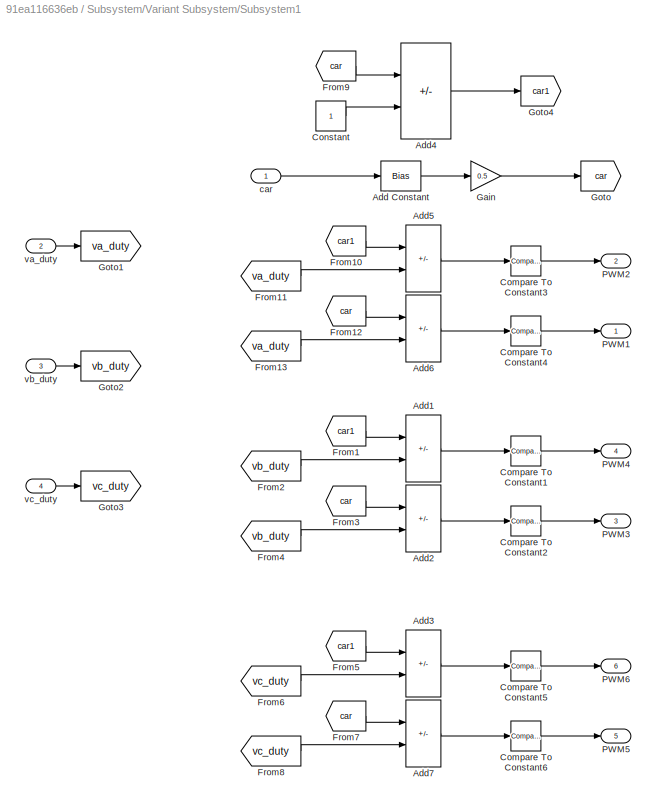
BLOCK [SubSystem] Subsystem/Variant Subsystem/Subsystem1
  VariantControl = PWM_strategy == 0
BLOCK [Bias] Subsystem/Variant Subsystem/Subsystem1/Add Constant
  Bias = 1
  SaturateOnIntegerOverflow = off
BLOCK [Sum] Subsystem/Variant Subsystem/Subsystem1/Add1
  IconShape = rectangular
  Inputs = +-
BLOCK [Sum] Subsystem/Variant Subsystem/Subsystem1/Add2
  IconShape = rectangular
  Inputs = +-
BLOCK [Sum] Subsystem/Variant Subsystem/Subsystem1/Add3
  IconShape = rectangular
  Inputs = +-
BLOCK [Sum] Subsystem/Variant Subsystem/Subsystem1/Add4
  IconShape = rectangular
  Inputs = +-
BLOCK [Sum] Subsystem/Variant Subsystem/Subsystem1/Add5
  IconShape = rectangular
  Inputs = +-
BLOCK [Sum] Subsystem/Variant Subsystem/Subsystem1/Add6
  IconShape = rectangular
  Inputs = +-
BLOCK [Sum] Subsystem/Variant Subsystem/Subsystem1/Add7
  IconShape = rectangular
  Inputs = +-
BLOCK [Reference] Subsystem/Variant Subsystem/Subsystem1/Compare To Constant1  REF=simulink/Logic and Bit
Operations/Compare
To Constant
  SourceBlock = simulink/Logic and Bit\nOperations/Compare\nTo Constant
  SourceType = Compare To Constant
BLOCK [Reference] Subsystem/Variant Subsystem/Subsystem1/Compare To Constant2  REF=simulink/Logic and Bit
Operations/Compare
To Constant
  SourceBlock = simulink/Logic and Bit\nOperations/Compare\nTo Constant
  SourceType = Compare To Constant
BLOCK [Reference] Subsystem/Variant Subsystem/Subsystem1/Compare To Constant3  REF=simulink/Logic and Bit
Operations/Compare
To Constant
  SourceBlock = simulink/Logic and Bit\nOperations/Compare\nTo Constant
  SourceType = Compare To Constant
BLOCK [Reference] Subsystem/Variant Subsystem/Subsystem1/Compare To Constant4  REF=simulink/Logic and Bit
Operations/Compare
To Constant
  SourceBlock = simulink/Logic and Bit\nOperations/Compare\nTo Constant
  SourceType = Compare To Constant
BLOCK [Reference] Subsystem/Variant Subsystem/Subsystem1/Compare To Constant5  REF=simulink/Logic and Bit
Operations/Compare
To Constant
  SourceBlock = simulink/Logic and Bit\nOperations/Compare\nTo Constant
  SourceType = Compare To Constant
BLOCK [Reference] Subsystem/Variant Subsystem/Subsystem1/Compare To Constant6  REF=simulink/Logic and Bit
Operations/Compare
To Constant
  SourceBlock = simulink/Logic and Bit\nOperations/Compare\nTo Constant
  SourceType = Compare To Constant
BLOCK [Constant] Subsystem/Variant Subsystem/Subsystem1/Constant
BLOCK [From] Subsystem/Variant Subsystem/Subsystem1/From1
  GotoTag = car1
BLOCK [From] Subsystem/Variant Subsystem/Subsystem1/From10
  GotoTag = car1
BLOCK [From] Subsystem/Variant Subsystem/Subsystem1/From11
  GotoTag = va_duty
BLOCK [From] Subsystem/Variant Subsystem/Subsystem1/From12
  GotoTag = car
BLOCK [From] Subsystem/Variant Subsystem/Subsystem1/From13
  GotoTag = va_duty
BLOCK [From] Subsystem/Variant Subsystem/Subsystem1/From2
  GotoTag = vb_duty
BLOCK [From] Subsystem/Variant Subsystem/Subsystem1/From3
  GotoTag = car
BLOCK [From] Subsystem/Variant Subsystem/Subsystem1/From4
  GotoTag = vb_duty
BLOCK [From] Subsystem/Variant Subsystem/Subsystem1/From5
  GotoTag = car1
BLOCK [From] Subsystem/Variant Subsystem/Subsystem1/From6
  GotoTag = vc_duty
BLOCK [From] Subsystem/Variant Subsystem/Subsystem1/From7
  GotoTag = car
BLOCK [From] Subsystem/Variant Subsystem/Subsystem1/From8
  GotoTag = vc_duty
BLOCK [From] Subsystem/Variant Subsystem/Subsystem1/From9
  GotoTag = car
BLOCK [Gain] Subsystem/Variant Subsystem/Subsystem1/Gain
  Gain = 0.5
BLOCK [Goto] Subsystem/Variant Subsystem/Subsystem1/Goto
  GotoTag = car
BLOCK [Goto] Subsystem/Variant Subsystem/Subsystem1/Goto1
  GotoTag = va_duty
BLOCK [Goto] Subsystem/Variant Subsystem/Subsystem1/Goto2
  GotoTag = vb_duty
BLOCK [Goto] Subsystem/Variant Subsystem/Subsystem1/Goto3
  GotoTag = vc_duty
BLOCK [Goto] Subsystem/Variant Subsystem/Subsystem1/Goto4
  GotoTag = car1
BLOCK [Outport] Subsystem/Variant Subsystem/Subsystem1/PWM1
BLOCK [Outport] Subsystem/Variant Subsystem/Subsystem1/PWM2
  Port = 2
BLOCK [Outport] Subsystem/Variant Subsystem/Subsystem1/PWM3
  Port = 3
BLOCK [Outport] Subsystem/Variant Subsystem/Subsystem1/PWM4
  Port = 4
BLOCK [Outport] Subsystem/Variant Subsystem/Subsystem1/PWM5
  Port = 5
BLOCK [Outport] Subsystem/Variant Subsystem/Subsystem1/PWM6
  Port = 6
BLOCK [Inport] Subsystem/Variant Subsystem/Subsystem1/car
BLOCK [Inport] Subsystem/Variant Subsystem/Subsystem1/va_duty
  Port = 2
BLOCK [Inport] Subsystem/Variant Subsystem/Subsystem1/vb_duty
  Port = 3
BLOCK [Inport] Subsystem/Variant Subsystem/Subsystem1/vc_duty
  Port = 4
BLOCK [Inport] Subsystem/Variant Subsystem/car
  Port = 4
BLOCK [Inport] Subsystem/Variant Subsystem/va_duty
BLOCK [Inport] Subsystem/Variant Subsystem/vb_duty
  Port = 2
BLOCK [Inport] Subsystem/Variant Subsystem/vc_duty
  Port = 3
BLOCK [Inport] Subsystem/car
  Port = 4
BLOCK [Inport] Subsystem/va_duty
BLOCK [Inport] Subsystem/vb_duty
  Port = 2
BLOCK [Inport] Subsystem/vc_duty
  Port = 3
BLOCK [SubSystem] Subsystem1
BLOCK [PMIOPort] Subsystem1/A
  Side = Right
BLOCK [PMIOPort] Subsystem1/B
  Port = 2
  Side = Right
BLOCK [PMIOPort] Subsystem1/C
  Port = 3
  Side = Right
BLOCK [Scope] Subsystem1/Scope
  Floating = off
  NumInputPorts = 3
  ScopeSpecificationString = Simulink.scopes.TimeScopeBlockCfg('CurrentConfiguration', extmgr.ConfigurationSet(extmgr.Configuration('Core','General UI',true),extmgr.Configuration('Core','Source UI',true),extmgr.Configuration('Sources','WiredSimulink',true,'DataLoggingVariableName','ScopeData1'),extmgr.Configuration('Visuals','Time Domain',true,'SerializedDisplays',{struct('MinYLimReal','-400.08332','MaxYLimReal','400.08332','...<+2738ch>
BLOCK [SubSystem] Subsystem1/Subsystem
BLOCK [PMIOPort] Subsystem1/Subsystem/A
  Side = Right
BLOCK [PMIOPort] Subsystem1/Subsystem/B
  Port = 2
  Side = Right
BLOCK [PMIOPort] Subsystem1/Subsystem/C
  Port = 3
  Side = Right
BLOCK [Reference] Subsystem1/Subsystem/Controlled Voltage Source1  REF=spsControlledVoltageSourceLib/Controlled Voltage Source
  LibrarySourceBlock = sps_lib/Sources/Controlled Voltage Source
  SourceBlock = spsControlledVoltageSourceLib/Controlled Voltage Source
  SourceType = Controlled Voltage Source
BLOCK [Reference] Subsystem1/Subsystem/Controlled Voltage Source2  REF=spsControlledVoltageSourceLib/Controlled Voltage Source
  LibrarySourceBlock = sps_lib/Sources/Controlled Voltage Source
  SourceBlock = spsControlledVoltageSourceLib/Controlled Voltage Source
  SourceType = Controlled Voltage Source
BLOCK [Reference] Subsystem1/Subsystem/Controlled Voltage Source3  REF=spsControlledVoltageSourceLib/Controlled Voltage Source
  LibrarySourceBlock = sps_lib/Sources/Controlled Voltage Source
  SourceBlock = spsControlledVoltageSourceLib/Controlled Voltage Source
  SourceType = Controlled Voltage Source
BLOCK [PMIOPort] Subsystem1/Subsystem/N
  Port = 4
  Side = Right
BLOCK [Inport] Subsystem1/Subsystem/s
BLOCK [Inport] Subsystem1/Subsystem/s1
  Port = 2
BLOCK [Inport] Subsystem1/Subsystem/s2
  Port = 3
BLOCK [SubSystem] Subsystem1/Subsystem1
BLOCK [Sum] Subsystem1/Subsystem1/Add
  IconShape = rectangular
  Inputs = +++
BLOCK [Sum] Subsystem1/Subsystem1/Add1
  IconShape = rectangular
  Inputs = +++
BLOCK [Sum] Subsystem1/Subsystem1/Add2
  IconShape = rectangular
  Inputs = +++
BLOCK [Sin] Subsystem1/Subsystem1/Sine Wave
  Amplitude = acdc.va_pk
  Frequency = acdc.Wac
  Phase = acdc.va_ph_rad
  SampleTime = 0
BLOCK [Sin] Subsystem1/Subsystem1/Sine Wave1
  Amplitude = acdc.va_pk_3rd
  Frequency = acdc.Wac*3
  Phase = acdc.va_ph_rad
  SampleTime = 0
BLOCK [Sin] Subsystem1/Subsystem1/Sine Wave2
  Amplitude = acdc.va_pk_5th
  Frequency = acdc.Wac*5
  Phase = acdc.va_ph_rad
  SampleTime = 0
BLOCK [Sin] Subsystem1/Subsystem1/Sine Wave3
  Amplitude = acdc.vb_pk
  Frequency = acdc.Wac
  Phase = acdc.vb_ph_rad
  SampleTime = 0
BLOCK [Sin] Subsystem1/Subsystem1/Sine Wave4
  Amplitude = acdc.vb_pk_3rd
  Frequency = acdc.Wac*3
  Phase = acdc.vb_ph_rad*3
  SampleTime = 0
BLOCK [Sin] Subsystem1/Subsystem1/Sine Wave5
  Amplitude = acdc.vb_pk_5th
  Frequency = acdc.Wac*5
  Phase = acdc.vb_ph_rad*5
  SampleTime = 0
BLOCK [Sin] Subsystem1/Subsystem1/Sine Wave6
  Amplitude = acdc.vc_pk
  Frequency = acdc.Wac
  Phase = acdc.vc_ph_rad
  SampleTime = 0
BLOCK [Sin] Subsystem1/Subsystem1/Sine Wave7
  Amplitude = acdc.vc_pk_3rd
  Frequency = acdc.Wac*3
  Phase = acdc.vc_ph_rad*3
  SampleTime = 0
BLOCK [Sin] Subsystem1/Subsystem1/Sine Wave8
  Amplitude = acdc.vc_pk_5th
  Frequency = acdc.Wac*5
  Phase = acdc.vc_ph_rad*5
  SampleTime = 0
BLOCK [Outport] Subsystem1/Subsystem1/s
BLOCK [Outport] Subsystem1/Subsystem1/s1
  Port = 2
BLOCK [Outport] Subsystem1/Subsystem1/s2
  Port = 3
BLOCK [Reference] Subsystem1/Three-Phase Source  REF=spsThreePhaseSourceLib/Three-Phase Source
  LibrarySourceBlock = sps_lib/Sources/Three-Phase Source
  SourceBlock = spsThreePhaseSourceLib/Three-Phase Source
  SourceType = Three-Phase Source
BLOCK [Outport] Subsystem1/Va
BLOCK [Outport] Subsystem1/Vb
  Port = 2
BLOCK [Outport] Subsystem1/Vc
  Port = 3
BLOCK [Reference] Subsystem1/Voltage Measurement1  REF=spsVoltageMeasurementLib/Voltage Measurement
  LibrarySourceBlock = sps_lib/Sensors and Measurements/Voltage Measurement
  SourceBlock = spsVoltageMeasurementLib/Voltage Measurement
  SourceType = Voltage Measurement
  UserDataPersistent = on
BLOCK [Reference] Subsystem1/Voltage Measurement2  REF=spsVoltageMeasurementLib/Voltage Measurement
  LibrarySourceBlock = sps_lib/Sensors and Measurements/Voltage Measurement
  SourceBlock = spsVoltageMeasurementLib/Voltage Measurement
  SourceType = Voltage Measurement
  UserDataPersistent = on
BLOCK [Reference] Subsystem1/Voltage Measurement3  REF=spsVoltageMeasurementLib/Voltage Measurement
  LibrarySourceBlock = sps_lib/Sensors and Measurements/Voltage Measurement
  SourceBlock = spsVoltageMeasurementLib/Voltage Measurement
  SourceType = Voltage Measurement
  UserDataPersistent = on
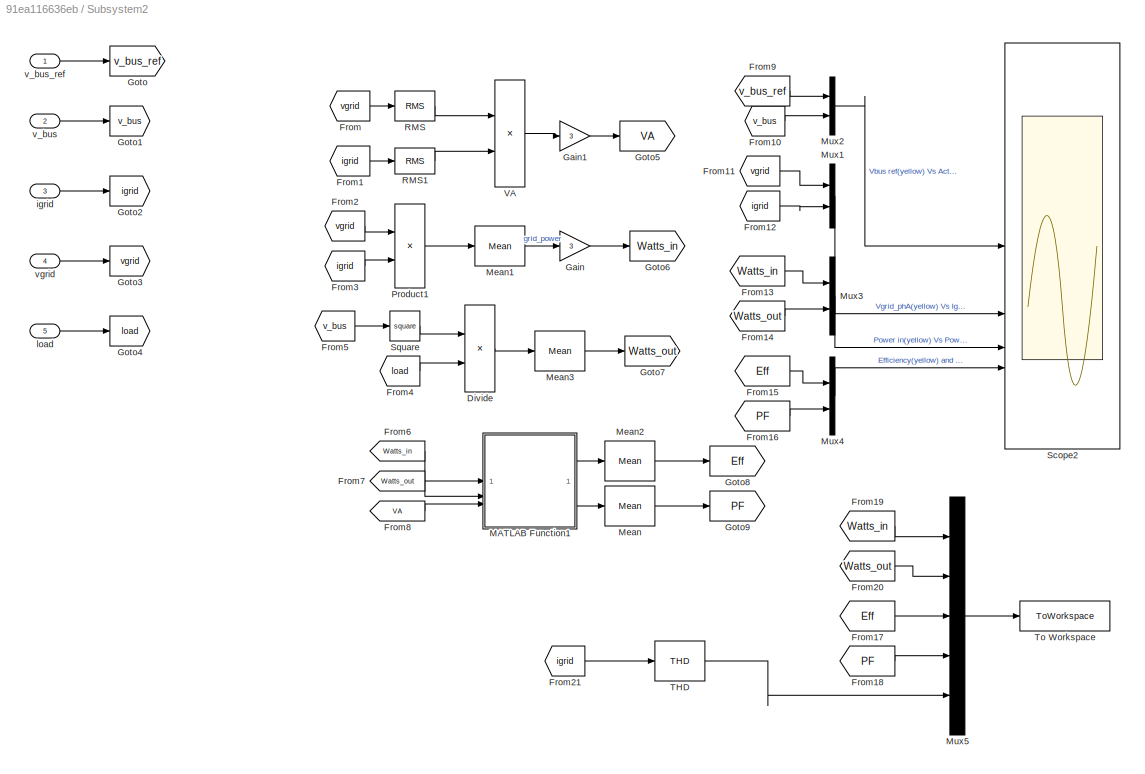
BLOCK [SubSystem] Subsystem2
  Commented = on
BLOCK [Product] Subsystem2/Divide
  Inputs = */
BLOCK [From] Subsystem2/From
  GotoTag = vgrid
BLOCK [From] Subsystem2/From1
  GotoTag = igrid
BLOCK [From] Subsystem2/From10
  GotoTag = v_bus
BLOCK [From] Subsystem2/From11
  GotoTag = vgrid
BLOCK [From] Subsystem2/From12
  GotoTag = igrid
BLOCK [From] Subsystem2/From13
  GotoTag = Watts_in
BLOCK [From] Subsystem2/From14
  GotoTag = Watts_out
BLOCK [From] Subsystem2/From15
  GotoTag = Eff
BLOCK [From] Subsystem2/From16
  GotoTag = PF
BLOCK [From] Subsystem2/From17
  GotoTag = Eff
BLOCK [From] Subsystem2/From18
  GotoTag = PF
BLOCK [From] Subsystem2/From19
  GotoTag = Watts_in
BLOCK [From] Subsystem2/From2
  GotoTag = vgrid
BLOCK [From] Subsystem2/From20
  GotoTag = Watts_out
BLOCK [From] Subsystem2/From21
  GotoTag = igrid
BLOCK [From] Subsystem2/From3
  GotoTag = igrid
BLOCK [From] Subsystem2/From4
  GotoTag = load
BLOCK [From] Subsystem2/From5
  GotoTag = v_bus
BLOCK [From] Subsystem2/From6
  GotoTag = Watts_in
BLOCK [From] Subsystem2/From7
  GotoTag = Watts_out
BLOCK [From] Subsystem2/From8
  GotoTag = VA
BLOCK [From] Subsystem2/From9
  GotoTag = v_bus_ref
BLOCK [Gain] Subsystem2/Gain
  Gain = 3
BLOCK [Gain] Subsystem2/Gain1
  Gain = 3
BLOCK [Goto] Subsystem2/Goto
  GotoTag = v_bus_ref
BLOCK [Goto] Subsystem2/Goto1
  GotoTag = v_bus
BLOCK [Goto] Subsystem2/Goto2
  GotoTag = igrid
BLOCK [Goto] Subsystem2/Goto3
  GotoTag = vgrid
BLOCK [Goto] Subsystem2/Goto4
  GotoTag = load
BLOCK [Goto] Subsystem2/Goto5
  GotoTag = VA
BLOCK [Goto] Subsystem2/Goto6
  GotoTag = Watts_in
BLOCK [Goto] Subsystem2/Goto7
  GotoTag = Watts_out
BLOCK [Goto] Subsystem2/Goto8
  GotoTag = Eff
BLOCK [Goto] Subsystem2/Goto9
  GotoTag = PF
BLOCK [SubSystem] Subsystem2/MATLAB Function1
  ErrorFcn = Stateflow.Translate.translate
  LibrarySourceBlock = simulink/User-Defined\nFunctions/MATLAB Function
  PermitHierarchicalResolution = ExplicitOnly
  SFBlockType = MATLAB Function
  TreatAsAtomicUnit = on
BLOCK [Demux] Subsystem2/MATLAB Function1/ Demux 
  Outputs = 1
BLOCK [S-Function] Subsystem2/MATLAB Function1/ SFunction 
  EnableBusSupport = on
  FunctionName = sf_sfun
  PortCounts = [3 3]
  SFcnIsStateOwnerBlock = off
  SFunctionDeploymentMode = off
  Tag = Stateflow S-Function 2
BLOCK [Terminator] Subsystem2/MATLAB Function1/ Terminator 
BLOCK [Outport] Subsystem2/MATLAB Function1/Eff
BLOCK [Outport] Subsystem2/MATLAB Function1/PF
  Port = 2
BLOCK [Inport] Subsystem2/MATLAB Function1/Pin
BLOCK [Inport] Subsystem2/MATLAB Function1/Pout
  Port = 2
BLOCK [Inport] Subsystem2/MATLAB Function1/VA
  Port = 3
BLOCK [Reference] Subsystem2/Mean  REF=spsMeanLib/Mean
  LibrarySourceBlock = sps_lib/Sensors and Measurements/Mean
  SourceBlock = spsMeanLib/Mean
  SourceType = Mean
BLOCK [Reference] Subsystem2/Mean1  REF=spsMeanLib/Mean
  LibrarySourceBlock = sps_lib/Sensors and Measurements/Mean
  SourceBlock = spsMeanLib/Mean
  SourceType = Mean
BLOCK [Reference] Subsystem2/Mean2  REF=spsMeanLib/Mean
  LibrarySourceBlock = sps_lib/Sensors and Measurements/Mean
  SourceBlock = spsMeanLib/Mean
  SourceType = Mean
BLOCK [Reference] Subsystem2/Mean3  REF=spsMeanLib/Mean
  LibrarySourceBlock = sps_lib/Sensors and Measurements/Mean
  SourceBlock = spsMeanLib/Mean
  SourceType = Mean
BLOCK [Mux] Subsystem2/Mux1
  DisplayOption = bar
  Inputs = 2
BLOCK [Mux] Subsystem2/Mux2
  DisplayOption = bar
  Inputs = 2
BLOCK [Mux] Subsystem2/Mux3
  DisplayOption = bar
  Inputs = 2
BLOCK [Mux] Subsystem2/Mux4
  DisplayOption = bar
  Inputs = 2
BLOCK [Mux] Subsystem2/Mux5
  DisplayOption = bar
  Inputs = 5
BLOCK [Product] Subsystem2/Product1
BLOCK [Reference] Subsystem2/RMS  REF=spsRMSLib/RMS
  LibrarySourceBlock = sps_lib/Sensors and Measurements/RMS
  SourceBlock = spsRMSLib/RMS
  SourceType = RMS
BLOCK [Reference] Subsystem2/RMS1  REF=spsRMSLib/RMS
  LibrarySourceBlock = sps_lib/Sensors and Measurements/RMS
  SourceBlock = spsRMSLib/RMS
  SourceType = RMS
BLOCK [Scope] Subsystem2/Scope2
  Floating = off
  NumInputPorts = 4
  ScopeSpecificationString = Simulink.scopes.TimeScopeBlockCfg('CurrentConfiguration', extmgr.ConfigurationSet(extmgr.Configuration('Core','General UI',true),extmgr.Configuration('Core','Source UI',true),extmgr.Configuration('Sources','WiredSimulink',true,'DataLoggingVariableName','ScopeData3'),extmgr.Configuration('Visuals','Time Domain',true,'SerializedDisplays',{struct('MinYLimReal','-100.26087','MaxYLimReal','902.34781','...<+3792ch>
BLOCK [Math] Subsystem2/Square
  Operator = square
BLOCK [Reference] Subsystem2/THD  REF=spsTHDLib/THD
  LibrarySourceBlock = sps_lib/Sensors and Measurements/THD
  SourceBlock = spsTHDLib/THD
  SourceType = THD
BLOCK [ToWorkspace] Subsystem2/To Workspace
  Decimation = 100
  FixptAsFi = on
  MaxDataPoints = inf
  SampleTime = -1
  SaveFormat = Timeseries
  VariableName = pow_eff
BLOCK [Product] Subsystem2/VA
BLOCK [Inport] Subsystem2/igrid
  Port = 3
BLOCK [Inport] Subsystem2/load
  Port = 5
BLOCK [Inport] Subsystem2/v_bus
  Port = 2
BLOCK [Inport] Subsystem2/v_bus_ref
BLOCK [Inport] Subsystem2/vgrid
  Port = 4
BLOCK [SubSystem] Subsystem3
BLOCK [BusCreator] Subsystem3/Bus Creator
  DisplayOption = bar
  InheritFromInputs = on
  Inputs = 3
BLOCK [BusSelector] Subsystem3/Bus Selector
  OutputSignals = seq_comps.v_al_pos,seq_comps.v_be_pos,seq_comps.v_al_neg,seq_comps.v_be_neg,th_est,w_est,debug1,debug2
BLOCK [Inport] Subsystem3/In1
BLOCK [Inport] Subsystem3/In2
  Port = 2
BLOCK [Inport] Subsystem3/In3
  Port = 3
BLOCK [S-Function] Subsystem3/S-Function
  EnableBusSupport = off
  FunctionName = sfun_pll
  SFcnIsStateOwnerBlock = off
  SFunctionDeploymentMode = off
BLOCK [Scope] Subsystem3/Scope2
  Floating = off
  NumInputPorts = 3
  ScopeSpecificationString = Simulink.scopes.TimeScopeBlockCfg('CurrentConfiguration', extmgr.ConfigurationSet(extmgr.Configuration('Core','General UI',true),extmgr.Configuration('Core','Source UI',true),extmgr.Configuration('Sources','WiredSimulink',true,'DataLoggingVariableName','ScopeData1'),extmgr.Configuration('Visuals','Time Domain',true,'SerializedDisplays',{struct('MinYLimReal','2.00000','MaxYLimReal','4.00000','YLabe...<+2743ch>
BLOCK [TriggerPort] Subsystem3/Trigger
  PortDimensions = 1
  StatesWhenEnabling = held
  VariantControl = (inherit)
BLOCK [Outport] Subsystem3/grid_a_ph_pn
  Port = 5
BLOCK [Outport] Subsystem3/grid_b_ph_pn
  Port = 6
BLOCK [Outport] Subsystem3/grid_c_ph_pn
  Port = 7
BLOCK [Outport] Subsystem3/th_est_pn
  Port = 9
BLOCK [Outport] Subsystem3/v_al_neg
  Port = 3
BLOCK [Outport] Subsystem3/v_al_pos
BLOCK [Outport] Subsystem3/v_be_neg
  Port = 4
BLOCK [Outport] Subsystem3/v_be_pos
  Port = 2
BLOCK [Outport] Subsystem3/w_est_pn
  Port = 8
BLOCK [SubSystem] Subsystem4
BLOCK [BusCreator] Subsystem4/Bus Creator
  DisplayOption = bar
  InheritFromInputs = on
  Inputs = 1
BLOCK [BusSelector] Subsystem4/Bus Selector
  OutputSignals = vbus_ref,vbus_con_out,debug1,debug2
BLOCK [DataTypeConversion] Subsystem4/Data Type Conversion16
  OutDataTypeStr = single
  RndMeth = Floor
  SaturateOnIntegerOverflow = off
BLOCK [Inport] Subsystem4/In1
BLOCK [S-Function] Subsystem4/S-Function
  EnableBusSupport = off
  FunctionName = sfun_vbus_con
  SFcnIsStateOwnerBlock = off
  SFunctionDeploymentMode = off
BLOCK [Scope] Subsystem4/Scope2
  Floating = off
  NumInputPorts = 3
  ScopeSpecificationString = Simulink.scopes.TimeScopeBlockCfg('CurrentConfiguration', extmgr.ConfigurationSet(extmgr.Configuration('Core','General UI',true),extmgr.Configuration('Core','Source UI',true),extmgr.Configuration('Sources','WiredSimulink',true,'DataLoggingVariableName','ScopeData1'),extmgr.Configuration('Visuals','Time Domain',true,'SerializedDisplays',{struct('MinYLimReal','473.6673','MaxYLimReal','841.8673','YLa...<+2738ch>
BLOCK [TriggerPort] Subsystem4/Trigger
  PortDimensions = 1
  StatesWhenEnabling = held
  VariantControl = (inherit)
BLOCK [Outport] Subsystem4/vbus_con_out
  Port = 2
BLOCK [Outport] Subsystem4/vbus_ref
BLOCK [SubSystem] Subsystem5
BLOCK [BusCreator] Subsystem5/Bus Creator
  DisplayOption = bar
  InheritFromInputs = on
  Inputs = 4
  OutDataTypeStr = Bus: CURREFGEN_IN_TYPE
BLOCK [BusCreator] Subsystem5/Bus Creator2
  DisplayOption = bar
  InheritFromInputs = on
  Inputs = 3
BLOCK [BusCreator] Subsystem5/Bus Creator3
  DisplayOption = bar
  InheritFromInputs = on
  Inputs = 3
BLOCK [BusCreator] Subsystem5/Bus Creator4
  DisplayOption = bar
  InheritFromInputs = on
  Inputs = 4
BLOCK [BusSelector] Subsystem5/Bus Selector
  OutputSignals = iabc.A,iabc.B,iabc.C,debug1,debug2
BLOCK [S-Function] Subsystem5/S-Function
  EnableBusSupport = off
  FunctionName = sfun_cur_ref_gen
  SFcnIsStateOwnerBlock = off
  SFunctionDeploymentMode = off
BLOCK [Scope] Subsystem5/Scope2
  Floating = off
  NumInputPorts = 3
  ScopeSpecificationString = Simulink.scopes.TimeScopeBlockCfg('CurrentConfiguration', extmgr.ConfigurationSet(extmgr.Configuration('Core','General UI',true),extmgr.Configuration('Core','Source UI',true),extmgr.Configuration('Sources','WiredSimulink',true,'DataLoggingVariableName','ScopeData1'),extmgr.Configuration('Visuals','Time Domain',true,'SerializedDisplays',{struct('MinYLimReal','473.6673','MaxYLimReal','841.8673','YLa...<+2738ch>
BLOCK [TriggerPort] Subsystem5/Trigger
  PortDimensions = 1
  StatesWhenEnabling = held
  VariantControl = (inherit)
BLOCK [Inport] Subsystem5/grid_a_sin
  Port = 5
BLOCK [Inport] Subsystem5/grid_b_sin
  Port = 6
BLOCK [Inport] Subsystem5/grid_c_sin
  Port = 7
BLOCK [Outport] Subsystem5/ia_ref_sf
BLOCK [Outport] Subsystem5/ib_ref_sf
  Port = 2
BLOCK [Outport] Subsystem5/ic_ref_sf
  Port = 3
BLOCK [Inport] Subsystem5/v_al_neg
  Port = 10
BLOCK [Inport] Subsystem5/v_al_pos
  Port = 8
BLOCK [Inport] Subsystem5/v_be_neg
  Port = 11
BLOCK [Inport] Subsystem5/v_be_pos
  Port = 9
BLOCK [Inport] Subsystem5/va
BLOCK [Inport] Subsystem5/vb
  Port = 2
BLOCK [Inport] Subsystem5/vc
  Port = 3
BLOCK [Inport] Subsystem5/vdc_con_out
  Port = 4
BLOCK [SubSystem] Subsystem6
BLOCK [BusCreator] Subsystem6/Bus Creator
  DisplayOption = bar
  InheritFromInputs = on
  Inputs = 3
  OutDataTypeStr = Bus: CURCONTROLLER_IN_TYPE
BLOCK [BusCreator] Subsystem6/Bus Creator2
  DisplayOption = bar
  InheritFromInputs = on
  Inputs = 3
  OutDataTypeStr = Bus: ABC_TYPE
BLOCK [BusCreator] Subsystem6/Bus Creator3
  DisplayOption = bar
  InheritFromInputs = on
  Inputs = 3
  OutDataTypeStr = Bus: ABC_TYPE
BLOCK [BusSelector] Subsystem6/Bus Selector
  OutputSignals = duty_abc.A,duty_abc.B,duty_abc.C,debug1,debug2
BLOCK [DataTypeConversion] Subsystem6/Data Type Conversion1
  OutDataTypeStr = double
  RndMeth = Floor
  SaturateOnIntegerOverflow = off
BLOCK [DataTypeConversion] Subsystem6/Data Type Conversion8
  OutDataTypeStr = double
  RndMeth = Floor
  SaturateOnIntegerOverflow = off
BLOCK [DataTypeConversion] Subsystem6/Data Type Conversion9
  OutDataTypeStr = double
  RndMeth = Floor
  SaturateOnIntegerOverflow = off
BLOCK [S-Function] Subsystem6/S-Function
  EnableBusSupport = off
  FunctionName = sfun_cur_con
  SFcnIsStateOwnerBlock = off
  SFunctionDeploymentMode = off
BLOCK [Scope] Subsystem6/Scope2
  Floating = off
  NumInputPorts = 3
  ScopeSpecificationString = Simulink.scopes.TimeScopeBlockCfg('CurrentConfiguration', extmgr.ConfigurationSet(extmgr.Configuration('Core','General UI',true),extmgr.Configuration('Core','Source UI',true),extmgr.Configuration('Sources','WiredSimulink',true,'DataLoggingVariableName','ScopeData1'),extmgr.Configuration('Visuals','Time Domain',true,'SerializedDisplays',{struct('MinYLimReal','283.34034','MaxYLimReal','341.71978','Y...<+2734ch>
BLOCK [TriggerPort] Subsystem6/Trigger
  PortDimensions = 1
  StatesWhenEnabling = held
  VariantControl = (inherit)
BLOCK [Outport] Subsystem6/duty_a
BLOCK [Outport] Subsystem6/duty_b
  Port = 2
BLOCK [Outport] Subsystem6/duty_c
  Port = 3
BLOCK [Inport] Subsystem6/ia
  Port = 4
BLOCK [Inport] Subsystem6/ia_ref
BLOCK [Inport] Subsystem6/ib
  Port = 5
BLOCK [Inport] Subsystem6/ib_ref
  Port = 2
BLOCK [Inport] Subsystem6/ic
  Port = 6
BLOCK [Inport] Subsystem6/ic_ref
  Port = 3
BLOCK [Inport] Subsystem6/w_est
  Port = 7
BLOCK [ToWorkspace] To Workspace
  Decimation = 100
  FixptAsFi = on
  MaxDataPoints = inf
  SampleTime = -1
  SaveFormat = Timeseries
  VariableName = volt_vur_load
BLOCK [Reference] Triangle Generator  REF=spsTriangleGeneratorLib/Triangle
Generator
  LibrarySourceBlock = sps_lib/Sources/Signal Generator Sources/Triangle\nGenerator
  SourceBlock = spsTriangleGeneratorLib/Triangle\nGenerator
  SourceType = Triangle Generator
BLOCK [Reference] Variable Resistor1  REF=spsVariableResistorLib/Variable Resistor
  LibrarySourceBlock = sps_lib/Passives/Variable Resistor
  NameLocation = right
  SourceBlock = spsVariableResistorLib/Variable Resistor
  SourceType = Variable Resistor
BLOCK [SubSystem] Variant Subsystem
  Variant = on
BLOCK [SubSystem] Variant Subsystem/S FUNCTION CONTROL
  VariantControl = sfunc_based_con == 1
BLOCK [Terminator] Variant Subsystem/S FUNCTION CONTROL/Terminator
BLOCK [Terminator] Variant Subsystem/S FUNCTION CONTROL/Terminator1
BLOCK [Terminator] Variant Subsystem/S FUNCTION CONTROL/Terminator2
BLOCK [Outport] Variant Subsystem/S FUNCTION CONTROL/dutyA
BLOCK [Outport] Variant Subsystem/S FUNCTION CONTROL/dutyB
  Port = 2
BLOCK [Outport] Variant Subsystem/S FUNCTION CONTROL/dutyC
  Port = 3
BLOCK [Inport] Variant Subsystem/S FUNCTION CONTROL/duty_a
BLOCK [Inport] Variant Subsystem/S FUNCTION CONTROL/duty_a_sf
  Port = 4
BLOCK [Inport] Variant Subsystem/S FUNCTION CONTROL/duty_b
  Port = 2
BLOCK [Inport] Variant Subsystem/S FUNCTION CONTROL/duty_b_sf
  Port = 5
BLOCK [Inport] Variant Subsystem/S FUNCTION CONTROL/duty_c
  Port = 3
BLOCK [Inport] Variant Subsystem/S FUNCTION CONTROL/duty_c_sf
  Port = 6
BLOCK [SubSystem] Variant Subsystem/SIMULINK BLOCK CONTROL
  VariantControl = sfunc_based_con == 0
BLOCK [Terminator] Variant Subsystem/SIMULINK BLOCK CONTROL/Terminator
BLOCK [Terminator] Variant Subsystem/SIMULINK BLOCK CONTROL/Terminator1
BLOCK [Terminator] Variant Subsystem/SIMULINK BLOCK CONTROL/Terminator2
BLOCK [Outport] Variant Subsystem/SIMULINK BLOCK CONTROL/dutyA
BLOCK [Outport] Variant Subsystem/SIMULINK BLOCK CONTROL/dutyB
  Port = 2
BLOCK [Outport] Variant Subsystem/SIMULINK BLOCK CONTROL/dutyC
  Port = 3
BLOCK [Inport] Variant Subsystem/SIMULINK BLOCK CONTROL/duty_a
BLOCK [Inport] Variant Subsystem/SIMULINK BLOCK CONTROL/duty_a_sf
  Port = 4
BLOCK [Inport] Variant Subsystem/SIMULINK BLOCK CONTROL/duty_b
  Port = 2
BLOCK [Inport] Variant Subsystem/SIMULINK BLOCK CONTROL/duty_b_sf
  Port = 5
BLOCK [Inport] Variant Subsystem/SIMULINK BLOCK CONTROL/duty_c
  Port = 3
BLOCK [Inport] Variant Subsystem/SIMULINK BLOCK CONTROL/duty_c_sf
  Port = 6
BLOCK [Outport] Variant Subsystem/dutyA
BLOCK [Outport] Variant Subsystem/dutyB
  Port = 2
BLOCK [Outport] Variant Subsystem/dutyC
  Port = 3
BLOCK [Inport] Variant Subsystem/duty_a
BLOCK [Inport] Variant Subsystem/duty_a_sf
  Port = 4
BLOCK [Inport] Variant Subsystem/duty_b
  Port = 2
BLOCK [Inport] Variant Subsystem/duty_b_sf
  Port = 5
BLOCK [Inport] Variant Subsystem/duty_c
  Port = 3
BLOCK [Inport] Variant Subsystem/duty_c_sf
  Port = 6
BLOCK [SubSystem] Vbus_Controller
BLOCK [Sum] Vbus_Controller/Add
  IconShape = rectangular
  Inputs = +-
BLOCK [Constant] Vbus_Controller/Constant
  OutDataTypeStr = single
  Value = acdc.Vac_ph_pk*sqrt(3)
BLOCK [Constant] Vbus_Controller/Constant1
  OutDataTypeStr = single
  Value = acdc.Tvolt_loop
BLOCK [Constant] Vbus_Controller/Constant2
  OutDataTypeStr = single
  Value = vdc_fbk_filter
BLOCK [Delay] Vbus_Controller/Delay3
  DelayLength = 1
  InitialCondition = acdc.Vac_ph_pk*sqrt(3)
  InputPortMap = u0
  NameLocation = top
BLOCK [DiscreteTransferFcn] Vbus_Controller/Discrete Transfer Fcn
  Denominator = acdc.notch_den
  InputPortMap = u0
  Numerator = acdc.notch_num
BLOCK [Inport] Vbus_Controller/In2
BLOCK [SubSystem] Vbus_Controller/MATLAB Function4
  ErrorFcn = Stateflow.Translate.translate
  LibrarySourceBlock = simulink/User-Defined\nFunctions/MATLAB Function
  PermitHierarchicalResolution = ExplicitOnly
  SFBlockType = MATLAB Function
  TreatAsAtomicUnit = on
BLOCK [Demux] Vbus_Controller/MATLAB Function4/ Demux 
  Outputs = 1
BLOCK [S-Function] Vbus_Controller/MATLAB Function4/ SFunction 
  EnableBusSupport = on
  FunctionName = sf_sfun
  PortCounts = [3 2]
  SFcnIsStateOwnerBlock = off
  SFunctionDeploymentMode = off
  Tag = Stateflow S-Function 3
BLOCK [Terminator] Vbus_Controller/MATLAB Function4/ Terminator 
BLOCK [Inport] Vbus_Controller/MATLAB Function4/Tcon
  Port = 2
BLOCK [Inport] Vbus_Controller/MATLAB Function4/vdc_max
BLOCK [Inport] Vbus_Controller/MATLAB Function4/vdc_old
  Port = 3
BLOCK [Outport] Vbus_Controller/MATLAB Function4/vdc_ref
BLOCK [SubSystem] Vbus_Controller/PI
BLOCK [Sum] Vbus_Controller/PI/Add
  IconShape = rectangular
BLOCK [DiscreteIntegrator] Vbus_Controller/PI/Discrete-Time Integrator
  ICPrevOutput = DiscIntNeverNeededParam
  ICPrevScaledInput = DiscIntNeverNeededParam
  LimitOutput = on
  LowerSaturationLimit = acdc.vdc_con_min
  SampleTime = -1
  UpperSaturationLimit = acdc.vdc_con_max
BLOCK [Gain] Vbus_Controller/PI/Gain
  Gain = acdc.vdc_ki
BLOCK [Gain] Vbus_Controller/PI/Gain1
  Gain = acdc.vdc_kp
BLOCK [Outport] Vbus_Controller/PI/Out1
BLOCK [Saturate] Vbus_Controller/PI/Saturation
  LowerLimit = acdc.vdc_con_min
  UpperLimit = acdc.vdc_con_max
BLOCK [Inport] Vbus_Controller/PI/q
BLOCK [Saturate] Vbus_Controller/Saturation
  LowerLimit = acdc.vdc_con_min
  UpperLimit = acdc.vdc_con_max
BLOCK [Saturate] Vbus_Controller/Saturation2
  LowerLimit = 0
  UpperLimit = acdc.Vref
BLOCK [Scope] Vbus_Controller/Scope1
  Floating = off
  NumInputPorts = 3
  ScopeSpecificationString = Simulink.scopes.TimeScopeBlockCfg('CurrentConfiguration', extmgr.ConfigurationSet(extmgr.Configuration('Core','General UI',true),extmgr.Configuration('Core','Source UI',true),extmgr.Configuration('Sources','WiredSimulink',true,'DataLoggingVariableName','ScopeData2'),extmgr.Configuration('Visuals','Time Domain',true,'SerializedDisplays',{struct('MinYLimReal','-210.29572','MaxYLimReal','317.60629','...<+2766ch>
BLOCK [Switch] Vbus_Controller/Switch
  Criteria = u2 ~= 0
  InputSameDT = off
  SaturateOnIntegerOverflow = off
  Threshold = 1
BLOCK [TriggerPort] Vbus_Controller/Trigger
  PortDimensions = 1
  StatesWhenEnabling = held
  VariantControl = (inherit)
BLOCK [Outport] Vbus_Controller/vdc_con_out
BLOCK [Outport] Vbus_Controller/vref
  Port = 2
BLOCK [Reference] Voltage Measurement2  REF=spsVoltageMeasurementLib/Voltage Measurement
  LibrarySourceBlock = sps_lib/Sensors and Measurements/Voltage Measurement
  SourceBlock = spsVoltageMeasurementLib/Voltage Measurement
  SourceType = Voltage Measurement
  UserDataPersistent = on
BLOCK [Reference] powergui  REF=spspowerguiLib/powergui
  Priority = 1
  SourceBlock = spspowerguiLib/powergui
  SourceType = PSB option menu block
LINE AND1:1 -> Subsystem:trigger
LINE AND2:1 -> Goto27:1
LINE AND:1 -> Goto13:1
LINE Current Measurement1:1 -> Data Type Conversion26:1
LINE Current Measurement2:1 -> Data Type Conversion27:1
LINE Current Measurement3:1 -> Data Type Conversion28:1
LINE Current Ref Generation/Variant Subsystem/current control/Product1:1 -> Current Ref Generation/Variant Subsystem/current control/ib_ref:1
LINE Current Ref Generation/Variant Subsystem/current control/Product2:1 -> Current Ref Generation/Variant Subsystem/current control/ic_ref:1
LINE Current Ref Generation/Variant Subsystem/current control/Product:1 -> Current Ref Generation/Variant Subsystem/current control/ia_ref:1
LINE Current Ref Generation/Variant Subsystem/current control/grid_a_sin:1 -> Current Ref Generation/Variant Subsystem/current control/Product:1
LINE Current Ref Generation/Variant Subsystem/current control/grid_b_sin:1 -> Current Ref Generation/Variant Subsystem/current control/Product1:1
LINE Current Ref Generation/Variant Subsystem/current control/grid_c_sin:1 -> Current Ref Generation/Variant Subsystem/current control/Product2:1
NET Current Ref Generation/Variant Subsystem/current control/vdc_con_out:1 -> Current Ref Generation/Variant Subsystem/current control/Product1:2, Current Ref Generation/Variant Subsystem/current control/Product2:2, Current Ref Generation/Variant Subsystem/current control/Product:2
LINE Current Ref Generation/Variant Subsystem/power control seq comp/From14:1 -> Current Ref Generation/Variant Subsystem/power control seq comp/MATLAB Function3:1
LINE Current Ref Generation/Variant Subsystem/power control seq comp/From15:1 -> Current Ref Generation/Variant Subsystem/power control seq comp/MATLAB Function3:2
LINE Current Ref Generation/Variant Subsystem/power control seq comp/From16:1 -> Current Ref Generation/Variant Subsystem/power control seq comp/MATLAB Function3:3
LINE Current Ref Generation/Variant Subsystem/power control seq comp/From17:1 -> Current Ref Generation/Variant Subsystem/power control seq comp/MATLAB Function3:4
LINE Current Ref Generation/Variant Subsystem/power control seq comp/From:1 -> Current Ref Generation/Variant Subsystem/power control seq comp/MATLAB Function3:5
LINE Current Ref Generation/Variant Subsystem/power control seq comp/MATLAB Function1:1 -> Current Ref Generation/Variant Subsystem/power control seq comp/Saturation:1
LINE Current Ref Generation/Variant Subsystem/power control seq comp/MATLAB Function1:2 -> Current Ref Generation/Variant Subsystem/power control seq comp/Saturation1:1
LINE Current Ref Generation/Variant Subsystem/power control seq comp/MATLAB Function1:3 -> Current Ref Generation/Variant Subsystem/power control seq comp/Saturation2:1
LINE Current Ref Generation/Variant Subsystem/power control seq comp/MATLAB Function3:1 -> Current Ref Generation/Variant Subsystem/power control seq comp/MATLAB Function1:1
LINE Current Ref Generation/Variant Subsystem/power control seq comp/MATLAB Function3:2 -> Current Ref Generation/Variant Subsystem/power control seq comp/MATLAB Function1:2
LINE Current Ref Generation/Variant Subsystem/power control seq comp/Saturation1:1 -> Current Ref Generation/Variant Subsystem/power control seq comp/ib_ref:1
LINE Current Ref Generation/Variant Subsystem/power control seq comp/Saturation2:1 -> Current Ref Generation/Variant Subsystem/power control seq comp/ic_ref:1
LINE Current Ref Generation/Variant Subsystem/power control seq comp/Saturation:1 -> Current Ref Generation/Variant Subsystem/power control seq comp/ia_ref:1
LINE Current Ref Generation/Variant Subsystem/power control seq comp/v_al_neg:1 -> Current Ref Generation/Variant Subsystem/power control seq comp/Goto3:1
LINE Current Ref Generation/Variant Subsystem/power control seq comp/v_al_pos:1 -> Current Ref Generation/Variant Subsystem/power control seq comp/Goto:1
LINE Current Ref Generation/Variant Subsystem/power control seq comp/v_be_neg:1 -> Current Ref Generation/Variant Subsystem/power control seq comp/Goto4:1
LINE Current Ref Generation/Variant Subsystem/power control seq comp/v_be_pos:1 -> Current Ref Generation/Variant Subsystem/power control seq comp/Goto2:1
LINE Current Ref Generation/Variant Subsystem/power control seq comp/vdc_con_out:1 -> Current Ref Generation/Variant Subsystem/power control seq comp/Goto1:1
LINE Current Ref Generation/Variant Subsystem/power control/From3:1 -> Current Ref Generation/Variant Subsystem/power control/MATLAB Function4:1
LINE Current Ref Generation/Variant Subsystem/power control/From4:1 -> Current Ref Generation/Variant Subsystem/power control/MATLAB Function4:2
LINE Current Ref Generation/Variant Subsystem/power control/From5:1 -> Current Ref Generation/Variant Subsystem/power control/MATLAB Function4:3
LINE Current Ref Generation/Variant Subsystem/power control/From6:1 -> Current Ref Generation/Variant Subsystem/power control/MATLAB Function4:4
LINE Current Ref Generation/Variant Subsystem/power control/MATLAB Function4:1 -> Current Ref Generation/Variant Subsystem/power control/ia_ref:1
LINE Current Ref Generation/Variant Subsystem/power control/MATLAB Function4:2 -> Current Ref Generation/Variant Subsystem/power control/ib_ref:1
LINE Current Ref Generation/Variant Subsystem/power control/MATLAB Function4:3 -> Current Ref Generation/Variant Subsystem/power control/ic_ref:1
LINE Current Ref Generation/Variant Subsystem/power control/va:1 -> Current Ref Generation/Variant Subsystem/power control/Goto2:1
LINE Current Ref Generation/Variant Subsystem/power control/vb:1 -> Current Ref Generation/Variant Subsystem/power control/Goto3:1
LINE Current Ref Generation/Variant Subsystem/power control/vc:1 -> Current Ref Generation/Variant Subsystem/power control/Goto4:1
LINE Current Ref Generation/Variant Subsystem/power control/vdc_con_out:1 -> Current Ref Generation/Variant Subsystem/power control/Goto1:1
LINE Current Ref Generation/Variant Subsystem:1 -> Current Ref Generation/ia_ref:1
LINE Current Ref Generation/Variant Subsystem:2 -> Current Ref Generation/ib_ref:1
LINE Current Ref Generation/Variant Subsystem:3 -> Current Ref Generation/ic_ref:1
LINE Current Ref Generation/grid_a_sin:1 -> Current Ref Generation/Variant Subsystem:5
LINE Current Ref Generation/grid_b_sin:1 -> Current Ref Generation/Variant Subsystem:6
LINE Current Ref Generation/grid_c_sin:1 -> Current Ref Generation/Variant Subsystem:7
LINE Current Ref Generation/v_al_neg:1 -> Current Ref Generation/Variant Subsystem:10
LINE Current Ref Generation/v_al_pos:1 -> Current Ref Generation/Variant Subsystem:8
LINE Current Ref Generation/v_be_pos:1 -> Current Ref Generation/Variant Subsystem:9
LINE Current Ref Generation/v_ne_neg:1 -> Current Ref Generation/Variant Subsystem:11
LINE Current Ref Generation/va:1 -> Current Ref Generation/Variant Subsystem:1
LINE Current Ref Generation/vb:1 -> Current Ref Generation/Variant Subsystem:2
LINE Current Ref Generation/vc:1 -> Current Ref Generation/Variant Subsystem:3
LINE Current Ref Generation/vdc_con_out:1 -> Current Ref Generation/Variant Subsystem:4
LINE Current Ref Generation:1 -> Goto37:1
LINE Current Ref Generation:2 -> Goto39:1
LINE Current Ref Generation:3 -> Goto40:1
LINE CurrentController1/Variant Subsystem/PR/Add1:1 -> CurrentController1/Variant Subsystem/PR/PRcontroller:1
LINE CurrentController1/Variant Subsystem/PR/Add2:1 -> CurrentController1/Variant Subsystem/PR/PRcontroller1:1
LINE CurrentController1/Variant Subsystem/PR/Add3:1 -> CurrentController1/Variant Subsystem/PR/PRcontroller2:1
LINE CurrentController1/Variant Subsystem/PR/Gain1:1 -> CurrentController1/Variant Subsystem/PR/dutyB:1
LINE CurrentController1/Variant Subsystem/PR/Gain2:1 -> CurrentController1/Variant Subsystem/PR/dutyC:1
LINE CurrentController1/Variant Subsystem/PR/Gain3:1 -> CurrentController1/Variant Subsystem/PR/vc_pol:1
LINE CurrentController1/Variant Subsystem/PR/Gain4:1 -> CurrentController1/Variant Subsystem/PR/vb_pol:1
LINE CurrentController1/Variant Subsystem/PR/Gain5:1 -> CurrentController1/Variant Subsystem/PR/va_pol:1
LINE CurrentController1/Variant Subsystem/PR/Gain:1 -> CurrentController1/Variant Subsystem/PR/dutyA:1
LINE CurrentController1/Variant Subsystem/PR/PRcontroller/Add:1 -> CurrentController1/Variant Subsystem/PR/PRcontroller/Saturation:1
LINE CurrentController1/Variant Subsystem/PR/PRcontroller/Discrete Transfer Fcn:1 -> CurrentController1/Variant Subsystem/PR/PRcontroller/Add:2
LINE CurrentController1/Variant Subsystem/PR/PRcontroller/Gain1:1 -> CurrentController1/Variant Subsystem/PR/PRcontroller/Discrete Transfer Fcn:1
LINE CurrentController1/Variant Subsystem/PR/PRcontroller/Gain:1 -> CurrentController1/Variant Subsystem/PR/PRcontroller/Add:1
NET CurrentController1/Variant Subsystem/PR/PRcontroller/In1:1 -> CurrentController1/Variant Subsystem/PR/PRcontroller/Gain1:1, CurrentController1/Variant Subsystem/PR/PRcontroller/Gain:1
LINE CurrentController1/Variant Subsystem/PR/PRcontroller/Saturation:1 -> CurrentController1/Variant Subsystem/PR/PRcontroller/ia_duty1:1
LINE CurrentController1/Variant Subsystem/PR/PRcontroller1/Add:1 -> CurrentController1/Variant Subsystem/PR/PRcontroller1/Saturation:1
LINE CurrentController1/Variant Subsystem/PR/PRcontroller1/Discrete Transfer Fcn:1 -> CurrentController1/Variant Subsystem/PR/PRcontroller1/Add:2
LINE CurrentController1/Variant Subsystem/PR/PRcontroller1/Gain1:1 -> CurrentController1/Variant Subsystem/PR/PRcontroller1/Discrete Transfer Fcn:1
LINE CurrentController1/Variant Subsystem/PR/PRcontroller1/Gain:1 -> CurrentController1/Variant Subsystem/PR/PRcontroller1/Add:1
NET CurrentController1/Variant Subsystem/PR/PRcontroller1/In1:1 -> CurrentController1/Variant Subsystem/PR/PRcontroller1/Gain1:1, CurrentController1/Variant Subsystem/PR/PRcontroller1/Gain:1
LINE CurrentController1/Variant Subsystem/PR/PRcontroller1/Saturation:1 -> CurrentController1/Variant Subsystem/PR/PRcontroller1/va_pol1:1
NET CurrentController1/Variant Subsystem/PR/PRcontroller1:1 -> CurrentController1/Variant Subsystem/PR/Gain1:1, CurrentController1/Variant Subsystem/PR/Gain4:1
LINE CurrentController1/Variant Subsystem/PR/PRcontroller2/Add:1 -> CurrentController1/Variant Subsystem/PR/PRcontroller2/Saturation:1
LINE CurrentController1/Variant Subsystem/PR/PRcontroller2/Discrete Transfer Fcn:1 -> CurrentController1/Variant Subsystem/PR/PRcontroller2/Add:2
LINE CurrentController1/Variant Subsystem/PR/PRcontroller2/Gain1:1 -> CurrentController1/Variant Subsystem/PR/PRcontroller2/Discrete Transfer Fcn:1
LINE CurrentController1/Variant Subsystem/PR/PRcontroller2/Gain:1 -> CurrentController1/Variant Subsystem/PR/PRcontroller2/Add:1
NET CurrentController1/Variant Subsystem/PR/PRcontroller2/In1:1 -> CurrentController1/Variant Subsystem/PR/PRcontroller2/Gain1:1, CurrentController1/Variant Subsystem/PR/PRcontroller2/Gain:1
LINE CurrentController1/Variant Subsystem/PR/PRcontroller2/Saturation:1 -> CurrentController1/Variant Subsystem/PR/PRcontroller2/vb_pol1:1
NET CurrentController1/Variant Subsystem/PR/PRcontroller2:1 -> CurrentController1/Variant Subsystem/PR/Gain2:1, CurrentController1/Variant Subsystem/PR/Gain3:1
NET CurrentController1/Variant Subsystem/PR/PRcontroller:1 -> CurrentController1/Variant Subsystem/PR/Gain5:1, CurrentController1/Variant Subsystem/PR/Gain:1
LINE CurrentController1/Variant Subsystem/PR/ia:1 -> CurrentController1/Variant Subsystem/PR/Add1:2
LINE CurrentController1/Variant Subsystem/PR/ia_ref:1 -> CurrentController1/Variant Subsystem/PR/Add1:1
LINE CurrentController1/Variant Subsystem/PR/ib:1 -> CurrentController1/Variant Subsystem/PR/Add2:2
LINE CurrentController1/Variant Subsystem/PR/ib_ref:1 -> CurrentController1/Variant Subsystem/PR/Add2:1
LINE CurrentController1/Variant Subsystem/PR/ic:1 -> CurrentController1/Variant Subsystem/PR/Add3:2
LINE CurrentController1/Variant Subsystem/PR/ic_ref:1 -> CurrentController1/Variant Subsystem/PR/Add3:1
LINE CurrentController1/Variant Subsystem/PR/w_est:1 -> CurrentController1/Variant Subsystem/PR/Terminator:1
LINE CurrentController1/Variant Subsystem/SOGI_PR/Add1:1 -> CurrentController1/Variant Subsystem/SOGI_PR/PRcontroller3:1
LINE CurrentController1/Variant Subsystem/SOGI_PR/Add2:1 -> CurrentController1/Variant Subsystem/SOGI_PR/PRcontroller1:1
LINE CurrentController1/Variant Subsystem/SOGI_PR/Add3:1 -> CurrentController1/Variant Subsystem/SOGI_PR/PRcontroller2:1
LINE CurrentController1/Variant Subsystem/SOGI_PR/Gain1:1 -> CurrentController1/Variant Subsystem/SOGI_PR/dutyB:1
LINE CurrentController1/Variant Subsystem/SOGI_PR/Gain2:1 -> CurrentController1/Variant Subsystem/SOGI_PR/vb_pol:1
LINE CurrentController1/Variant Subsystem/SOGI_PR/Gain3:1 -> CurrentController1/Variant Subsystem/SOGI_PR/dutyC:1
LINE CurrentController1/Variant Subsystem/SOGI_PR/Gain4:1 -> CurrentController1/Variant Subsystem/SOGI_PR/vc_pol:1
LINE CurrentController1/Variant Subsystem/SOGI_PR/Gain5:1 -> CurrentController1/Variant Subsystem/SOGI_PR/va_pol:1
LINE CurrentController1/Variant Subsystem/SOGI_PR/Gain:1 -> CurrentController1/Variant Subsystem/SOGI_PR/dutyA:1
LINE CurrentController1/Variant Subsystem/SOGI_PR/PRcontroller1/Add:1 -> CurrentController1/Variant Subsystem/SOGI_PR/PRcontroller1/Saturation:1
LINE CurrentController1/Variant Subsystem/SOGI_PR/PRcontroller1/Gain1:1 -> CurrentController1/Variant Subsystem/SOGI_PR/PRcontroller1/Subsystem:1
LINE CurrentController1/Variant Subsystem/SOGI_PR/PRcontroller1/Gain:1 -> CurrentController1/Variant Subsystem/SOGI_PR/PRcontroller1/Add:1
NET CurrentController1/Variant Subsystem/SOGI_PR/PRcontroller1/In1:1 -> CurrentController1/Variant Subsystem/SOGI_PR/PRcontroller1/Gain1:1, CurrentController1/Variant Subsystem/SOGI_PR/PRcontroller1/Gain:1
LINE CurrentController1/Variant Subsystem/SOGI_PR/PRcontroller1/Saturation:1 -> CurrentController1/Variant Subsystem/SOGI_PR/PRcontroller1/ia_duty1:1
LINE CurrentController1/Variant Subsystem/SOGI_PR/PRcontroller1/Subsystem/Add1:1 -> CurrentController1/Variant Subsystem/SOGI_PR/PRcontroller1/Subsystem/Gain:1
LINE CurrentController1/Variant Subsystem/SOGI_PR/PRcontroller1/Subsystem/Add:1 -> CurrentController1/Variant Subsystem/SOGI_PR/PRcontroller1/Subsystem/Product:1
LINE CurrentController1/Variant Subsystem/SOGI_PR/PRcontroller1/Subsystem/Delay2:1 -> CurrentController1/Variant Subsystem/SOGI_PR/PRcontroller1/Subsystem/Add:2
LINE CurrentController1/Variant Subsystem/SOGI_PR/PRcontroller1/Subsystem/Discrete-Time Integrator1:1 -> CurrentController1/Variant Subsystem/SOGI_PR/PRcontroller1/Subsystem/Product1:2
NET CurrentController1/Variant Subsystem/SOGI_PR/PRcontroller1/Subsystem/Discrete-Time Integrator:1 -> CurrentController1/Variant Subsystem/SOGI_PR/PRcontroller1/Subsystem/Add1:1, CurrentController1/Variant Subsystem/SOGI_PR/PRcontroller1/Subsystem/Discrete-Time Integrator1:1, CurrentController1/Variant Subsystem/SOGI_PR/PRcontroller1/Subsystem/v:1
LINE CurrentController1/Variant Subsystem/SOGI_PR/PRcontroller1/Subsystem/Gain:1 -> CurrentController1/Variant Subsystem/SOGI_PR/PRcontroller1/Subsystem/Add:1
NET CurrentController1/Variant Subsystem/SOGI_PR/PRcontroller1/Subsystem/Product1:1 -> CurrentController1/Variant Subsystem/SOGI_PR/PRcontroller1/Subsystem/Delay2:1, CurrentController1/Variant Subsystem/SOGI_PR/PRcontroller1/Subsystem/qv:1
LINE CurrentController1/Variant Subsystem/SOGI_PR/PRcontroller1/Subsystem/Product:1 -> CurrentController1/Variant Subsystem/SOGI_PR/PRcontroller1/Subsystem/Discrete-Time Integrator:1
LINE CurrentController1/Variant Subsystem/SOGI_PR/PRcontroller1/Subsystem/Val:1 -> CurrentController1/Variant Subsystem/SOGI_PR/PRcontroller1/Subsystem/Add1:2
NET CurrentController1/Variant Subsystem/SOGI_PR/PRcontroller1/Subsystem/w_est:1 -> CurrentController1/Variant Subsystem/SOGI_PR/PRcontroller1/Subsystem/Product1:1, CurrentController1/Variant Subsystem/SOGI_PR/PRcontroller1/Subsystem/Product:2
LINE CurrentController1/Variant Subsystem/SOGI_PR/PRcontroller1/Subsystem:1 -> CurrentController1/Variant Subsystem/SOGI_PR/PRcontroller1/Add:2
LINE CurrentController1/Variant Subsystem/SOGI_PR/PRcontroller1/w_est:1 -> CurrentController1/Variant Subsystem/SOGI_PR/PRcontroller1/Subsystem:2
NET CurrentController1/Variant Subsystem/SOGI_PR/PRcontroller1:1 -> CurrentController1/Variant Subsystem/SOGI_PR/Gain1:1, CurrentController1/Variant Subsystem/SOGI_PR/Gain2:1
LINE CurrentController1/Variant Subsystem/SOGI_PR/PRcontroller2/Add:1 -> CurrentController1/Variant Subsystem/SOGI_PR/PRcontroller2/Saturation:1
LINE CurrentController1/Variant Subsystem/SOGI_PR/PRcontroller2/Gain1:1 -> CurrentController1/Variant Subsystem/SOGI_PR/PRcontroller2/Subsystem:1
LINE CurrentController1/Variant Subsystem/SOGI_PR/PRcontroller2/Gain:1 -> CurrentController1/Variant Subsystem/SOGI_PR/PRcontroller2/Add:1
NET CurrentController1/Variant Subsystem/SOGI_PR/PRcontroller2/In1:1 -> CurrentController1/Variant Subsystem/SOGI_PR/PRcontroller2/Gain1:1, CurrentController1/Variant Subsystem/SOGI_PR/PRcontroller2/Gain:1
LINE CurrentController1/Variant Subsystem/SOGI_PR/PRcontroller2/Saturation:1 -> CurrentController1/Variant Subsystem/SOGI_PR/PRcontroller2/ia_duty1:1
LINE CurrentController1/Variant Subsystem/SOGI_PR/PRcontroller2/Subsystem/Add1:1 -> CurrentController1/Variant Subsystem/SOGI_PR/PRcontroller2/Subsystem/Gain:1
LINE CurrentController1/Variant Subsystem/SOGI_PR/PRcontroller2/Subsystem/Add:1 -> CurrentController1/Variant Subsystem/SOGI_PR/PRcontroller2/Subsystem/Product:1
LINE CurrentController1/Variant Subsystem/SOGI_PR/PRcontroller2/Subsystem/Delay2:1 -> CurrentController1/Variant Subsystem/SOGI_PR/PRcontroller2/Subsystem/Add:2
LINE CurrentController1/Variant Subsystem/SOGI_PR/PRcontroller2/Subsystem/Discrete-Time Integrator1:1 -> CurrentController1/Variant Subsystem/SOGI_PR/PRcontroller2/Subsystem/Product1:2
NET CurrentController1/Variant Subsystem/SOGI_PR/PRcontroller2/Subsystem/Discrete-Time Integrator:1 -> CurrentController1/Variant Subsystem/SOGI_PR/PRcontroller2/Subsystem/Add1:1, CurrentController1/Variant Subsystem/SOGI_PR/PRcontroller2/Subsystem/Discrete-Time Integrator1:1, CurrentController1/Variant Subsystem/SOGI_PR/PRcontroller2/Subsystem/v:1
LINE CurrentController1/Variant Subsystem/SOGI_PR/PRcontroller2/Subsystem/Gain:1 -> CurrentController1/Variant Subsystem/SOGI_PR/PRcontroller2/Subsystem/Add:1
NET CurrentController1/Variant Subsystem/SOGI_PR/PRcontroller2/Subsystem/Product1:1 -> CurrentController1/Variant Subsystem/SOGI_PR/PRcontroller2/Subsystem/Delay2:1, CurrentController1/Variant Subsystem/SOGI_PR/PRcontroller2/Subsystem/qv:1
LINE CurrentController1/Variant Subsystem/SOGI_PR/PRcontroller2/Subsystem/Product:1 -> CurrentController1/Variant Subsystem/SOGI_PR/PRcontroller2/Subsystem/Discrete-Time Integrator:1
LINE CurrentController1/Variant Subsystem/SOGI_PR/PRcontroller2/Subsystem/Val:1 -> CurrentController1/Variant Subsystem/SOGI_PR/PRcontroller2/Subsystem/Add1:2
NET CurrentController1/Variant Subsystem/SOGI_PR/PRcontroller2/Subsystem/w_est:1 -> CurrentController1/Variant Subsystem/SOGI_PR/PRcontroller2/Subsystem/Product1:1, CurrentController1/Variant Subsystem/SOGI_PR/PRcontroller2/Subsystem/Product:2
LINE CurrentController1/Variant Subsystem/SOGI_PR/PRcontroller2/Subsystem:1 -> CurrentController1/Variant Subsystem/SOGI_PR/PRcontroller2/Add:2
LINE CurrentController1/Variant Subsystem/SOGI_PR/PRcontroller2/w_est:1 -> CurrentController1/Variant Subsystem/SOGI_PR/PRcontroller2/Subsystem:2
NET CurrentController1/Variant Subsystem/SOGI_PR/PRcontroller2:1 -> CurrentController1/Variant Subsystem/SOGI_PR/Gain3:1, CurrentController1/Variant Subsystem/SOGI_PR/Gain4:1
LINE CurrentController1/Variant Subsystem/SOGI_PR/PRcontroller3/Add:1 -> CurrentController1/Variant Subsystem/SOGI_PR/PRcontroller3/Saturation:1
LINE CurrentController1/Variant Subsystem/SOGI_PR/PRcontroller3/Gain1:1 -> CurrentController1/Variant Subsystem/SOGI_PR/PRcontroller3/Subsystem:1
LINE CurrentController1/Variant Subsystem/SOGI_PR/PRcontroller3/Gain:1 -> CurrentController1/Variant Subsystem/SOGI_PR/PRcontroller3/Add:1
NET CurrentController1/Variant Subsystem/SOGI_PR/PRcontroller3/In1:1 -> CurrentController1/Variant Subsystem/SOGI_PR/PRcontroller3/Gain1:1, CurrentController1/Variant Subsystem/SOGI_PR/PRcontroller3/Gain:1
LINE CurrentController1/Variant Subsystem/SOGI_PR/PRcontroller3/Saturation:1 -> CurrentController1/Variant Subsystem/SOGI_PR/PRcontroller3/ia_duty1:1
LINE CurrentController1/Variant Subsystem/SOGI_PR/PRcontroller3/Subsystem/Add1:1 -> CurrentController1/Variant Subsystem/SOGI_PR/PRcontroller3/Subsystem/Gain:1
LINE CurrentController1/Variant Subsystem/SOGI_PR/PRcontroller3/Subsystem/Add:1 -> CurrentController1/Variant Subsystem/SOGI_PR/PRcontroller3/Subsystem/Product:1
LINE CurrentController1/Variant Subsystem/SOGI_PR/PRcontroller3/Subsystem/Delay2:1 -> CurrentController1/Variant Subsystem/SOGI_PR/PRcontroller3/Subsystem/Add:2
LINE CurrentController1/Variant Subsystem/SOGI_PR/PRcontroller3/Subsystem/Discrete-Time Integrator1:1 -> CurrentController1/Variant Subsystem/SOGI_PR/PRcontroller3/Subsystem/Product1:2
NET CurrentController1/Variant Subsystem/SOGI_PR/PRcontroller3/Subsystem/Discrete-Time Integrator:1 -> CurrentController1/Variant Subsystem/SOGI_PR/PRcontroller3/Subsystem/Add1:1, CurrentController1/Variant Subsystem/SOGI_PR/PRcontroller3/Subsystem/Discrete-Time Integrator1:1, CurrentController1/Variant Subsystem/SOGI_PR/PRcontroller3/Subsystem/v:1
LINE CurrentController1/Variant Subsystem/SOGI_PR/PRcontroller3/Subsystem/Gain:1 -> CurrentController1/Variant Subsystem/SOGI_PR/PRcontroller3/Subsystem/Add:1
NET CurrentController1/Variant Subsystem/SOGI_PR/PRcontroller3/Subsystem/Product1:1 -> CurrentController1/Variant Subsystem/SOGI_PR/PRcontroller3/Subsystem/Delay2:1, CurrentController1/Variant Subsystem/SOGI_PR/PRcontroller3/Subsystem/qv:1
LINE CurrentController1/Variant Subsystem/SOGI_PR/PRcontroller3/Subsystem/Product:1 -> CurrentController1/Variant Subsystem/SOGI_PR/PRcontroller3/Subsystem/Discrete-Time Integrator:1
LINE CurrentController1/Variant Subsystem/SOGI_PR/PRcontroller3/Subsystem/Val:1 -> CurrentController1/Variant Subsystem/SOGI_PR/PRcontroller3/Subsystem/Add1:2
NET CurrentController1/Variant Subsystem/SOGI_PR/PRcontroller3/Subsystem/w_est:1 -> CurrentController1/Variant Subsystem/SOGI_PR/PRcontroller3/Subsystem/Product1:1, CurrentController1/Variant Subsystem/SOGI_PR/PRcontroller3/Subsystem/Product:2
LINE CurrentController1/Variant Subsystem/SOGI_PR/PRcontroller3/Subsystem:1 -> CurrentController1/Variant Subsystem/SOGI_PR/PRcontroller3/Add:2
LINE CurrentController1/Variant Subsystem/SOGI_PR/PRcontroller3/w_est:1 -> CurrentController1/Variant Subsystem/SOGI_PR/PRcontroller3/Subsystem:2
NET CurrentController1/Variant Subsystem/SOGI_PR/PRcontroller3:1 -> CurrentController1/Variant Subsystem/SOGI_PR/Gain5:1, CurrentController1/Variant Subsystem/SOGI_PR/Gain:1
LINE CurrentController1/Variant Subsystem/SOGI_PR/ia:1 -> CurrentController1/Variant Subsystem/SOGI_PR/Add1:2
LINE CurrentController1/Variant Subsystem/SOGI_PR/ia_ref:1 -> CurrentController1/Variant Subsystem/SOGI_PR/Add1:1
LINE CurrentController1/Variant Subsystem/SOGI_PR/ib:1 -> CurrentController1/Variant Subsystem/SOGI_PR/Add2:2
LINE CurrentController1/Variant Subsystem/SOGI_PR/ib_ref:1 -> CurrentController1/Variant Subsystem/SOGI_PR/Add2:1
LINE CurrentController1/Variant Subsystem/SOGI_PR/ic:1 -> CurrentController1/Variant Subsystem/SOGI_PR/Add3:2
LINE CurrentController1/Variant Subsystem/SOGI_PR/ic_ref:1 -> CurrentController1/Variant Subsystem/SOGI_PR/Add3:1
NET CurrentController1/Variant Subsystem/SOGI_PR/w_est:1 -> CurrentController1/Variant Subsystem/SOGI_PR/PRcontroller1:2, CurrentController1/Variant Subsystem/SOGI_PR/PRcontroller2:2, CurrentController1/Variant Subsystem/SOGI_PR/PRcontroller3:2
LINE CurrentController1/Variant Subsystem:1 -> CurrentController1/dutyA:1
LINE CurrentController1/Variant Subsystem:2 -> CurrentController1/dutyB:1
LINE CurrentController1/Variant Subsystem:3 -> CurrentController1/dutyC:1
LINE CurrentController1/Variant Subsystem:4 -> CurrentController1/va_pol:1
LINE CurrentController1/Variant Subsystem:5 -> CurrentController1/vb_pol:1
LINE CurrentController1/Variant Subsystem:6 -> CurrentController1/vc_pol:1
LINE CurrentController1/ia:1 -> CurrentController1/Variant Subsystem:4
LINE CurrentController1/ia_ref:1 -> CurrentController1/Variant Subsystem:1
LINE CurrentController1/ib:1 -> CurrentController1/Variant Subsystem:5
LINE CurrentController1/ib_ref:1 -> CurrentController1/Variant Subsystem:2
LINE CurrentController1/ic:1 -> CurrentController1/Variant Subsystem:6
LINE CurrentController1/ic_ref:1 -> CurrentController1/Variant Subsystem:3
LINE CurrentController1/w_est:1 -> CurrentController1/Variant Subsystem:7
LINE CurrentController1:1 -> Data Type Conversion1:1
LINE CurrentController1:2 -> Data Type Conversion2:1
LINE CurrentController1:3 -> Data Type Conversion3:1
LINE CurrentController1:4 -> Goto31:1
LINE CurrentController1:5 -> Goto48:1
LINE CurrentController1:6 -> Goto49:1
LINE Data Type Conversion13:1 -> Mux14:1
LINE Data Type Conversion14:1 -> Mux7:1
LINE Data Type Conversion15:1 -> Mux6:1
LINE Data Type Conversion16:1 -> Mux15:1
LINE Data Type Conversion17:1 -> Mux8:1
LINE Data Type Conversion18:1 -> Mux9:1
LINE Data Type Conversion19:1 -> Mux14:2
LINE Data Type Conversion1:1 -> Goto32:1
LINE Data Type Conversion20:1 -> Mux15:2
LINE Data Type Conversion21:1 -> Goto1:1
LINE Data Type Conversion22:1 -> Goto11:1
LINE Data Type Conversion23:1 -> Mux11:1
LINE Data Type Conversion24:1 -> Mux13:1
LINE Data Type Conversion25:1 -> Goto12:1
LINE Data Type Conversion26:1 -> Goto3:1
LINE Data Type Conversion27:1 -> Goto9:1
LINE Data Type Conversion28:1 -> Goto10:1
LINE Data Type Conversion29:1 -> Mux1:6
LINE Data Type Conversion2:1 -> Goto38:1
LINE Data Type Conversion30:1 -> Goto2:1
LINE Data Type Conversion3:1 -> Goto41:1
LINE Data Type Conversion6:1 -> Vbus_Controller:1
LINE From100:1 -> CurrentController1:1
LINE From101:1 -> CurrentController1:2
LINE From102:1 -> CurrentController1:4
LINE From103:1 -> CurrentController1:5
LINE From104:1 -> CurrentController1:6
LINE From105:1 -> CurrentController1:3
LINE From106:1 -> CurrentController1:trigger
LINE From107:1 -> CurrentController1:7
LINE From10:1 -> Subsystem2:3
LINE From11:1 -> Current Ref Generation:trigger
LINE From12:1 -> Subsystem2:5
LINE From13:1 -> Mosfet3:1
LINE From14:1 -> Mosfet4:1
LINE From15:1 -> Mosfet5:1
LINE From16:1 -> Subsystem3:1
LINE From17:1 -> Subsystem3:3
LINE From18:1 -> Subsystem3:2
LINE From19:1 -> Subsystem3:trigger
LINE From1:1 -> Mosfet1:1
LINE From20:1 -> Subsystem4:trigger
LINE From21:1 -> Subsystem4:1
LINE From22:1 -> Mux7:2
LINE From23:1 -> Data Type Conversion17:1
LINE From24:1 -> Subsystem5:4
LINE From25:1 -> Subsystem5:8
LINE From26:1 -> Current Ref Generation:9
LINE From27:1 -> Current Ref Generation:4
LINE From28:1 -> Data Type Conversion18:1
LINE From29:1 -> Current Ref Generation:6
LINE From2:1 -> Mosfet2:1
LINE From30:1 -> Current Ref Generation:7
LINE From31:1 -> Subsystem5:9
LINE From32:1 -> Subsystem5:10
LINE From33:1 -> Subsystem5:11
LINE From34:1 -> Current Ref Generation:5
LINE From35:1 -> PLL1:trigger
LINE From36:1 -> Mux10:2
LINE From37:1 -> Current Ref Generation:1
LINE From38:1 -> Variant Subsystem:1
LINE From39:1 -> Mux1:1
LINE From3:1 -> Subsystem2:4
LINE From40:1 -> Mux1:2
LINE From41:1 -> Mux1:3
LINE From42:1 -> Mux1:4
LINE From43:1 -> Data Type Conversion29:1
LINE From44:1 -> Mux1:5
LINE From45:1 -> Mux1:7
LINE From46:1 -> Mux1:8
LINE From47:1 -> Mux1:9
LINE From48:1 -> Current Ref Generation:10
LINE From49:1 -> PLL1:1
LINE From4:1 -> Data Type Conversion6:1
LINE From50:1 -> PLL1:2
LINE From51:1 -> Current Ref Generation:2
LINE From52:1 -> Mux2:1
LINE From53:1 -> Mux3:1
LINE From54:1 -> PLL1:3
LINE From55:1 -> Mux2:2
LINE From56:1 -> Mux3:2
LINE From57:1 -> Mux4:1
LINE From58:1 -> Mux4:2
LINE From59:1 -> Mux5:1
LINE From5:1 -> Mux10:3
LINE From60:1 -> Mux5:2
LINE From61:1 -> Mux2:3
LINE From62:1 -> Current Ref Generation:11
LINE From63:1 -> Current Ref Generation:3
LINE From64:1 -> Current Ref Generation:8
LINE From65:1 -> Mux3:3
LINE From66:1 -> Gain1:1
LINE From67:1 -> Data Type Conversion14:1
LINE From68:1 -> Data Type Conversion15:1
LINE From69:1 -> Mux6:2
LINE From6:1 -> Variable Resistor1:1
LINE From70:1 -> Variant Subsystem:2
LINE From71:1 -> Variant Subsystem:3
LINE From72:1 -> Mux8:2
LINE From73:1 -> Subsystem6:1
LINE From74:1 -> Mux12:2
LINE From75:1 -> Mux12:1
LINE From76:1 -> Mux9:2
LINE From77:1 -> Subsystem6:2
LINE From78:1 -> Subsystem6:3
LINE From79:1 -> Variant Subsystem:4
LINE From7:1 -> Subsystem2:1
LINE From80:1 -> Variant Subsystem:5
LINE From81:1 -> Variant Subsystem:6
LINE From82:1 -> Subsystem5:trigger
LINE From83:1 -> Mux11:2
LINE From84:1 -> Data Type Conversion23:1
LINE From85:1 -> Mux13:2
LINE From86:1 -> Data Type Conversion24:1
LINE From87:1 -> Subsystem:1
LINE From88:1 -> Subsystem:2
LINE From89:1 -> Subsystem6:4
LINE From8:1 -> Subsystem2:2
LINE From90:1 -> Subsystem6:5
LINE From91:1 -> Subsystem6:6
LINE From92:1 -> Subsystem:3
LINE From94:1 -> Subsystem6:trigger
LINE From95:1 -> Data Type Conversion19:1
LINE From96:1 -> Data Type Conversion13:1
LINE From97:1 -> Data Type Conversion20:1
LINE From98:1 -> Data Type Conversion16:1
LINE From99:1 -> Subsystem6:7
LINE From9:1 -> Vbus_Controller:trigger
LINE From:1 -> Mosfet:1
LINE Gain1:1 -> Mux10:1
LINE Gain:1 -> Goto:1
LINE Mux10:1 -> Scope5:1
LINE Mux11:1 -> Scope3:1
LINE Mux12:1 -> Scope5:2
LINE Mux13:1 -> Scope3:2
LINE Mux14:1 -> Scope4:1
LINE Mux15:1 -> Scope4:2
LINE Mux1:1 -> To Workspace:1
LINE Mux2:1 -> Scope:1
LINE Mux3:1 -> Scope:2
LINE Mux4:1 -> Scope:3
LINE Mux5:1 -> Scope:4
LINE Mux6:1 -> Scope2:1
LINE Mux7:1 -> Scope2:2
LINE Mux8:1 -> Scope1:1
LINE Mux9:1 -> Scope1:2
LINE PLL1/Delay3:1 -> PLL1/Subsystem:4
LINE PLL1/From10:1 -> PLL1/v_be_pos:1
LINE PLL1/From11:1 -> PLL1/v_al_neg:1
LINE PLL1/From12:1 -> PLL1/v_be_neg:1
LINE PLL1/From13:1 -> PLL1/Subsystem4:1
LINE PLL1/From14:1 -> PLL1/Subsystem4:2
LINE PLL1/From15:1 -> PLL1/Delay3:1
LINE PLL1/From16:1 -> PLL1/w_est_pn:1
LINE PLL1/From17:1 -> PLL1/th_est_pn:1
LINE PLL1/From18:1 -> PLL1/grid_a_ph_pn:1
LINE PLL1/From19:1 -> PLL1/grid_b_ph_pn:1
LINE PLL1/From20:1 -> PLL1/grid_c_ph_pn:1
LINE PLL1/From9:1 -> PLL1/v_al_pos:1
LINE PLL1/Subsystem/Data Type Conversion1:1 -> PLL1/Subsystem/SOGI:2
LINE PLL1/Subsystem/Data Type Conversion2:1 -> PLL1/Subsystem/SOGI:3
LINE PLL1/Subsystem/Data Type Conversion:1 -> PLL1/Subsystem/SOGI:1
LINE PLL1/Subsystem/SOGI/Bus Creator:1 -> PLL1/Subsystem/SOGI/S-Function:1
LINE PLL1/Subsystem/SOGI/Bus Selector:1 -> PLL1/Subsystem/SOGI/Mux:2
LINE PLL1/Subsystem/SOGI/Bus Selector:2 -> PLL1/Subsystem/SOGI/Mux1:2
LINE PLL1/Subsystem/SOGI/Bus Selector:3 -> PLL1/Subsystem/SOGI/Mux2:2
LINE PLL1/Subsystem/SOGI/From1:1 -> PLL1/Subsystem/SOGI/MATLAB Function4:2
LINE PLL1/Subsystem/SOGI/From2:1 -> PLL1/Subsystem/SOGI/MATLAB Function4:3
LINE PLL1/Subsystem/SOGI/From3:1 -> PLL1/Subsystem/SOGI/Bus Creator:1
LINE PLL1/Subsystem/SOGI/From4:1 -> PLL1/Subsystem/SOGI/Bus Creator:2
LINE PLL1/Subsystem/SOGI/From5:1 -> PLL1/Subsystem/SOGI/Bus Creator:3
LINE PLL1/Subsystem/SOGI/From:1 -> PLL1/Subsystem/SOGI/MATLAB Function4:1
NET PLL1/Subsystem/SOGI/MATLAB Function4:1 -> PLL1/Subsystem/SOGI/Mux:1, PLL1/Subsystem/SOGI/Subsystem:1
NET PLL1/Subsystem/SOGI/MATLAB Function4:2 -> PLL1/Subsystem/SOGI/Mux1:1, PLL1/Subsystem/SOGI/Subsystem1:1
LINE PLL1/Subsystem/SOGI/MATLAB Function4:3 -> PLL1/Subsystem/SOGI/Mux2:1
LINE PLL1/Subsystem/SOGI/Mux1:1 -> PLL1/Subsystem/SOGI/Scope:2
LINE PLL1/Subsystem/SOGI/Mux2:1 -> PLL1/Subsystem/SOGI/Scope:3
LINE PLL1/Subsystem/SOGI/Mux:1 -> PLL1/Subsystem/SOGI/Scope:1
LINE PLL1/Subsystem/SOGI/S-Function:1 -> PLL1/Subsystem/SOGI/Bus Selector:1
LINE PLL1/Subsystem/SOGI/Subsystem/Add1:1 -> PLL1/Subsystem/SOGI/Subsystem/Gain:1
LINE PLL1/Subsystem/SOGI/Subsystem/Add:1 -> PLL1/Subsystem/SOGI/Subsystem/Product:1
LINE PLL1/Subsystem/SOGI/Subsystem/Delay2:1 -> PLL1/Subsystem/SOGI/Subsystem/Add:2
LINE PLL1/Subsystem/SOGI/Subsystem/Discrete-Time Integrator1:1 -> PLL1/Subsystem/SOGI/Subsystem/Product1:2
NET PLL1/Subsystem/SOGI/Subsystem/Discrete-Time Integrator:1 -> PLL1/Subsystem/SOGI/Subsystem/Add1:1, PLL1/Subsystem/SOGI/Subsystem/Discrete-Time Integrator1:1, PLL1/Subsystem/SOGI/Subsystem/v:1
LINE PLL1/Subsystem/SOGI/Subsystem/Gain:1 -> PLL1/Subsystem/SOGI/Subsystem/Add:1
NET PLL1/Subsystem/SOGI/Subsystem/Product1:1 -> PLL1/Subsystem/SOGI/Subsystem/Delay2:1, PLL1/Subsystem/SOGI/Subsystem/qv:1
LINE PLL1/Subsystem/SOGI/Subsystem/Product:1 -> PLL1/Subsystem/SOGI/Subsystem/Discrete-Time Integrator:1
LINE PLL1/Subsystem/SOGI/Subsystem/Val:1 -> PLL1/Subsystem/SOGI/Subsystem/Add1:2
NET PLL1/Subsystem/SOGI/Subsystem/w_est:1 -> PLL1/Subsystem/SOGI/Subsystem/Product1:1, PLL1/Subsystem/SOGI/Subsystem/Product:2
LINE PLL1/Subsystem/SOGI/Subsystem1/Add1:1 -> PLL1/Subsystem/SOGI/Subsystem1/Gain:1
LINE PLL1/Subsystem/SOGI/Subsystem1/Add:1 -> PLL1/Subsystem/SOGI/Subsystem1/Product:1
LINE PLL1/Subsystem/SOGI/Subsystem1/Delay2:1 -> PLL1/Subsystem/SOGI/Subsystem1/Add:2
LINE PLL1/Subsystem/SOGI/Subsystem1/Discrete-Time Integrator1:1 -> PLL1/Subsystem/SOGI/Subsystem1/Product1:2
NET PLL1/Subsystem/SOGI/Subsystem1/Discrete-Time Integrator:1 -> PLL1/Subsystem/SOGI/Subsystem1/Add1:1, PLL1/Subsystem/SOGI/Subsystem1/Discrete-Time Integrator1:1, PLL1/Subsystem/SOGI/Subsystem1/v:1
LINE PLL1/Subsystem/SOGI/Subsystem1/Gain:1 -> PLL1/Subsystem/SOGI/Subsystem1/Add:1
NET PLL1/Subsystem/SOGI/Subsystem1/Product1:1 -> PLL1/Subsystem/SOGI/Subsystem1/Delay2:1, PLL1/Subsystem/SOGI/Subsystem1/qv:1
LINE PLL1/Subsystem/SOGI/Subsystem1/Product:1 -> PLL1/Subsystem/SOGI/Subsystem1/Discrete-Time Integrator:1
LINE PLL1/Subsystem/SOGI/Subsystem1/Val:1 -> PLL1/Subsystem/SOGI/Subsystem1/Add1:2
NET PLL1/Subsystem/SOGI/Subsystem1/w_est:1 -> PLL1/Subsystem/SOGI/Subsystem1/Product1:1, PLL1/Subsystem/SOGI/Subsystem1/Product:2
LINE PLL1/Subsystem/SOGI/Subsystem1:1 -> PLL1/Subsystem/SOGI/be:1
LINE PLL1/Subsystem/SOGI/Subsystem1:2 -> PLL1/Subsystem/SOGI/q_be:1
LINE PLL1/Subsystem/SOGI/Subsystem:1 -> PLL1/Subsystem/SOGI/al:1
LINE PLL1/Subsystem/SOGI/Subsystem:2 -> PLL1/Subsystem/SOGI/q_al:1
LINE PLL1/Subsystem/SOGI/va:1 -> PLL1/Subsystem/SOGI/Goto:1
LINE PLL1/Subsystem/SOGI/vb:1 -> PLL1/Subsystem/SOGI/Goto1:1
LINE PLL1/Subsystem/SOGI/vc:1 -> PLL1/Subsystem/SOGI/Goto2:1
NET PLL1/Subsystem/SOGI/w_est:1 -> PLL1/Subsystem/SOGI/Subsystem1:2, PLL1/Subsystem/SOGI/Subsystem:2
LINE PLL1/Subsystem/SOGI:1 -> PLL1/Subsystem/Sequence Comps:1
LINE PLL1/Subsystem/SOGI:2 -> PLL1/Subsystem/Sequence Comps:2
LINE PLL1/Subsystem/SOGI:3 -> PLL1/Subsystem/Sequence Comps:3
LINE PLL1/Subsystem/SOGI:4 -> PLL1/Subsystem/Sequence Comps:4
LINE PLL1/Subsystem/Sequence Comps/Add1:1 -> PLL1/Subsystem/Sequence Comps/Gain1:1
LINE PLL1/Subsystem/Sequence Comps/Add2:1 -> PLL1/Subsystem/Sequence Comps/Gain2:1
LINE PLL1/Subsystem/Sequence Comps/Add3:1 -> PLL1/Subsystem/Sequence Comps/Gain3:1
LINE PLL1/Subsystem/Sequence Comps/Add:1 -> PLL1/Subsystem/Sequence Comps/Gain:1
LINE PLL1/Subsystem/Sequence Comps/From1:1 -> PLL1/Subsystem/Sequence Comps/Add:2
LINE PLL1/Subsystem/Sequence Comps/From2:1 -> PLL1/Subsystem/Sequence Comps/Add1:1
LINE PLL1/Subsystem/Sequence Comps/From3:1 -> PLL1/Subsystem/Sequence Comps/Add1:2
LINE PLL1/Subsystem/Sequence Comps/From4:1 -> PLL1/Subsystem/Sequence Comps/Add2:1
LINE PLL1/Subsystem/Sequence Comps/From5:1 -> PLL1/Subsystem/Sequence Comps/Add2:2
LINE PLL1/Subsystem/Sequence Comps/From6:1 -> PLL1/Subsystem/Sequence Comps/Add3:1
LINE PLL1/Subsystem/Sequence Comps/From7:1 -> PLL1/Subsystem/Sequence Comps/Add3:2
LINE PLL1/Subsystem/Sequence Comps/From:1 -> PLL1/Subsystem/Sequence Comps/Add:1
LINE PLL1/Subsystem/Sequence Comps/Gain1:1 -> PLL1/Subsystem/Sequence Comps/v_be_pos:1
LINE PLL1/Subsystem/Sequence Comps/Gain2:1 -> PLL1/Subsystem/Sequence Comps/v_al_neg:1
LINE PLL1/Subsystem/Sequence Comps/Gain3:1 -> PLL1/Subsystem/Sequence Comps/v_be_neg:1
LINE PLL1/Subsystem/Sequence Comps/Gain:1 -> PLL1/Subsystem/Sequence Comps/v_al_pos:1
LINE PLL1/Subsystem/Sequence Comps/qv_al:1 -> PLL1/Subsystem/Sequence Comps/Goto2:1
LINE PLL1/Subsystem/Sequence Comps/qv_be:1 -> PLL1/Subsystem/Sequence Comps/Goto4:1
LINE PLL1/Subsystem/Sequence Comps/v_al:1 -> PLL1/Subsystem/Sequence Comps/Goto1:1
LINE PLL1/Subsystem/Sequence Comps/v_be:1 -> PLL1/Subsystem/Sequence Comps/Goto3:1
LINE PLL1/Subsystem/Sequence Comps:1 -> PLL1/Subsystem/v_al_pos:1
LINE PLL1/Subsystem/Sequence Comps:2 -> PLL1/Subsystem/v_be_pos:1
LINE PLL1/Subsystem/Sequence Comps:3 -> PLL1/Subsystem/v_al_neg:1
LINE PLL1/Subsystem/Sequence Comps:4 -> PLL1/Subsystem/b_be_neg:1
LINE PLL1/Subsystem/va:1 -> PLL1/Subsystem/Data Type Conversion:1
LINE PLL1/Subsystem/vb:1 -> PLL1/Subsystem/Data Type Conversion1:1
LINE PLL1/Subsystem/vc:1 -> PLL1/Subsystem/Data Type Conversion2:1
LINE PLL1/Subsystem/w_est:1 -> PLL1/Subsystem/SOGI:4
LINE PLL1/Subsystem4/Add:1 -> PLL1/Subsystem4/Data Type Conversion2:1
LINE PLL1/Subsystem4/Constant1:1 -> PLL1/Subsystem4/MATLAB Function2:2
LINE PLL1/Subsystem4/Constant:1 -> PLL1/Subsystem4/Data Type Conversion:1
LINE PLL1/Subsystem4/Data Type Conversion1:1 -> PLL1/Subsystem4/MATLAB Function2:3
NET PLL1/Subsystem4/Data Type Conversion2:1 -> PLL1/Subsystem4/Goto55:1, PLL1/Subsystem4/MATLAB Function2:1, PLL1/Subsystem4/w_est:1
LINE PLL1/Subsystem4/Data Type Conversion:1 -> PLL1/Subsystem4/Gain1:1
LINE PLL1/Subsystem4/Delay1:1 -> PLL1/Subsystem4/MATLAB Function7:3
LINE PLL1/Subsystem4/Delay2:1 -> PLL1/Subsystem4/Data Type Conversion1:1
LINE PLL1/Subsystem4/Gain1:1 -> PLL1/Subsystem4/Add:2
NET PLL1/Subsystem4/MATLAB Function2:1 -> PLL1/Subsystem4/Delay1:1, PLL1/Subsystem4/Delay2:1, PLL1/Subsystem4/Goto54:1, PLL1/Subsystem4/MATLAB Function3:1, PLL1/Subsystem4/th_est:1
LINE PLL1/Subsystem4/MATLAB Function3:1 -> PLL1/Subsystem4/sin_grid_a:1
LINE PLL1/Subsystem4/MATLAB Function3:2 -> PLL1/Subsystem4/sin_grid_b:1
LINE PLL1/Subsystem4/MATLAB Function3:3 -> PLL1/Subsystem4/sin_grid_c:1
LINE PLL1/Subsystem4/MATLAB Function7:1 -> PLL1/Subsystem4/vd_grid:1
NET PLL1/Subsystem4/MATLAB Function7:2 -> PLL1/Subsystem4/PI:1, PLL1/Subsystem4/vq_grid:1
LINE PLL1/Subsystem4/MATLAB Function7:3 -> PLL1/Subsystem4/vo_grid:1
NET PLL1/Subsystem4/PI/Add:1 -> PLL1/Subsystem4/PI/Saturation:1, PLL1/Subsystem4/PI/Scope4:3
NET PLL1/Subsystem4/PI/Discrete-Time Integrator:1 -> PLL1/Subsystem4/PI/Add:2, PLL1/Subsystem4/PI/Scope4:2
NET PLL1/Subsystem4/PI/Gain1:1 -> PLL1/Subsystem4/PI/Add:1, PLL1/Subsystem4/PI/Scope4:1
LINE PLL1/Subsystem4/PI/Gain:1 -> PLL1/Subsystem4/PI/Discrete-Time Integrator:1
LINE PLL1/Subsystem4/PI/Saturation:1 -> PLL1/Subsystem4/PI/we:1
NET PLL1/Subsystem4/PI/q:1 -> PLL1/Subsystem4/PI/Gain1:1, PLL1/Subsystem4/PI/Gain:1
LINE PLL1/Subsystem4/PI:1 -> PLL1/Subsystem4/Add:1
LINE PLL1/Subsystem4/al:1 -> PLL1/Subsystem4/MATLAB Function7:1
LINE PLL1/Subsystem4/be:1 -> PLL1/Subsystem4/MATLAB Function7:2
LINE PLL1/Subsystem4:1 -> PLL1/Goto6:1
LINE PLL1/Subsystem4:2 -> PLL1/Goto7:1
LINE PLL1/Subsystem4:3 -> PLL1/Terminator:1
LINE PLL1/Subsystem4:4 -> PLL1/Terminator1:1
LINE PLL1/Subsystem4:5 -> PLL1/Terminator2:1
LINE PLL1/Subsystem4:6 -> PLL1/Goto8:1
LINE PLL1/Subsystem4:7 -> PLL1/Goto9:1
LINE PLL1/Subsystem4:8 -> PLL1/Goto10:1
LINE PLL1/Subsystem:1 -> PLL1/Goto33:1
LINE PLL1/Subsystem:2 -> PLL1/Goto34:1
LINE PLL1/Subsystem:3 -> PLL1/Goto35:1
LINE PLL1/Subsystem:4 -> PLL1/Goto36:1
LINE PLL1/va:1 -> PLL1/Subsystem:1
LINE PLL1/vb:1 -> PLL1/Subsystem:2
LINE PLL1/vc:1 -> PLL1/Subsystem:3
LINE PLL1:1 -> Goto33:1
LINE PLL1:2 -> Goto34:1
LINE PLL1:3 -> Goto35:1
LINE PLL1:4 -> Goto36:1
LINE PLL1:5 -> Goto54:1
LINE PLL1:6 -> Goto55:1
LINE PLL1:7 -> Goto56:1
LINE PLL1:8 -> Goto14:1
LINE PLL1:9 -> Goto15:1
LINE Pulse Generator1:1 -> AND1:1
NET Pulse Generator2:1 -> AND:1, Goto25:1
LINE Pulse Generator3:1 -> AND2:1
LINE Step1:1 -> Gain:1
LINE Step2:1 -> AND1:2
NET Step:1 -> AND2:2, AND:2
LINE Subsystem/Variant Subsystem/Subsystem/Abs1:1 -> Subsystem/Variant Subsystem/Subsystem/Gain2:1
LINE Subsystem/Variant Subsystem/Subsystem/Abs2:1 -> Subsystem/Variant Subsystem/Subsystem/Gain3:1
LINE Subsystem/Variant Subsystem/Subsystem/Abs:1 -> Subsystem/Variant Subsystem/Subsystem/Gain1:1
LINE Subsystem/Variant Subsystem/Subsystem/Add Constant:1 -> Subsystem/Variant Subsystem/Subsystem/Gain:1
LINE Subsystem/Variant Subsystem/Subsystem/Add1:1 -> Subsystem/Variant Subsystem/Subsystem/Compare To Constant1:1
LINE Subsystem/Variant Subsystem/Subsystem/Add2:1 -> Subsystem/Variant Subsystem/Subsystem/Compare To Constant2:1
LINE Subsystem/Variant Subsystem/Subsystem/Add:1 -> Subsystem/Variant Subsystem/Subsystem/Compare To Constant:1
NET Subsystem/Variant Subsystem/Subsystem/Compare To Constant1:1 -> Subsystem/Variant Subsystem/Subsystem/PWM3:1, Subsystem/Variant Subsystem/Subsystem/PWM4:1
NET Subsystem/Variant Subsystem/Subsystem/Compare To Constant2:1 -> Subsystem/Variant Subsystem/Subsystem/PWM5:1, Subsystem/Variant Subsystem/Subsystem/PWM6:1
NET Subsystem/Variant Subsystem/Subsystem/Compare To Constant:1 -> Subsystem/Variant Subsystem/Subsystem/PWM1:1, Subsystem/Variant Subsystem/Subsystem/PWM2:1
LINE Subsystem/Variant Subsystem/Subsystem/From1:1 -> Subsystem/Variant Subsystem/Subsystem/Add1:1
LINE Subsystem/Variant Subsystem/Subsystem/From2:1 -> Subsystem/Variant Subsystem/Subsystem/Add2:1
LINE Subsystem/Variant Subsystem/Subsystem/From3:1 -> Subsystem/Variant Subsystem/Subsystem/Abs:1
LINE Subsystem/Variant Subsystem/Subsystem/From4:1 -> Subsystem/Variant Subsystem/Subsystem/Abs1:1
LINE Subsystem/Variant Subsystem/Subsystem/From5:1 -> Subsystem/Variant Subsystem/Subsystem/Abs2:1
LINE Subsystem/Variant Subsystem/Subsystem/From:1 -> Subsystem/Variant Subsystem/Subsystem/Add:1
LINE Subsystem/Variant Subsystem/Subsystem/Gain1:1 -> Subsystem/Variant Subsystem/Subsystem/Add:2
LINE Subsystem/Variant Subsystem/Subsystem/Gain2:1 -> Subsystem/Variant Subsystem/Subsystem/Add1:2
LINE Subsystem/Variant Subsystem/Subsystem/Gain3:1 -> Subsystem/Variant Subsystem/Subsystem/Add2:2
LINE Subsystem/Variant Subsystem/Subsystem/Gain:1 -> Subsystem/Variant Subsystem/Subsystem/Goto:1
LINE Subsystem/Variant Subsystem/Subsystem/car:1 -> Subsystem/Variant Subsystem/Subsystem/Add Constant:1
LINE Subsystem/Variant Subsystem/Subsystem/va_duty:1 -> Subsystem/Variant Subsystem/Subsystem/Goto1:1
LINE Subsystem/Variant Subsystem/Subsystem/vb_duty:1 -> Subsystem/Variant Subsystem/Subsystem/Goto2:1
LINE Subsystem/Variant Subsystem/Subsystem/vc_duty:1 -> Subsystem/Variant Subsystem/Subsystem/Goto3:1
LINE Subsystem/Variant Subsystem/Subsystem1/Add Constant:1 -> Subsystem/Variant Subsystem/Subsystem1/Gain:1
LINE Subsystem/Variant Subsystem/Subsystem1/Add1:1 -> Subsystem/Variant Subsystem/Subsystem1/Compare To Constant1:1
LINE Subsystem/Variant Subsystem/Subsystem1/Add2:1 -> Subsystem/Variant Subsystem/Subsystem1/Compare To Constant2:1
LINE Subsystem/Variant Subsystem/Subsystem1/Add3:1 -> Subsystem/Variant Subsystem/Subsystem1/Compare To Constant5:1
LINE Subsystem/Variant Subsystem/Subsystem1/Add4:1 -> Subsystem/Variant Subsystem/Subsystem1/Goto4:1
LINE Subsystem/Variant Subsystem/Subsystem1/Add5:1 -> Subsystem/Variant Subsystem/Subsystem1/Compare To Constant3:1
LINE Subsystem/Variant Subsystem/Subsystem1/Add6:1 -> Subsystem/Variant Subsystem/Subsystem1/Compare To Constant4:1
LINE Subsystem/Variant Subsystem/Subsystem1/Add7:1 -> Subsystem/Variant Subsystem/Subsystem1/Compare To Constant6:1
LINE Subsystem/Variant Subsystem/Subsystem1/Compare To Constant1:1 -> Subsystem/Variant Subsystem/Subsystem1/PWM4:1
LINE Subsystem/Variant Subsystem/Subsystem1/Compare To Constant2:1 -> Subsystem/Variant Subsystem/Subsystem1/PWM3:1
LINE Subsystem/Variant Subsystem/Subsystem1/Compare To Constant3:1 -> Subsystem/Variant Subsystem/Subsystem1/PWM2:1
LINE Subsystem/Variant Subsystem/Subsystem1/Compare To Constant4:1 -> Subsystem/Variant Subsystem/Subsystem1/PWM1:1
LINE Subsystem/Variant Subsystem/Subsystem1/Compare To Constant5:1 -> Subsystem/Variant Subsystem/Subsystem1/PWM6:1
LINE Subsystem/Variant Subsystem/Subsystem1/Compare To Constant6:1 -> Subsystem/Variant Subsystem/Subsystem1/PWM5:1
LINE Subsystem/Variant Subsystem/Subsystem1/Constant:1 -> Subsystem/Variant Subsystem/Subsystem1/Add4:2
LINE Subsystem/Variant Subsystem/Subsystem1/From10:1 -> Subsystem/Variant Subsystem/Subsystem1/Add5:1
LINE Subsystem/Variant Subsystem/Subsystem1/From11:1 -> Subsystem/Variant Subsystem/Subsystem1/Add5:2
LINE Subsystem/Variant Subsystem/Subsystem1/From12:1 -> Subsystem/Variant Subsystem/Subsystem1/Add6:1
LINE Subsystem/Variant Subsystem/Subsystem1/From13:1 -> Subsystem/Variant Subsystem/Subsystem1/Add6:2
LINE Subsystem/Variant Subsystem/Subsystem1/From1:1 -> Subsystem/Variant Subsystem/Subsystem1/Add1:1
LINE Subsystem/Variant Subsystem/Subsystem1/From2:1 -> Subsystem/Variant Subsystem/Subsystem1/Add1:2
LINE Subsystem/Variant Subsystem/Subsystem1/From3:1 -> Subsystem/Variant Subsystem/Subsystem1/Add2:1
LINE Subsystem/Variant Subsystem/Subsystem1/From4:1 -> Subsystem/Variant Subsystem/Subsystem1/Add2:2
LINE Subsystem/Variant Subsystem/Subsystem1/From5:1 -> Subsystem/Variant Subsystem/Subsystem1/Add3:1
LINE Subsystem/Variant Subsystem/Subsystem1/From6:1 -> Subsystem/Variant Subsystem/Subsystem1/Add3:2
LINE Subsystem/Variant Subsystem/Subsystem1/From7:1 -> Subsystem/Variant Subsystem/Subsystem1/Add7:1
LINE Subsystem/Variant Subsystem/Subsystem1/From8:1 -> Subsystem/Variant Subsystem/Subsystem1/Add7:2
LINE Subsystem/Variant Subsystem/Subsystem1/From9:1 -> Subsystem/Variant Subsystem/Subsystem1/Add4:1
LINE Subsystem/Variant Subsystem/Subsystem1/Gain:1 -> Subsystem/Variant Subsystem/Subsystem1/Goto:1
LINE Subsystem/Variant Subsystem/Subsystem1/car:1 -> Subsystem/Variant Subsystem/Subsystem1/Add Constant:1
LINE Subsystem/Variant Subsystem/Subsystem1/va_duty:1 -> Subsystem/Variant Subsystem/Subsystem1/Goto1:1
LINE Subsystem/Variant Subsystem/Subsystem1/vb_duty:1 -> Subsystem/Variant Subsystem/Subsystem1/Goto2:1
LINE Subsystem/Variant Subsystem/Subsystem1/vc_duty:1 -> Subsystem/Variant Subsystem/Subsystem1/Goto3:1
LINE Subsystem/Variant Subsystem:1 -> Subsystem/PWM1:1
LINE Subsystem/Variant Subsystem:2 -> Subsystem/PWM2:1
LINE Subsystem/Variant Subsystem:3 -> Subsystem/PWM3:1
LINE Subsystem/Variant Subsystem:4 -> Subsystem/PWM4:1
LINE Subsystem/Variant Subsystem:5 -> Subsystem/PWM5:1
LINE Subsystem/Variant Subsystem:6 -> Subsystem/PWM6:1
LINE Subsystem/car:1 -> Subsystem/Variant Subsystem:4
LINE Subsystem/va_duty:1 -> Subsystem/Variant Subsystem:1
LINE Subsystem/vb_duty:1 -> Subsystem/Variant Subsystem:2
LINE Subsystem/vc_duty:1 -> Subsystem/Variant Subsystem:3
LINE Subsystem1/Subsystem/s1:1 -> Subsystem1/Subsystem/Controlled Voltage Source1:1
LINE Subsystem1/Subsystem/s2:1 -> Subsystem1/Subsystem/Controlled Voltage Source2:1
LINE Subsystem1/Subsystem/s:1 -> Subsystem1/Subsystem/Controlled Voltage Source3:1
LINE Subsystem1/Subsystem1/Add1:1 -> Subsystem1/Subsystem1/s1:1
LINE Subsystem1/Subsystem1/Add2:1 -> Subsystem1/Subsystem1/s2:1
LINE Subsystem1/Subsystem1/Add:1 -> Subsystem1/Subsystem1/s:1
LINE Subsystem1/Subsystem1/Sine Wave1:1 -> Subsystem1/Subsystem1/Add:2
LINE Subsystem1/Subsystem1/Sine Wave2:1 -> Subsystem1/Subsystem1/Add:3
LINE Subsystem1/Subsystem1/Sine Wave3:1 -> Subsystem1/Subsystem1/Add1:1
LINE Subsystem1/Subsystem1/Sine Wave4:1 -> Subsystem1/Subsystem1/Add1:2
LINE Subsystem1/Subsystem1/Sine Wave5:1 -> Subsystem1/Subsystem1/Add1:3
LINE Subsystem1/Subsystem1/Sine Wave6:1 -> Subsystem1/Subsystem1/Add2:1
LINE Subsystem1/Subsystem1/Sine Wave7:1 -> Subsystem1/Subsystem1/Add2:2
LINE Subsystem1/Subsystem1/Sine Wave8:1 -> Subsystem1/Subsystem1/Add2:3
LINE Subsystem1/Subsystem1/Sine Wave:1 -> Subsystem1/Subsystem1/Add:1
NET Subsystem1/Subsystem1:1 -> Subsystem1/Scope:1, Subsystem1/Subsystem:1
NET Subsystem1/Subsystem1:2 -> Subsystem1/Scope:2, Subsystem1/Subsystem:2
NET Subsystem1/Subsystem1:3 -> Subsystem1/Scope:3, Subsystem1/Subsystem:3
LINE Subsystem1/Voltage Measurement1:1 -> Subsystem1/Va:1
LINE Subsystem1/Voltage Measurement2:1 -> Subsystem1/Vb:1
LINE Subsystem1/Voltage Measurement3:1 -> Subsystem1/Vc:1
LINE Subsystem1:1 -> Data Type Conversion21:1
LINE Subsystem1:2 -> Data Type Conversion22:1
LINE Subsystem1:3 -> Data Type Conversion25:1
LINE Subsystem2/Divide:1 -> Subsystem2/Mean3:1
LINE Subsystem2/From10:1 -> Subsystem2/Mux2:2
LINE Subsystem2/From11:1 -> Subsystem2/Mux1:1
LINE Subsystem2/From12:1 -> Subsystem2/Mux1:2
LINE Subsystem2/From13:1 -> Subsystem2/Mux3:1
LINE Subsystem2/From14:1 -> Subsystem2/Mux3:2
LINE Subsystem2/From15:1 -> Subsystem2/Mux4:1
LINE Subsystem2/From16:1 -> Subsystem2/Mux4:2
LINE Subsystem2/From17:1 -> Subsystem2/Mux5:3
LINE Subsystem2/From18:1 -> Subsystem2/Mux5:4
LINE Subsystem2/From19:1 -> Subsystem2/Mux5:1
LINE Subsystem2/From1:1 -> Subsystem2/RMS1:1
LINE Subsystem2/From20:1 -> Subsystem2/Mux5:2
LINE Subsystem2/From21:1 -> Subsystem2/THD:1
LINE Subsystem2/From2:1 -> Subsystem2/Product1:1
LINE Subsystem2/From3:1 -> Subsystem2/Product1:2
LINE Subsystem2/From4:1 -> Subsystem2/Divide:2
LINE Subsystem2/From5:1 -> Subsystem2/Square:1
LINE Subsystem2/From6:1 -> Subsystem2/MATLAB Function1:1
LINE Subsystem2/From7:1 -> Subsystem2/MATLAB Function1:2
LINE Subsystem2/From8:1 -> Subsystem2/MATLAB Function1:3
LINE Subsystem2/From9:1 -> Subsystem2/Mux2:1
LINE Subsystem2/From:1 -> Subsystem2/RMS:1
LINE Subsystem2/Gain1:1 -> Subsystem2/Goto5:1
LINE Subsystem2/Gain:1 -> Subsystem2/Goto6:1
LINE Subsystem2/MATLAB Function1:1 -> Subsystem2/Mean2:1
LINE Subsystem2/MATLAB Function1:2 -> Subsystem2/Mean:1
LINE Subsystem2/Mean1:1 -> Subsystem2/Gain:1
LINE Subsystem2/Mean2:1 -> Subsystem2/Goto8:1
LINE Subsystem2/Mean3:1 -> Subsystem2/Goto7:1
LINE Subsystem2/Mean:1 -> Subsystem2/Goto9:1
LINE Subsystem2/Mux1:1 -> Subsystem2/Scope2:2
LINE Subsystem2/Mux2:1 -> Subsystem2/Scope2:1
LINE Subsystem2/Mux3:1 -> Subsystem2/Scope2:3
LINE Subsystem2/Mux4:1 -> Subsystem2/Scope2:4
LINE Subsystem2/Mux5:1 -> Subsystem2/To Workspace:1
LINE Subsystem2/Product1:1 -> Subsystem2/Mean1:1
LINE Subsystem2/RMS1:1 -> Subsystem2/VA:2
LINE Subsystem2/RMS:1 -> Subsystem2/VA:1
LINE Subsystem2/Square:1 -> Subsystem2/Divide:1
LINE Subsystem2/THD:1 -> Subsystem2/Mux5:5
LINE Subsystem2/VA:1 -> Subsystem2/Gain1:1
LINE Subsystem2/igrid:1 -> Subsystem2/Goto2:1
LINE Subsystem2/load:1 -> Subsystem2/Goto4:1
LINE Subsystem2/v_bus:1 -> Subsystem2/Goto1:1
LINE Subsystem2/v_bus_ref:1 -> Subsystem2/Goto:1
LINE Subsystem2/vgrid:1 -> Subsystem2/Goto3:1
LINE Subsystem3/Bus Creator:1 -> Subsystem3/S-Function:1
LINE Subsystem3/Bus Selector:1 -> Subsystem3/v_al_pos:1
LINE Subsystem3/Bus Selector:2 -> Subsystem3/v_be_pos:1
LINE Subsystem3/Bus Selector:3 -> Subsystem3/v_al_neg:1
LINE Subsystem3/Bus Selector:4 -> Subsystem3/v_be_neg:1
LINE Subsystem3/Bus Selector:5 -> Subsystem3/th_est_pn:1
LINE Subsystem3/Bus Selector:6 -> Subsystem3/w_est_pn:1
LINE Subsystem3/Bus Selector:7 -> Subsystem3/Scope2:1
LINE Subsystem3/Bus Selector:8 -> Subsystem3/Scope2:2
LINE Subsystem3/In1:1 -> Subsystem3/Bus Creator:1
NET Subsystem3/In2:1 -> Subsystem3/Bus Creator:2, Subsystem3/Scope2:3
LINE Subsystem3/In3:1 -> Subsystem3/Bus Creator:3
LINE Subsystem3/S-Function:1 -> Subsystem3/Bus Selector:1
LINE Subsystem3:1 -> Goto42:1
LINE Subsystem3:2 -> Goto43:1
LINE Subsystem3:3 -> Goto44:1
LINE Subsystem3:4 -> Goto45:1
LINE Subsystem3:8 -> Goto16:1
LINE Subsystem3:9 -> Goto17:1
LINE Subsystem4/Bus Creator:1 -> Subsystem4/S-Function:1
LINE Subsystem4/Bus Selector:1 -> Subsystem4/vbus_ref:1
LINE Subsystem4/Bus Selector:2 -> Subsystem4/vbus_con_out:1
LINE Subsystem4/Bus Selector:3 -> Subsystem4/Scope2:1
LINE Subsystem4/Bus Selector:4 -> Subsystem4/Scope2:2
LINE Subsystem4/Data Type Conversion16:1 -> Subsystem4/Bus Creator:1
LINE Subsystem4/In1:1 -> Subsystem4/Data Type Conversion16:1
LINE Subsystem4/S-Function:1 -> Subsystem4/Bus Selector:1
LINE Subsystem4:1 -> Goto18:1
LINE Subsystem4:2 -> Goto19:1
LINE Subsystem5/Bus Creator2:1 -> Subsystem5/Bus Creator:2
LINE Subsystem5/Bus Creator3:1 -> Subsystem5/Bus Creator:4
LINE Subsystem5/Bus Creator4:1 -> Subsystem5/Bus Creator:3
LINE Subsystem5/Bus Creator:1 -> Subsystem5/S-Function:1
LINE Subsystem5/Bus Selector:1 -> Subsystem5/ia_ref_sf:1
LINE Subsystem5/Bus Selector:2 -> Subsystem5/ib_ref_sf:1
LINE Subsystem5/Bus Selector:3 -> Subsystem5/ic_ref_sf:1
LINE Subsystem5/Bus Selector:4 -> Subsystem5/Scope2:1
LINE Subsystem5/Bus Selector:5 -> Subsystem5/Scope2:2
LINE Subsystem5/S-Function:1 -> Subsystem5/Bus Selector:1
LINE Subsystem5/grid_a_sin:1 -> Subsystem5/Bus Creator3:1
LINE Subsystem5/grid_b_sin:1 -> Subsystem5/Bus Creator3:2
LINE Subsystem5/grid_c_sin:1 -> Subsystem5/Bus Creator3:3
LINE Subsystem5/v_al_neg:1 -> Subsystem5/Bus Creator4:2
LINE Subsystem5/v_al_pos:1 -> Subsystem5/Bus Creator4:1
LINE Subsystem5/v_be_neg:1 -> Subsystem5/Bus Creator4:4
LINE Subsystem5/v_be_pos:1 -> Subsystem5/Bus Creator4:3
LINE Subsystem5/va:1 -> Subsystem5/Bus Creator2:1
LINE Subsystem5/vb:1 -> Subsystem5/Bus Creator2:2
LINE Subsystem5/vc:1 -> Subsystem5/Bus Creator2:3
LINE Subsystem5/vdc_con_out:1 -> Subsystem5/Bus Creator:1
LINE Subsystem5:1 -> Goto20:1
LINE Subsystem5:2 -> Goto21:1
LINE Subsystem5:3 -> Goto26:1
LINE Subsystem6/Bus Creator2:1 -> Subsystem6/Bus Creator:1
LINE Subsystem6/Bus Creator3:1 -> Subsystem6/Bus Creator:2
LINE Subsystem6/Bus Creator:1 -> Subsystem6/S-Function:1
LINE Subsystem6/Bus Selector:1 -> Subsystem6/Data Type Conversion1:1
LINE Subsystem6/Bus Selector:2 -> Subsystem6/Data Type Conversion8:1
LINE Subsystem6/Bus Selector:3 -> Subsystem6/Data Type Conversion9:1
LINE Subsystem6/Bus Selector:4 -> Subsystem6/Scope2:1
LINE Subsystem6/Bus Selector:5 -> Subsystem6/Scope2:2
LINE Subsystem6/Data Type Conversion1:1 -> Subsystem6/duty_a:1
LINE Subsystem6/Data Type Conversion8:1 -> Subsystem6/duty_b:1
LINE Subsystem6/Data Type Conversion9:1 -> Subsystem6/duty_c:1
LINE Subsystem6/S-Function:1 -> Subsystem6/Bus Selector:1
LINE Subsystem6/ia:1 -> Subsystem6/Bus Creator3:1
LINE Subsystem6/ia_ref:1 -> Subsystem6/Bus Creator2:1
LINE Subsystem6/ib:1 -> Subsystem6/Bus Creator3:2
LINE Subsystem6/ib_ref:1 -> Subsystem6/Bus Creator2:2
LINE Subsystem6/ic:1 -> Subsystem6/Bus Creator3:3
LINE Subsystem6/ic_ref:1 -> Subsystem6/Bus Creator2:3
LINE Subsystem6/w_est:1 -> Subsystem6/Bus Creator:3
LINE Subsystem6:1 -> Goto28:1
LINE Subsystem6:2 -> Goto29:1
LINE Subsystem6:3 -> Goto30:1
LINE Subsystem:1 -> Goto4:1
LINE Subsystem:2 -> Goto6:1
LINE Subsystem:3 -> Goto8:1
LINE Subsystem:4 -> Goto22:1
LINE Subsystem:5 -> Goto23:1
LINE Subsystem:6 -> Goto24:1
LINE Triangle Generator:1 -> Subsystem:4
LINE Variant Subsystem/S FUNCTION CONTROL/duty_a:1 -> Variant Subsystem/S FUNCTION CONTROL/Terminator:1
LINE Variant Subsystem/S FUNCTION CONTROL/duty_a_sf:1 -> Variant Subsystem/S FUNCTION CONTROL/dutyA:1
LINE Variant Subsystem/S FUNCTION CONTROL/duty_b:1 -> Variant Subsystem/S FUNCTION CONTROL/Terminator1:1
LINE Variant Subsystem/S FUNCTION CONTROL/duty_b_sf:1 -> Variant Subsystem/S FUNCTION CONTROL/dutyB:1
LINE Variant Subsystem/S FUNCTION CONTROL/duty_c:1 -> Variant Subsystem/S FUNCTION CONTROL/Terminator2:1
LINE Variant Subsystem/S FUNCTION CONTROL/duty_c_sf:1 -> Variant Subsystem/S FUNCTION CONTROL/dutyC:1
LINE Variant Subsystem/SIMULINK BLOCK CONTROL/duty_a:1 -> Variant Subsystem/SIMULINK BLOCK CONTROL/dutyA:1
LINE Variant Subsystem/SIMULINK BLOCK CONTROL/duty_a_sf:1 -> Variant Subsystem/SIMULINK BLOCK CONTROL/Terminator:1
LINE Variant Subsystem/SIMULINK BLOCK CONTROL/duty_b:1 -> Variant Subsystem/SIMULINK BLOCK CONTROL/dutyB:1
LINE Variant Subsystem/SIMULINK BLOCK CONTROL/duty_b_sf:1 -> Variant Subsystem/SIMULINK BLOCK CONTROL/Terminator1:1
LINE Variant Subsystem/SIMULINK BLOCK CONTROL/duty_c:1 -> Variant Subsystem/SIMULINK BLOCK CONTROL/dutyC:1
LINE Variant Subsystem/SIMULINK BLOCK CONTROL/duty_c_sf:1 -> Variant Subsystem/SIMULINK BLOCK CONTROL/Terminator2:1
LINE Variant Subsystem:1 -> Goto46:1
LINE Variant Subsystem:2 -> Goto47:1
LINE Variant Subsystem:3 -> Goto50:1
NET Vbus_Controller/Add:1 -> Vbus_Controller/PI:1, Vbus_Controller/Scope1:1
LINE Vbus_Controller/Constant1:1 -> Vbus_Controller/MATLAB Function4:2
LINE Vbus_Controller/Constant2:1 -> Vbus_Controller/Switch:2
LINE Vbus_Controller/Constant:1 -> Vbus_Controller/MATLAB Function4:1
LINE Vbus_Controller/Delay3:1 -> Vbus_Controller/MATLAB Function4:3
LINE Vbus_Controller/Discrete Transfer Fcn:1 -> Vbus_Controller/Switch:1
NET Vbus_Controller/In2:1 -> Vbus_Controller/Discrete Transfer Fcn:1, Vbus_Controller/Switch:3
NET Vbus_Controller/MATLAB Function4:1 -> Vbus_Controller/Delay3:1, Vbus_Controller/Saturation2:1
LINE Vbus_Controller/PI/Add:1 -> Vbus_Controller/PI/Saturation:1
LINE Vbus_Controller/PI/Discrete-Time Integrator:1 -> Vbus_Controller/PI/Add:2
LINE Vbus_Controller/PI/Gain1:1 -> Vbus_Controller/PI/Add:1
LINE Vbus_Controller/PI/Gain:1 -> Vbus_Controller/PI/Discrete-Time Integrator:1
LINE Vbus_Controller/PI/Saturation:1 -> Vbus_Controller/PI/Out1:1
NET Vbus_Controller/PI/q:1 -> Vbus_Controller/PI/Gain1:1, Vbus_Controller/PI/Gain:1
LINE Vbus_Controller/PI:1 -> Vbus_Controller/Saturation:1
NET Vbus_Controller/Saturation2:1 -> Vbus_Controller/Add:1, Vbus_Controller/vref:1
NET Vbus_Controller/Saturation:1 -> Vbus_Controller/Scope1:2, Vbus_Controller/vdc_con_out:1
LINE Vbus_Controller/Switch:1 -> Vbus_Controller/Add:2
LINE Vbus_Controller:1 -> Goto7:1
LINE Vbus_Controller:2 -> Goto5:1
LINE Voltage Measurement2:1 -> Data Type Conversion30:1
PLINE Current Measurement1:LConn1 -- Series RLC Branch:RConn1
PNET net1: Current Measurement1:RConn1 -- Diode2:RConn1 -- Diode:LConn1 -- Mosfet:RConn1
PLINE Current Measurement2:LConn1 -- Series RLC Branch2:RConn1
PNET net2: Current Measurement2:RConn1 -- Diode1:LConn1 -- Diode3:RConn1 -- Mosfet2:RConn1
PLINE Current Measurement3:LConn1 -- Series RLC Branch4:RConn1
PNET net3: Current Measurement3:RConn1 -- Diode4:LConn1 -- Diode5:RConn1 -- Mosfet4:RConn1
PNET net4: Diode1:RConn1 -- Diode4:RConn1 -- Diode:RConn1 -- Series RLC Branch1:LConn1 -- Variable Resistor1:RConn1 -- Voltage Measurement2:LConn1
PNET net5: Diode2:LConn1 -- Diode3:LConn1 -- Diode5:LConn1 -- Series RLC Branch3:RConn1 -- Variable Resistor1:LConn1 -- Voltage Measurement2:LConn2
PLINE Mosfet1:LConn1 -- Mosfet:LConn1
PNET net6: Mosfet1:RConn1 -- Mosfet3:RConn1 -- Mosfet5:RConn1 -- Series RLC Branch1:RConn1 -- Series RLC Branch3:LConn1
PLINE Mosfet2:LConn1 -- Mosfet3:LConn1
PLINE Mosfet4:LConn1 -- Mosfet5:LConn1
PLINE Series RLC Branch2:LConn1 -- Subsystem1:RConn2
PLINE Series RLC Branch4:LConn1 -- Subsystem1:RConn3
PLINE Series RLC Branch:LConn1 -- Subsystem1:RConn1
PNET net7: Subsystem1/A:RConn1 -- Subsystem1/Subsystem:RConn1 -- Subsystem1/Voltage Measurement1:LConn1
PNET net8: Subsystem1/B:RConn1 -- Subsystem1/Subsystem:RConn2 -- Subsystem1/Voltage Measurement2:LConn1
PNET net9: Subsystem1/C:RConn1 -- Subsystem1/Subsystem:RConn3 -- Subsystem1/Voltage Measurement3:LConn1
PLINE Subsystem1/Subsystem/A:RConn1 -- Subsystem1/Subsystem/Controlled Voltage Source3:RConn1
PLINE Subsystem1/Subsystem/B:RConn1 -- Subsystem1/Subsystem/Controlled Voltage Source1:RConn1
PLINE Subsystem1/Subsystem/C:RConn1 -- Subsystem1/Subsystem/Controlled Voltage Source2:RConn1
PNET net10: Subsystem1/Subsystem/Controlled Voltage Source1:LConn1 -- Subsystem1/Subsystem/Controlled Voltage Source2:LConn1 -- Subsystem1/Subsystem/Controlled Voltage Source3:LConn1 -- Subsystem1/Subsystem/N:RConn1
PNET net11: Subsystem1/Subsystem:RConn4 -- Subsystem1/Voltage Measurement1:LConn2 -- Subsystem1/Voltage Measurement2:LConn2 -- Subsystem1/Voltage Measurement3:LConn2
note: NET lines group one-source signal fan-out (src -> all destinations, sorted); 1:1 wires keep LINE; PNET lines group multi-terminal physical nets as a canonical sorted terminal list (undirected conserving connections); 2-terminal nets keep the pairwise PLINE form
CHART PLL1/Subsystem4/MATLAB Function3 states=1 transitions=1
  STATE_LABEL 'eML_blk_kernel()'
  STATE_LABEL 'SCRIPT:\nfunction [sin_a,sin_b,sin_c]  = fcn(th_a)\n\nsin_a =  sin(th_a);\nsin_b =  sin(th_a - 2*pi/3);\nsin_c =  sin(th_a + 2*pi/3);\n'
CHART PLL1/Subsystem4/MATLAB Function7 states=1 transitions=1
  STATE_LABEL 'eML_blk_kernel()'
  STATE_LABEL 'SCRIPT:\nfunction [d,q,o] = fcn(al,be,th)\n\n\n% d = cos(th)*al + sin(th)*be;\n% q = -sin(th)*al +cos(th)*be;\n% o =0;\n\n\nq = cos(th)*al + sin(th)*be;\nd = -(-sin(th)*al +cos(th)*be);\no =0;\n\n\n\n'
CHART Subsystem2/MATLAB Function1 states=1 transitions=1
  STATE_LABEL 'eML_blk_kernel()'
  STATE_LABEL 'SCRIPT:\nfunction [Eff,PF]  = fcn(Pin,Pout,VA)\n\nif(Pin > 0.0001)\n        Eff = Pout/Pin;\nelse\n\n     Eff = 0;\nend\n\nif(Pin > 0.0001)\n        PF = Pin/VA;\nelse\n\n     PF = 0;\nend\n\n\n\n'
CHART Vbus_Controller/MATLAB Function4 states=1 transitions=1
  STATE_LABEL 'eML_blk_kernel()'
  STATE_LABEL 'SCRIPT:\nfunction vdc_ref  = fcn(vdc_max,Tcon,vdc_old)\n\n\nvdc_ref =  vdc_old + 8000*Tcon;\n\n\n\nif(vdc_ref > vdc_max)\n    ved_ref = vdc_max;\nend\n\n\n\n'
CHART PLL1/Subsystem4/MATLAB Function2 states=1 transitions=1
  STATE_LABEL 'eML_blk_kernel()'
  STATE_LABEL 'SCRIPT:\nfunction th_out  = fcn(we,Ts,th_in)\n\n\n    th = th_in + we*Ts; \n\n    if(th > 2*pi)\n        th_out = th -2*pi;\n    elseif(th < 0.0)\n        th_out = abs(th);\n    else\n        th_out = th;\n    end\n'
CHART Current Ref Generation/Variant Subsystem/power control/MATLAB Function4 states=1 transitions=1
  STATE_LABEL 'eML_blk_kernel()'
  STATE_LABEL 'SCRIPT:\nfunction [ia,ib,ic] = fcn(va,vb,vc,Pin)\n\n\nv_al = sqrt(2/3)*(va - vb/2 - vc/2);\nv_be = sqrt(2/3)*(0 + sqrt(3)*vb/2 - sqrt(3)*vc/2);\nv_ga = sqrt(2/3)*(va/2 + vb/2  + vc/2);\n\ni_al = v_al*Pin/ (v_al^2 + v_be^2);\ni_be = v_be*Pin/ (v_al^2 + v_be^2);\n\n\nia =  sqrt(2/3)*i_al;\nib =  sqrt(2/3)*( -i_al/2 + sqrt(3)/2*i_be);\nic =  sqrt(2/3)*( -i_al/2 - sqrt(3)/2*i_be);'
CHART Current Ref Generation/Variant Subsystem/power control seq comp/MATLAB Function1 states=1 transitions=1
  STATE_LABEL 'eML_blk_kernel()'
  STATE_LABEL 'SCRIPT:\nfunction [a,b,c] = fcn(al,be)\n\n\na = al;\nb = -1/2*al + sqrt(3)/2*be;\nc = -1/2*al - sqrt(3)/2*be;\n\n\n\n'
CHART PLL1/Subsystem/SOGI/MATLAB Function4 states=1 transitions=1
  STATE_LABEL 'eML_blk_kernel()'
  STATE_LABEL 'SCRIPT:\nfunction [al,be,ga] = fcn(a,b,c)\n\n\nal = 2/3*(a - b/2 - c/2);\nbe = 2/3*(0 + sqrt(3)*b/2 - sqrt(3)*c/2);\nga = 2/3*(a/2 + b/2  + c/2);\n\n\n\n'
CHART Current Ref Generation/Variant Subsystem/power control seq comp/MATLAB Function3 states=1 transitions=1
  STATE_LABEL 'eML_blk_kernel()'
  STATE_LABEL 'SCRIPT:\nfunction [i_al,i_be]  = fcn(v_al_p,v_be_p,v_al_n,v_be_n,p_ref)\n\n\nfact = (p_ref*2/3)/(v_al_p^2 + v_be_p^2 - v_al_n^2 - v_be_n^2);\n\ni_al_p  = v_al_p*fact;\ni_be_p  = v_be_p*fact;\ni_al_n  = -v_al_n*fact;\ni_be_n  = -v_be_n*fact;\n\ni_al = i_al_p + i_al_n;\ni_be = i_be_p + i_be_n;'
CHART  states=0 transitions=0
CHART  states=0 transitions=0
CHART  states=0 transitions=0
CHART  states=0 transitions=0
CHART  states=0 transitions=0
CHART  states=0 transitions=0
CHART  states=0 transitions=0
CHART  states=0 transitions=0
CHART  states=0 transitions=0
